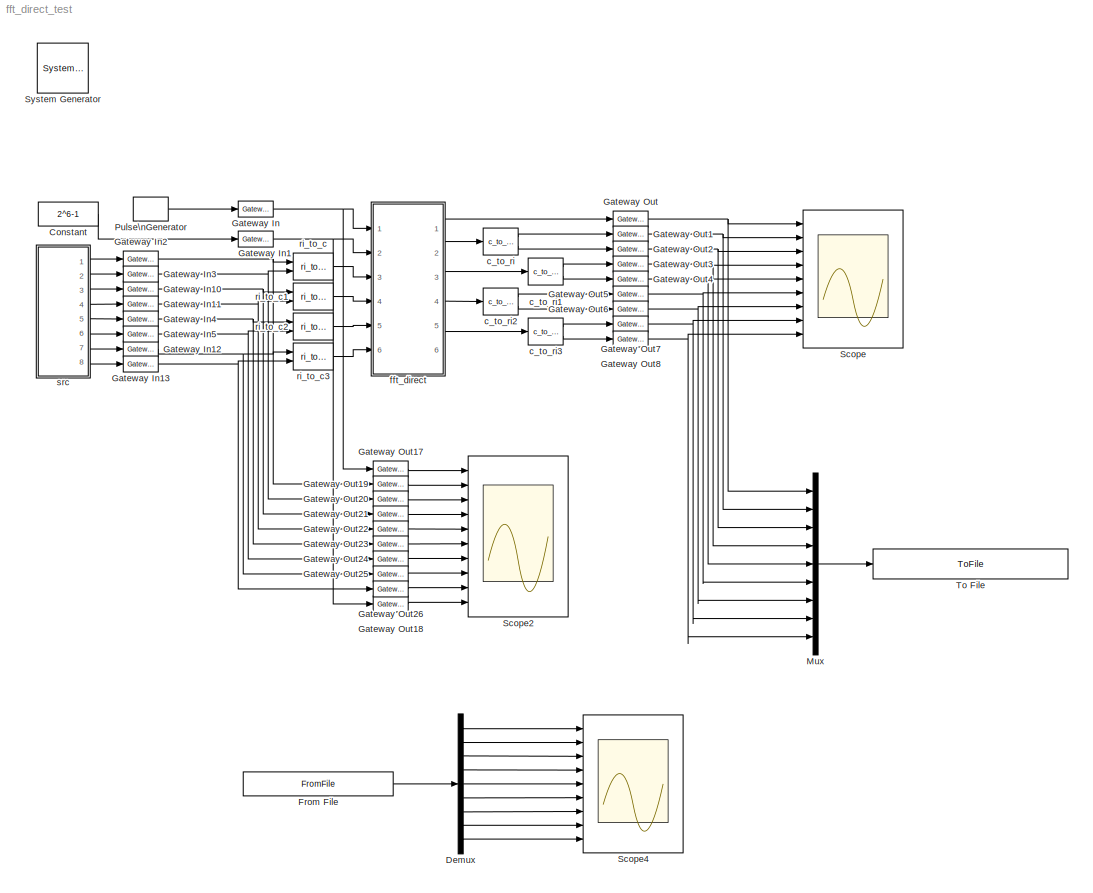
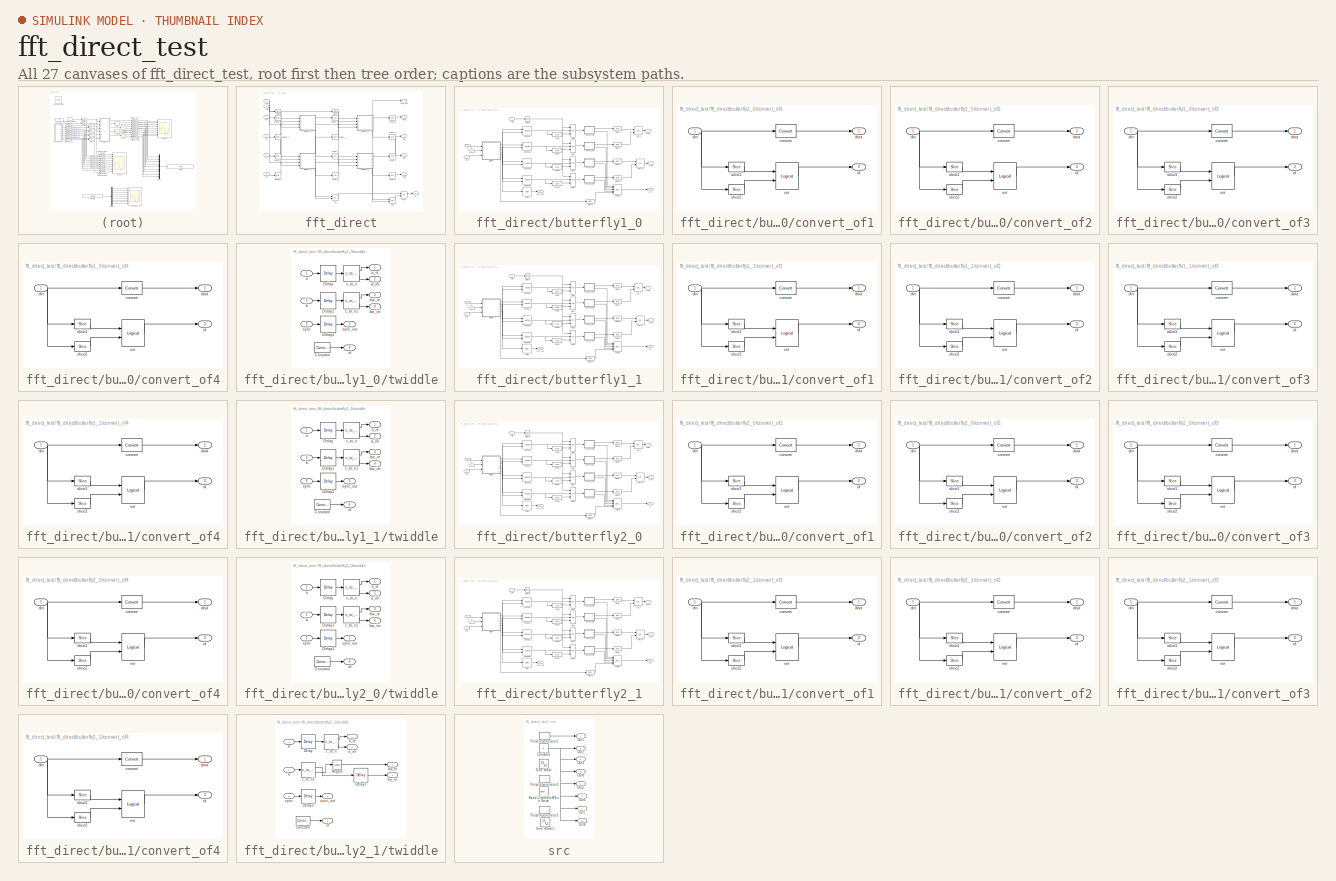
[diagram: thumbnail index - all 27 canvases of the model, root first then tree order]
MODEL fft_direct_test
KIND model
BLOCK [Reference]  System Generator  REF=xbsIndex_r4/ System Generator
  AttributesFormatString = System\\nGenerator
  FunctionWithSeparateData = off
  Ports = []
  RTWMemSecDataConstants = Inherit from model
  RTWMemSecDataInternal = Inherit from model
  RTWMemSecDataParameters = Inherit from model
  RTWMemSecFuncExecute = Inherit from model
  RTWMemSecFuncInitTerm = Inherit from model
  ShowPortLabels = FromPortIcon
  SourceBlock = xbsIndex_r4/ System Generator
  SourceType = Xilinx System Generator Block
  SystemSampleTime = -1
  Tag = genX
  UserData = DataTag0
  UserDataPersistent = on
  block_type = sysgen
  block_version = 10.1.1
  clock_wrapper = Clock Enables
  core_generation = According to Block Masks
  dbl_ovrd = According to Block Masks
  dcm_input_clock_period = 100
  deprecated_control = off
  directory = ./netlist
  eval_field = 0
  has_advanced_control = 0
  incr_netlist = off
  infoedit = System Generator
  package = ff668
  part = xc4vsx35
  run_coregen = off
  sg_icon_stat = 51,50,-1,-1,red,beige,0,07734,right
  sg_mask_display = fprintf('','COMMENT: begin icon graphics');\npatch([0 51 51 0 ],[0 0 50 50 ],[0.93 0.92 0.86]);\npatch([12 4 16 4 12 25 29 33 47 36 25 17 29 17 25 36 47 33 29 25 12 ],[5 13 25 37 45 45 41 45 45 34 45 37 25 13 5 16 5 5 9 5 5 ],[0.6 0.2 0.25]);\nplot([0 51 51 0 0 ],[0 0 50 50 0 ]);\nfprintf('','COMMENT: end icon graphics');\nfprintf('','COMMENT: begin icon text');\nfprintf('','COMMENT: end icon text...<+5ch>
  sggui_pos = -1,-1,-1,-1
  simulink_period = 1
  speed = -10
  synthesis_tool = XST
  sysclk_period = 100
  testbench = off
  trim_vbits = Everywhere in SubSystem
  xilinxfamily = Virtex4
BLOCK [Constant] Constant
  OutDataType = sfix(16)
  OutScaling = 2^0
  Value = 2^6-1
BLOCK [Demux] Demux
  DisplayOption = bar
  Outputs = 9
  Ports = [1, 9]
BLOCK [FromFile] From File
  FileName = fft_direct_test_reference.mat
  SampleTime = 1
BLOCK [Reference] Gateway In  REF=xbsIndex_r4/Gateway In
  LOCs = {}
  Ports = [1, 1]
  SourceBlock = xbsIndex_r4/Gateway In
  SourceType = Xilinx Gateway In Block
  arith_type = Boolean
  bin_pt = 14
  block_type = gatewayin
  block_version = 10.1.1
  dbl_ovrd = off
  has_advanced_control = 0
  infoedit = Gateway in block.  Converts inputs of type Simulink integer, double and fixed point to  Xilinx fixed point type.<P><P>Hardware notes:  In hardware these blocks become top level input ports.  <repeated x10 — deduplicated; at blocks: Gateway In, Gateway In1, Gateway In10, Gateway In11, Gateway In12, Gateway In13, Gateway In2, Gateway In3, Gateway In4, Gateway In5>
  locs_specified = off
  n_bits = 16
  overflow = Saturate
  period = 1
  quantization = Round  (unbiased: +/- Inf)
  sg_icon_stat = 35,16,1,1,white,yellow,0,bc55d28f,right
  sg_mask_display = fprintf('','COMMENT: begin icon graphics');\npatch([0 65 65 0 ],[0 0 20 20 ],[0.95 0.93 0.65]);\npatch([27 24 29 24 27 32 33 34 40 36 32 29 34 29 32 36 40 34 33 32 27 ],[2 5 10 15 18 18 17 18 18 14 18 15 10 5 2 6 2 2 3 2 2 ],[0.98 0.96 0.92]);\nplot([0 65 65 0 0 ],[0 0 20 20 0 ]);\nfprintf('','COMMENT: end icon graphics');\nfprintf('','COMMENT: begin icon text');\ncolor('black');port_label('input'...<+131ch>  <repeated x10 — deduplicated; at blocks: Gateway In, Gateway In1, Gateway In10, Gateway In11, Gateway In12, Gateway In13, Gateway In2, Gateway In3, Gateway In4, Gateway In5>
  sggui_pos = 2285,38,407,458
  timing_constraint = None
  xl_area = [0,0,0,0,0,0,0]
  xl_use_area = off
BLOCK [Reference] Gateway In1  REF=xbsIndex_r4/Gateway In
  LOCs = {}
  Ports = [1, 1]
  SourceBlock = xbsIndex_r4/Gateway In
  SourceType = Xilinx Gateway In Block
  arith_type = Unsigned
  bin_pt = 0
  block_type = gatewayin
  block_version = 10.1.1
  dbl_ovrd = off
  has_advanced_control = 0
  locs_specified = off
  n_bits = 6
  overflow = Wrap
  period = 1
  quantization = Truncate
  sg_icon_stat = 35,16,1,1,white,yellow,0,bc55d28f,right
  sggui_pos = 2042,71,407,458
  timing_constraint = None
  xl_area = [0,0,0,0,0,0,0]
  xl_use_area = off
BLOCK [Reference] Gateway In10  REF=xbsIndex_r4/Gateway In
  LOCs = {}
  Ports = [1, 1]
  SourceBlock = xbsIndex_r4/Gateway In
  SourceType = Xilinx Gateway In Block
  arith_type = Signed  (2's comp)
  bin_pt = 7
  block_type = gatewayin
  block_version = 10.1.1
  dbl_ovrd = off
  has_advanced_control = 0
  locs_specified = off
  n_bits = 8
  overflow = Wrap
  period = 1
  quantization = Truncate
  sg_icon_stat = 35,16,1,1,white,yellow,0,bc55d28f,right
  sggui_pos = 1335,122,407,458
  timing_constraint = None
  xl_area = [0,0,0,0,0,0,0]
  xl_use_area = off
BLOCK [Reference] Gateway In11  REF=xbsIndex_r4/Gateway In
  LOCs = {}
  Ports = [1, 1]
  SourceBlock = xbsIndex_r4/Gateway In
  SourceType = Xilinx Gateway In Block
  arith_type = Signed  (2's comp)
  bin_pt = 7
  block_type = gatewayin
  block_version = 10.1.1
  dbl_ovrd = off
  has_advanced_control = 0
  locs_specified = off
  n_bits = 8
  overflow = Wrap
  period = 1
  quantization = Truncate
  sg_icon_stat = 35,16,1,1,white,yellow,0,bc55d28f,right
  sggui_pos = 1335,122,407,458
  timing_constraint = None
  xl_area = [0,0,0,0,0,0,0]
  xl_use_area = off
BLOCK [Reference] Gateway In12  REF=xbsIndex_r4/Gateway In
  LOCs = {}
  Ports = [1, 1]
  SourceBlock = xbsIndex_r4/Gateway In
  SourceType = Xilinx Gateway In Block
  arith_type = Signed  (2's comp)
  bin_pt = 7
  block_type = gatewayin
  block_version = 10.1.1
  dbl_ovrd = off
  has_advanced_control = 0
  locs_specified = off
  n_bits = 8
  overflow = Wrap
  period = 1
  quantization = Truncate
  sg_icon_stat = 35,16,1,1,white,yellow,0,bc55d28f,right
  sggui_pos = 1335,122,407,458
  timing_constraint = None
  xl_area = [0,0,0,0,0,0,0]
  xl_use_area = off
BLOCK [Reference] Gateway In13  REF=xbsIndex_r4/Gateway In
  LOCs = {}
  Ports = [1, 1]
  SourceBlock = xbsIndex_r4/Gateway In
  SourceType = Xilinx Gateway In Block
  arith_type = Signed  (2's comp)
  bin_pt = 7
  block_type = gatewayin
  block_version = 10.1.1
  dbl_ovrd = off
  has_advanced_control = 0
  locs_specified = off
  n_bits = 8
  overflow = Wrap
  period = 1
  quantization = Truncate
  sg_icon_stat = 35,16,1,1,white,yellow,0,bc55d28f,right
  sggui_pos = 1335,122,407,458
  timing_constraint = None
  xl_area = [0,0,0,0,0,0,0]
  xl_use_area = off
BLOCK [Reference] Gateway In2  REF=xbsIndex_r4/Gateway In
  LOCs = {}
  Ports = [1, 1]
  SourceBlock = xbsIndex_r4/Gateway In
  SourceType = Xilinx Gateway In Block
  arith_type = Signed  (2's comp)
  bin_pt = 7
  block_type = gatewayin
  block_version = 10.1.1
  dbl_ovrd = off
  has_advanced_control = 0
  locs_specified = off
  n_bits = 8
  overflow = Wrap
  period = 1
  quantization = Truncate
  sg_icon_stat = 35,16,1,1,white,yellow,0,bc55d28f,right
  sggui_pos = 1335,122,407,458
  timing_constraint = None
  xl_area = [0,0,0,0,0,0,0]
  xl_use_area = off
BLOCK [Reference] Gateway In3  REF=xbsIndex_r4/Gateway In
  LOCs = {}
  Ports = [1, 1]
  SourceBlock = xbsIndex_r4/Gateway In
  SourceType = Xilinx Gateway In Block
  arith_type = Signed  (2's comp)
  bin_pt = 7
  block_type = gatewayin
  block_version = 10.1.1
  dbl_ovrd = off
  has_advanced_control = 0
  locs_specified = off
  n_bits = 8
  overflow = Wrap
  period = 1
  quantization = Truncate
  sg_icon_stat = 35,16,1,1,white,yellow,0,bc55d28f,right
  sggui_pos = 1335,122,407,458
  timing_constraint = None
  xl_area = [0,0,0,0,0,0,0]
  xl_use_area = off
BLOCK [Reference] Gateway In4  REF=xbsIndex_r4/Gateway In
  LOCs = {}
  Ports = [1, 1]
  SourceBlock = xbsIndex_r4/Gateway In
  SourceType = Xilinx Gateway In Block
  arith_type = Signed  (2's comp)
  bin_pt = 7
  block_type = gatewayin
  block_version = 10.1.1
  dbl_ovrd = off
  has_advanced_control = 0
  locs_specified = off
  n_bits = 8
  overflow = Wrap
  period = 1
  quantization = Truncate
  sg_icon_stat = 35,16,1,1,white,yellow,0,bc55d28f,right
  sggui_pos = 1335,122,407,458
  timing_constraint = None
  xl_area = [0,0,0,0,0,0,0]
  xl_use_area = off
BLOCK [Reference] Gateway In5  REF=xbsIndex_r4/Gateway In
  LOCs = {}
  Ports = [1, 1]
  SourceBlock = xbsIndex_r4/Gateway In
  SourceType = Xilinx Gateway In Block
  arith_type = Signed  (2's comp)
  bin_pt = 7
  block_type = gatewayin
  block_version = 10.1.1
  dbl_ovrd = off
  has_advanced_control = 0
  locs_specified = off
  n_bits = 8
  overflow = Wrap
  period = 1
  quantization = Truncate
  sg_icon_stat = 35,16,1,1,white,yellow,0,bc55d28f,right
  sggui_pos = 1335,122,407,458
  timing_constraint = None
  xl_area = [0,0,0,0,0,0,0]
  xl_use_area = off
BLOCK [Reference] Gateway Out  REF=xbsIndex_r4/Gateway Out
  LOCs = {}
  Ports = [1, 1]
  SourceBlock = xbsIndex_r4/Gateway Out
  SourceType = Xilinx Gateway Out Block
  block_type = gatewayout
  block_version = 10.1.1
  has_advanced_control = 0
  hdl_port = on
  infoedit = Gateway out block.  Converts Xilinx fixed point inputs into ouputs of type Simulink integer, double, or fixed point.<P><P>Hardware notes:  In hardware these blocks become top level output ports or are discarded, depending on how they are configured.  <repeated x19 — deduplicated; at blocks: Gateway Out, Gateway Out1, Gateway Out17, Gateway Out18, Gateway Out19, Gateway Out2, Gateway Out20, Gateway Out21, Gateway Out22, Gateway Out23, Gateway Out24, Gateway Out25, Gateway Out26, Gateway Out3, Gateway Out4, Gateway Out5, +3 more>
  locs_specified = off
  sg_icon_stat = 35,16,1,1,white,yellow,0,38220381,right
  sg_mask_display = fprintf('','COMMENT: begin icon graphics');\npatch([0 35 35 0 ],[0 0 16 16 ],[0.95 0.93 0.65]);\npatch([14 11 15 11 14 18 19 20 25 21 18 16 20 16 18 21 25 20 19 18 14 ],[2 5 9 13 16 16 15 16 16 12 15 13 9 5 3 6 2 2 3 2 2 ],[0.98 0.96 0.92]);\nplot([0 35 35 0 0 ],[0 0 16 16 0 ]);\nfprintf('','COMMENT: end icon graphics');\nfprintf('','COMMENT: begin icon text');\ncolor('black');port_label('input',1...<+130ch>  <repeated x19 — deduplicated; at blocks: Gateway Out, Gateway Out1, Gateway Out17, Gateway Out18, Gateway Out19, Gateway Out2, Gateway Out20, Gateway Out21, Gateway Out22, Gateway Out23, Gateway Out24, Gateway Out25, Gateway Out26, Gateway Out3, Gateway Out4, Gateway Out5, +3 more>
  sggui_pos = -1,-1,-1,-1
  timing_constraint = None
  xl_area = [0,0,0,0,0,0,0]
  xl_use_area = off
BLOCK [Reference] Gateway Out1  REF=xbsIndex_r4/Gateway Out
  LOCs = {}
  Ports = [1, 1]
  SourceBlock = xbsIndex_r4/Gateway Out
  SourceType = Xilinx Gateway Out Block
  block_type = gatewayout
  block_version = 10.1.1
  has_advanced_control = 0
  hdl_port = on
  locs_specified = off
  sg_icon_stat = 35,16,1,1,white,yellow,0,38220381,right
  sggui_pos = -1,-1,-1,-1
  timing_constraint = None
  xl_area = [0,0,0,0,0,0,0]
  xl_use_area = off
BLOCK [Reference] Gateway Out17  REF=xbsIndex_r4/Gateway Out
  LOCs = {}
  Ports = [1, 1]
  SourceBlock = xbsIndex_r4/Gateway Out
  SourceType = Xilinx Gateway Out Block
  block_type = gatewayout
  block_version = 10.1.1
  has_advanced_control = 0
  hdl_port = on
  locs_specified = off
  sg_icon_stat = 35,16,1,1,white,yellow,0,38220381,right
  sggui_pos = -1,-1,-1,-1
  timing_constraint = None
  xl_area = [0,0,0,0,0,0,0]
  xl_use_area = off
BLOCK [Reference] Gateway Out18  REF=xbsIndex_r4/Gateway Out
  LOCs = {}
  Ports = [1, 1]
  SourceBlock = xbsIndex_r4/Gateway Out
  SourceType = Xilinx Gateway Out Block
  block_type = gatewayout
  block_version = 10.1.1
  has_advanced_control = 0
  hdl_port = on
  locs_specified = off
  sg_icon_stat = 35,16,1,1,white,yellow,0,38220381,right
  sggui_pos = -1,-1,-1,-1
  timing_constraint = None
  xl_area = [0,0,0,0,0,0,0]
  xl_use_area = off
BLOCK [Reference] Gateway Out19  REF=xbsIndex_r4/Gateway Out
  LOCs = {}
  Ports = [1, 1]
  SourceBlock = xbsIndex_r4/Gateway Out
  SourceType = Xilinx Gateway Out Block
  block_type = gatewayout
  block_version = 10.1.1
  has_advanced_control = 0
  hdl_port = on
  locs_specified = off
  sg_icon_stat = 35,16,1,1,white,yellow,0,38220381,right
  sggui_pos = -1,-1,-1,-1
  timing_constraint = None
  xl_area = [0,0,0,0,0,0,0]
  xl_use_area = off
BLOCK [Reference] Gateway Out2  REF=xbsIndex_r4/Gateway Out
  LOCs = {}
  Ports = [1, 1]
  SourceBlock = xbsIndex_r4/Gateway Out
  SourceType = Xilinx Gateway Out Block
  block_type = gatewayout
  block_version = 10.1.1
  has_advanced_control = 0
  hdl_port = on
  locs_specified = off
  sg_icon_stat = 35,16,1,1,white,yellow,0,38220381,right
  sggui_pos = -1,-1,-1,-1
  timing_constraint = None
  xl_area = [0,0,0,0,0,0,0]
  xl_use_area = off
BLOCK [Reference] Gateway Out20  REF=xbsIndex_r4/Gateway Out
  LOCs = {}
  Ports = [1, 1]
  SourceBlock = xbsIndex_r4/Gateway Out
  SourceType = Xilinx Gateway Out Block
  block_type = gatewayout
  block_version = 10.1.1
  has_advanced_control = 0
  hdl_port = on
  locs_specified = off
  sg_icon_stat = 35,16,1,1,white,yellow,0,38220381,right
  sggui_pos = -1,-1,-1,-1
  timing_constraint = None
  xl_area = [0,0,0,0,0,0,0]
  xl_use_area = off
BLOCK [Reference] Gateway Out21  REF=xbsIndex_r4/Gateway Out
  LOCs = {}
  Ports = [1, 1]
  SourceBlock = xbsIndex_r4/Gateway Out
  SourceType = Xilinx Gateway Out Block
  block_type = gatewayout
  block_version = 10.1.1
  has_advanced_control = 0
  hdl_port = on
  locs_specified = off
  sg_icon_stat = 35,16,1,1,white,yellow,0,38220381,right
  sggui_pos = -1,-1,-1,-1
  timing_constraint = None
  xl_area = [0,0,0,0,0,0,0]
  xl_use_area = off
BLOCK [Reference] Gateway Out22  REF=xbsIndex_r4/Gateway Out
  LOCs = {}
  Ports = [1, 1]
  SourceBlock = xbsIndex_r4/Gateway Out
  SourceType = Xilinx Gateway Out Block
  block_type = gatewayout
  block_version = 10.1.1
  has_advanced_control = 0
  hdl_port = on
  locs_specified = off
  sg_icon_stat = 35,16,1,1,white,yellow,0,38220381,right
  sggui_pos = -1,-1,-1,-1
  timing_constraint = None
  xl_area = [0,0,0,0,0,0,0]
  xl_use_area = off
BLOCK [Reference] Gateway Out23  REF=xbsIndex_r4/Gateway Out
  LOCs = {}
  Ports = [1, 1]
  SourceBlock = xbsIndex_r4/Gateway Out
  SourceType = Xilinx Gateway Out Block
  block_type = gatewayout
  block_version = 10.1.1
  has_advanced_control = 0
  hdl_port = on
  locs_specified = off
  sg_icon_stat = 35,16,1,1,white,yellow,0,38220381,right
  sggui_pos = -1,-1,-1,-1
  timing_constraint = None
  xl_area = [0,0,0,0,0,0,0]
  xl_use_area = off
BLOCK [Reference] Gateway Out24  REF=xbsIndex_r4/Gateway Out
  LOCs = {}
  Ports = [1, 1]
  SourceBlock = xbsIndex_r4/Gateway Out
  SourceType = Xilinx Gateway Out Block
  block_type = gatewayout
  block_version = 10.1.1
  has_advanced_control = 0
  hdl_port = on
  locs_specified = off
  sg_icon_stat = 35,16,1,1,white,yellow,0,38220381,right
  sggui_pos = -1,-1,-1,-1
  timing_constraint = None
  xl_area = [0,0,0,0,0,0,0]
  xl_use_area = off
BLOCK [Reference] Gateway Out25  REF=xbsIndex_r4/Gateway Out
  LOCs = {}
  Ports = [1, 1]
  SourceBlock = xbsIndex_r4/Gateway Out
  SourceType = Xilinx Gateway Out Block
  block_type = gatewayout
  block_version = 10.1.1
  has_advanced_control = 0
  hdl_port = on
  locs_specified = off
  sg_icon_stat = 35,16,1,1,white,yellow,0,38220381,right
  sggui_pos = -1,-1,-1,-1
  timing_constraint = None
  xl_area = [0,0,0,0,0,0,0]
  xl_use_area = off
BLOCK [Reference] Gateway Out26  REF=xbsIndex_r4/Gateway Out
  LOCs = {}
  Ports = [1, 1]
  SourceBlock = xbsIndex_r4/Gateway Out
  SourceType = Xilinx Gateway Out Block
  block_type = gatewayout
  block_version = 10.1.1
  has_advanced_control = 0
  hdl_port = on
  locs_specified = off
  sg_icon_stat = 35,16,1,1,white,yellow,0,38220381,right
  sggui_pos = -1,-1,-1,-1
  timing_constraint = None
  xl_area = [0,0,0,0,0,0,0]
  xl_use_area = off
BLOCK [Reference] Gateway Out3  REF=xbsIndex_r4/Gateway Out
  LOCs = {}
  Ports = [1, 1]
  SourceBlock = xbsIndex_r4/Gateway Out
  SourceType = Xilinx Gateway Out Block
  block_type = gatewayout
  block_version = 10.1.1
  has_advanced_control = 0
  hdl_port = on
  locs_specified = off
  sg_icon_stat = 35,16,1,1,white,yellow,0,38220381,right
  sggui_pos = -1,-1,-1,-1
  timing_constraint = None
  xl_area = [0,0,0,0,0,0,0]
  xl_use_area = off
BLOCK [Reference] Gateway Out4  REF=xbsIndex_r4/Gateway Out
  LOCs = {}
  Ports = [1, 1]
  SourceBlock = xbsIndex_r4/Gateway Out
  SourceType = Xilinx Gateway Out Block
  block_type = gatewayout
  block_version = 10.1.1
  has_advanced_control = 0
  hdl_port = on
  locs_specified = off
  sg_icon_stat = 35,16,1,1,white,yellow,0,38220381,right
  sggui_pos = -1,-1,-1,-1
  timing_constraint = None
  xl_area = [0,0,0,0,0,0,0]
  xl_use_area = off
BLOCK [Reference] Gateway Out5  REF=xbsIndex_r4/Gateway Out
  LOCs = {}
  Ports = [1, 1]
  SourceBlock = xbsIndex_r4/Gateway Out
  SourceType = Xilinx Gateway Out Block
  block_type = gatewayout
  block_version = 10.1.1
  has_advanced_control = 0
  hdl_port = on
  locs_specified = off
  sg_icon_stat = 35,16,1,1,white,yellow,0,38220381,right
  sggui_pos = -1,-1,-1,-1
  timing_constraint = None
  xl_area = [0,0,0,0,0,0,0]
  xl_use_area = off
BLOCK [Reference] Gateway Out6  REF=xbsIndex_r4/Gateway Out
  LOCs = {}
  Ports = [1, 1]
  SourceBlock = xbsIndex_r4/Gateway Out
  SourceType = Xilinx Gateway Out Block
  block_type = gatewayout
  block_version = 10.1.1
  has_advanced_control = 0
  hdl_port = on
  locs_specified = off
  sg_icon_stat = 35,16,1,1,white,yellow,0,38220381,right
  sggui_pos = -1,-1,-1,-1
  timing_constraint = None
  xl_area = [0,0,0,0,0,0,0]
  xl_use_area = off
BLOCK [Reference] Gateway Out7  REF=xbsIndex_r4/Gateway Out
  LOCs = {}
  Ports = [1, 1]
  SourceBlock = xbsIndex_r4/Gateway Out
  SourceType = Xilinx Gateway Out Block
  block_type = gatewayout
  block_version = 10.1.1
  has_advanced_control = 0
  hdl_port = on
  locs_specified = off
  sg_icon_stat = 35,16,1,1,white,yellow,0,38220381,right
  sggui_pos = -1,-1,-1,-1
  timing_constraint = None
  xl_area = [0,0,0,0,0,0,0]
  xl_use_area = off
BLOCK [Reference] Gateway Out8  REF=xbsIndex_r4/Gateway Out
  LOCs = {}
  Ports = [1, 1]
  SourceBlock = xbsIndex_r4/Gateway Out
  SourceType = Xilinx Gateway Out Block
  block_type = gatewayout
  block_version = 10.1.1
  has_advanced_control = 0
  hdl_port = on
  locs_specified = off
  sg_icon_stat = 35,16,1,1,white,yellow,0,38220381,right
  sggui_pos = -1,-1,-1,-1
  timing_constraint = None
  xl_area = [0,0,0,0,0,0,0]
  xl_use_area = off
BLOCK [Mux] Mux
  DisplayOption = bar
  Inputs = 9
  Ports = [9, 1]
BLOCK [DiscretePulseGenerator] Pulse\nGenerator
  Period = 2^5
  PhaseDelay = 13
  Ports = [0, 1]
BLOCK [Scope] Scope
  DataFormat = StructureWithTime
  Floating = off
  NumInputPorts = 9
  Ports = [9]
  SampleTime = 0
  YMax = 5~5~5~5~5~5~5~5~5
  YMin = -5~-5~-5~-5~-5~-5~-5~-5~-5
BLOCK [Scope] Scope2
  DataFormat = StructureWithTime
  Floating = off
  NumInputPorts = 10
  Ports = [10]
  SampleTime = 0
  SaveName = ScopeData2
  YMax = 2~1~1~1~1~1~1~1~1~5
  YMin = -1~-1~-1~-1~-1~-1~-1~-1~-1~-5
BLOCK [Scope] Scope4
  DataFormat = StructureWithTime
  Floating = off
  NumInputPorts = 9
  Ports = [9]
  SampleTime = 0
  SaveName = ScopeData4
  YMax = 5~5~5~5~5~5~5~5~5
  YMin = -5~-5~-5~-5~-5~-5~-5~-5~-5
BLOCK [ToFile] To File
  Filename = fft_direct_test_output.mat
  MatrixName = output
BLOCK [Reference] c_to_ri  REF=casper_library/Misc/c_to_ri  (lib defined in mdl_138b2fc3435f, mdl_4ed325b712b3, +2 more)
  AttributesFormatString = 16_15 r/i
  FunctionWithSeparateData = off
  Ports = [1, 2]
  RTWMemSecDataConstants = Inherit from model
  RTWMemSecDataInternal = Inherit from model
  RTWMemSecDataParameters = Inherit from model
  RTWMemSecFuncExecute = Inherit from model
  RTWMemSecFuncInitTerm = Inherit from model
  ShowPortLabels = FromPortIcon
  SourceBlock = casper_library/Misc/c_to_ri
  SourceType = c_to_ri
  SystemSampleTime = -1
  UserData = DataTag1
  UserDataPersistent = on
  bin_pt = 15
  n_bits = 16
BLOCK [Reference] c_to_ri1  REF=casper_library/Misc/c_to_ri  (lib defined in mdl_138b2fc3435f, mdl_4ed325b712b3, +2 more)
  AttributesFormatString = 16_15 r/i
  FunctionWithSeparateData = off
  Ports = [1, 2]
  RTWMemSecDataConstants = Inherit from model
  RTWMemSecDataInternal = Inherit from model
  RTWMemSecDataParameters = Inherit from model
  RTWMemSecFuncExecute = Inherit from model
  RTWMemSecFuncInitTerm = Inherit from model
  ShowPortLabels = FromPortIcon
  SourceBlock = casper_library/Misc/c_to_ri
  SourceType = c_to_ri
  SystemSampleTime = -1
  UserData = DataTag2
  UserDataPersistent = on
  bin_pt = 15
  n_bits = 16
BLOCK [Reference] c_to_ri2  REF=casper_library/Misc/c_to_ri  (lib defined in mdl_138b2fc3435f, mdl_4ed325b712b3, +2 more)
  AttributesFormatString = 16_15 r/i
  FunctionWithSeparateData = off
  Ports = [1, 2]
  RTWMemSecDataConstants = Inherit from model
  RTWMemSecDataInternal = Inherit from model
  RTWMemSecDataParameters = Inherit from model
  RTWMemSecFuncExecute = Inherit from model
  RTWMemSecFuncInitTerm = Inherit from model
  ShowPortLabels = FromPortIcon
  SourceBlock = casper_library/Misc/c_to_ri
  SourceType = c_to_ri
  SystemSampleTime = -1
  UserData = DataTag3
  UserDataPersistent = on
  bin_pt = 15
  n_bits = 16
BLOCK [Reference] c_to_ri3  REF=casper_library/Misc/c_to_ri  (lib defined in mdl_138b2fc3435f, mdl_4ed325b712b3, +2 more)
  AttributesFormatString = 16_15 r/i
  FunctionWithSeparateData = off
  Ports = [1, 2]
  RTWMemSecDataConstants = Inherit from model
  RTWMemSecDataInternal = Inherit from model
  RTWMemSecDataParameters = Inherit from model
  RTWMemSecFuncExecute = Inherit from model
  RTWMemSecFuncInitTerm = Inherit from model
  ShowPortLabels = FromPortIcon
  SourceBlock = casper_library/Misc/c_to_ri
  SourceType = c_to_ri
  SystemSampleTime = -1
  UserData = DataTag4
  UserDataPersistent = on
  bin_pt = 15
  n_bits = 16
BLOCK [SubSystem] fft_direct
  AncestorBlock = casper_library/FFTs/fft_direct
  AttributesFormatString = FFTSize=2
  FunctionWithSeparateData = off
  MaskCallbackString = fft_size = eval(get_param(gcb, 'FFTSize'));\nold_vec = eval(get_param(gcb, 'mult_spec'));\n\nvec = 2.*ones(1,fft_size);\nold_size = length(old_vec);\n\nif(old_size <= fft_size), \n    size = old_size;\nelse, \n    size = fft_size;\nend\n\nfor n = 1:size, vec(n) = old_vec(n); end\nset_param(gcb, 'mult_spec', mat2str(vec));||||||||map_tail = get_param(gcb,'map_tail');\nvisibs = get_param(gcb, 'MaskV...<+751ch>
  MaskDescription = Implements an N-point FFT with the classic \nbutterfly structure with N inputs and N outputs
  MaskEnableString = on,on,on,on,on,on,on,on,on,on,on,on,on,on,on,on
  MaskIconFrame = on
  MaskIconOpaque = on
  MaskIconRotate = none
  MaskIconUnits = autoscale
  MaskInitialization = fft_direct_init(gcb,...\n    'FFTSize', FFTSize, ...\n    'input_bit_width', input_bit_width, ...\n    'coeff_bit_width', coeff_bit_width, ...\n    'add_latency', add_latency, ...\n    'mult_latency', mult_latency, ...\n    'bram_latency', bram_latency, ...\n    'quantization', quantization, ...\n    'overflow', overflow, ...\n    'map_tail', map_tail, ...\n    'LargerFFTSize', LargerFFTSize, ...\...<+208ch>
  MaskPromptString = Size of FFT: (2^?)|Input/Output Bit Width|Coefficient Bit Width|Add Latency|Mult Latency|BRAM Latency|Quantization Behavior|Overflow Behavior|Map Tail of Larger FFT|Size of Larger FFT (2^?):|Start Stage of Map Tail:|Architecture|Optimisation Target|Number bits above which to store stage's coefficients in BRAM (2^? bits)|Specify multiplier use (behavioural HDL if not specified)|Multiplier specifica...<+61ch>
  MaskSelfModifiable = on
  MaskStyleString = edit,edit,edit,edit,edit,edit,popup(Truncate|Round  (unbiased: +/- Inf)|Round  (unbiased: Even Values)),popup(Wrap|Saturate|Error),checkbox,edit,edit,popup(Virtex2Pro|Virtex5),popup(Logic|Multipliers),edit,checkbox,edit
  MaskTabNameString = ,,,,,,,,,,,,,,,
  MaskToolTipString = on,on,on,on,on,on,on,on,on,on,on,on,on,on,on,on
  MaskTunableValueString = on,on,on,on,on,on,on,on,on,on,on,on,on,on,on,on
  MaskType = fft_direct
  MaskValueString = 2|12|12|1|2|1|Truncate|Saturate|off|5|3|Virtex2Pro|Multipliers|8|off|[2 2]
  MaskVarAliasString = ,,,,,,,,,,,,,,,
  MaskVariables = FFTSize=@1;input_bit_width=@2;coeff_bit_width=@3;add_latency=@4;mult_latency=@5;bram_latency=@6;quantization=&7;overflow=&8;map_tail=&9;LargerFFTSize=@10;StartStage=@11;arch=&12;opt_target=&13;coeffs_bit_limit=@14;specify_mult=&15;mult_spec=@16;
  MaskVisibilityString = on,on,on,on,on,on,on,on,on,off,off,on,on,on,on,off
  MinAlgLoopOccurrences = off
  Ports = [6, 6]
  RTWSystemCode = Auto
  UserData = DataTag5
  UserDataPersistent = on
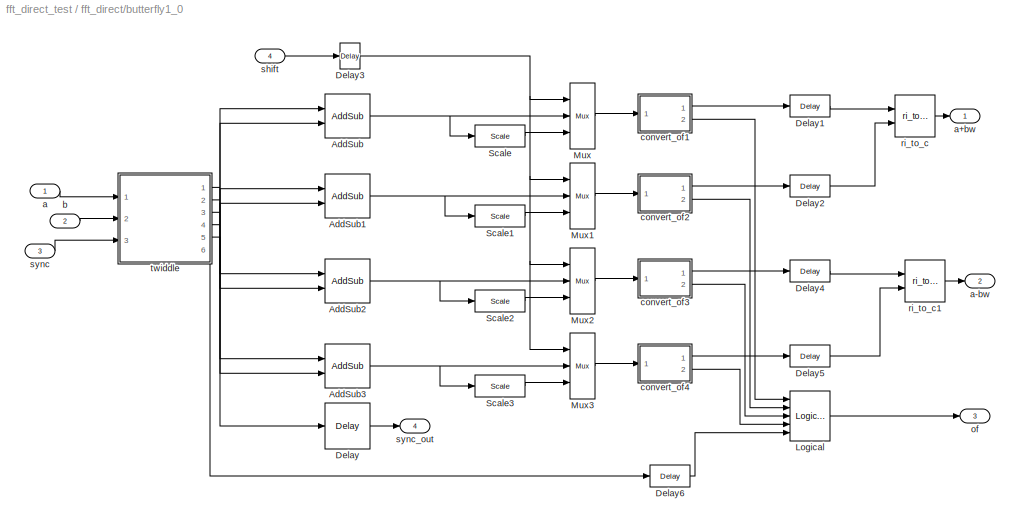
BLOCK [SubSystem] fft_direct/butterfly1_0
  AncestorBlock = casper_library/FFTs/butterfly_direct
  AttributesFormatString = FFTSize=2, Coeffs=[0],\n coeff_bit_width=12
  FunctionWithSeparateData = off
  MaskCallbackString = ||coeffs = eval(get_param(gcb,'Coeffs'));\nvisibs = get_param(gcb,'MaskVisibilities');\nif length(coeffs) == 1,\n    visibs{5} = 'off'; visibs{6} = 'off';\n    visibs{7} = 'off'; visibs{8} = 'off';\nelse\n    visibs{8} = 'on'; visibs{5} = 'on';\n    visibs{6} = 'on'; visibs{7} = 'on';\nend    \nset_param(gcb, 'MaskVisibilities', visibs);||||||||||||use_hdl = get_param(gcb,'use_hdl');\nvisibs = get...<+213ch>  <repeated x4 — deduplicated; at blocks: butterfly1_0, butterfly1_1, butterfly2_0, butterfly2_1>
  MaskEnableString = on,on,on,on,on,on,on,on,on,on,on,on,on,on,on,on
  MaskIconFrame = on
  MaskIconOpaque = on
  MaskIconRotate = none
  MaskIconUnits = autoscale
  MaskInitialization = butterfly_direct_init(gcb,...\n              'biplex', biplex,...\n              'FFTSize', FFTSize,...\n              'Coeffs', Coeffs,...\n              'coeff_bit_width', coeff_bit_width,...\n              'StepPeriod', StepPeriod,...\n              'bram_latency', bram_latency,...\n              'coeffs_bram', coeffs_bram,...\n              'input_bit_width', input_bit_width,...\n             ...<+327ch>  <repeated x4 — deduplicated; at blocks: butterfly1_0, butterfly1_1, butterfly2_0, butterfly2_1>
  MaskPromptString = Used in biplex FFT|Size of FFT: (2^?)|Coefficients: (0 to 2^(FFTSize-1)-1)|Coefficient Bit Width|Coefficient Step Period: (2^?)|BRAM Latency|Implement coefficients in BRAM|Input/Output Bit Width:|Add Latency|Mult Latency|Quantization Behavior|Overflow Behavior|Architecture|Optimisation target|Use behavioural HDL for multipliers|Use embedded multipliers  <repeated x4 — deduplicated; at blocks: butterfly1_0, butterfly1_1, butterfly2_0, butterfly2_1>
  MaskSelfModifiable = on
  MaskStyleString = checkbox,edit,edit,edit,edit,edit,checkbox,edit,edit,edit,popup(Truncate|Round  (unbiased: +/- Inf)|Round  (unbiased: Even Values)),popup(Wrap|Saturate|Error),popup(Virtex2Pro|Virtex5),popup(Logic|Multipliers),checkbox,checkbox  <repeated x4 — deduplicated; at blocks: butterfly1_0, butterfly1_1, butterfly2_0, butterfly2_1>
  MaskTabNameString = ,,,,,,,,,,,,,,,
  MaskToolTipString = on,on,on,on,on,on,on,on,on,on,on,on,on,on,on,on
  MaskTunableValueString = on,on,on,on,on,on,on,on,on,on,on,on,on,on,on,on
  MaskType = butterfly_direct
  MaskValueString = off|2|0|12|0|1|off|12|1|2|Truncate|Saturate|Virtex2Pro|Multipliers|on|off
  MaskVarAliasString = ,,,,,,,,,,,,,,,
  MaskVariables = biplex=&1;FFTSize=@2;Coeffs=@3;coeff_bit_width=@4;StepPeriod=@5;bram_latency=@6;coeffs_bram=&7;input_bit_width=@8;add_latency=@9;mult_latency=@10;quantization=&11;overflow=&12;arch=&13;opt_target=&14;use_hdl=&15;use_embedded=&16;  <repeated x4 — deduplicated; at blocks: butterfly1_0, butterfly1_1, butterfly2_0, butterfly2_1>
  MaskVisibilityString = off,on,on,on,on,on,on,on,on,on,on,on,on,on,on,off
  MinAlgLoopOccurrences = off
  Ports = [4, 4]
  RTWSystemCode = Auto
  UserData = DataTag6
  UserDataPersistent = on
BLOCK [Reference] fft_direct/butterfly1_0/AddSub  REF=xbsIndex_r4/AddSub
  Ports = [2, 1]
  SourceBlock = xbsIndex_r4/AddSub
  SourceType = Xilinx Adder/Subtractor Block
  arith_type = Unsigned
  bin_pt = 2
  block_type = addsub
  block_version = 9.1.01
  dbl_ovrd = off
  en = off
  has_advanced_control = 0
  hw_selection = Fabric
  latency = add_latency
  mode = Addition
  n_bits = 8
  overflow = Wrap
  pipelined = on
  precision = Full
  quantization = Truncate
  sg_icon_stat = 45,44,2,1,white,blue,0,d7118884,right
  sg_mask_display = fprintf('','COMMENT: begin icon graphics');\npatch([0 60 60 0 ],[0 0 58 58 ],[0.77 0.82 0.91]);\npatch([15 5 19 5 15 30 34 38 54 41 29 20 34 20 29 41 54 38 34 30 15 ],[6 16 30 44 54 54 50 54 54 41 53 44 30 16 7 19 6 6 10 6 6 ],[0.98 0.96 0.92]);\nplot([0 60 60 0 0 ],[0 0 58 58 0 ]);\nfprintf('','COMMENT: end icon graphics');\nfprintf('','COMMENT: begin icon text');\ncolor('black');port_label('inpu...<+234ch>  <repeated x16 — deduplicated; at blocks: AddSub, AddSub1, AddSub2, AddSub3>
  sggui_pos = 20,20,348,342
  use_behavioral_HDL = on
  use_carryin = off
  use_carryout = off
  use_rpm = on
  xl_area = [0, 0, 0, 0, 0, 0, 0]
  xl_use_area = off
BLOCK [Reference] fft_direct/butterfly1_0/AddSub1  REF=xbsIndex_r4/AddSub
  Ports = [2, 1]
  SourceBlock = xbsIndex_r4/AddSub
  SourceType = Xilinx Adder/Subtractor Block
  arith_type = Unsigned
  bin_pt = 2
  block_type = addsub
  block_version = 9.1.01
  dbl_ovrd = off
  en = off
  has_advanced_control = 0
  hw_selection = Fabric
  latency = add_latency
  mode = Addition
  n_bits = 8
  overflow = Wrap
  pipelined = on
  precision = Full
  quantization = Truncate
  sg_icon_stat = 45,44,2,1,white,blue,0,d7118884,right
  sggui_pos = 20,20,348,342
  use_behavioral_HDL = on
  use_carryin = off
  use_carryout = off
  use_rpm = on
  xl_area = [0, 0, 0, 0, 0, 0, 0]
  xl_use_area = off
BLOCK [Reference] fft_direct/butterfly1_0/AddSub2  REF=xbsIndex_r4/AddSub
  Ports = [2, 1]
  SourceBlock = xbsIndex_r4/AddSub
  SourceType = Xilinx Adder/Subtractor Block
  arith_type = Unsigned
  bin_pt = 2
  block_type = addsub
  block_version = 9.1.01
  dbl_ovrd = off
  en = off
  has_advanced_control = 0
  hw_selection = Fabric
  latency = add_latency
  mode = Subtraction
  n_bits = 8
  overflow = Wrap
  pipelined = on
  precision = Full
  quantization = Truncate
  sg_icon_stat = 45,44,2,1,white,blue,0,f900bd06,right
  sggui_pos = 20,20,348,342
  use_behavioral_HDL = on
  use_carryin = off
  use_carryout = off
  use_rpm = on
  xl_area = [0, 0, 0, 0, 0, 0, 0]
  xl_use_area = off
BLOCK [Reference] fft_direct/butterfly1_0/AddSub3  REF=xbsIndex_r4/AddSub
  Ports = [2, 1]
  SourceBlock = xbsIndex_r4/AddSub
  SourceType = Xilinx Adder/Subtractor Block
  arith_type = Unsigned
  bin_pt = 2
  block_type = addsub
  block_version = 9.1.01
  dbl_ovrd = off
  en = off
  has_advanced_control = 0
  hw_selection = Fabric
  latency = add_latency
  mode = Subtraction
  n_bits = 8
  overflow = Wrap
  pipelined = on
  precision = Full
  quantization = Truncate
  sg_icon_stat = 45,44,2,1,white,blue,0,f900bd06,right
  sggui_pos = -1,-1,-1,-1
  use_behavioral_HDL = on
  use_carryin = off
  use_carryout = off
  use_rpm = on
  xl_area = [0, 0, 0, 0, 0, 0, 0]
  xl_use_area = off
BLOCK [Reference] fft_direct/butterfly1_0/Delay  REF=xbsIndex_r4/Delay
  Ports = [1, 1]
  SourceBlock = xbsIndex_r4/Delay
  SourceType = Xilinx Delay Block
  block_type = delay
  block_version = 9.1.01
  dbl_ovrd = off
  en = off
  has_advanced_control = 0
  infoedit = Hardware notes: A delay line is a chain, each link of which is an SRL16 followed by a flip-flop.
  latency = add_latency + 3
  reg_retiming = off
  sg_icon_stat = 45,46,1,1,white,blue,0,c2217bc4,right
  sg_mask_display = fprintf('','COMMENT: begin icon graphics');\npatch([0 60 60 0 ],[0 0 56 56 ],[0.77 0.82 0.91]);\npatch([15 6 19 6 15 30 34 38 54 41 29 20 32 20 29 41 54 38 34 30 15 ],[6 15 28 41 50 50 46 50 50 37 49 40 28 16 7 19 6 6 10 6 6 ],[0.98 0.96 0.92]);\nplot([0 60 60 0 0 ],[0 0 56 56 0 ]);\nfprintf('','COMMENT: end icon graphics');\nfprintf('','COMMENT: begin icon text');\ncolor('black');disp('z^{-4}','t...<+55ch>  <repeated x4 — deduplicated; at blocks: Delay>
  sggui_pos = 20,20,407,280
  xl_area = [0, 0, 0, 0, 0, 0, 0]
  xl_use_area = off
BLOCK [Reference] fft_direct/butterfly1_0/Delay1  REF=xbsIndex_r4/Delay
  Ports = [1, 1]
  SourceBlock = xbsIndex_r4/Delay
  SourceType = Xilinx Delay Block
  block_type = delay
  block_version = 10.1.1
  dbl_ovrd = off
  en = off
  has_advanced_control = 0
  infoedit = Hardware notes: A delay line is a chain, each link of which is an SRL16 followed by a flip-flop.
  latency = 1
  reg_retiming = off
  sg_icon_stat = 40,22,1,1,white,blue,0,fc531c0e,right
  sg_mask_display = fprintf('','COMMENT: begin icon graphics');\npatch([0 60 60 0 ],[0 0 56 56 ],[0.77 0.82 0.91]);\npatch([15 6 19 6 15 30 34 38 54 41 29 20 32 20 29 41 54 38 34 30 15 ],[6 15 28 41 50 50 46 50 50 37 49 40 28 16 7 19 6 6 10 6 6 ],[0.98 0.96 0.92]);\nplot([0 60 60 0 0 ],[0 0 56 56 0 ]);\nfprintf('','COMMENT: end icon graphics');\nfprintf('','COMMENT: begin icon text');\ncolor('black');disp('z^{-1}','t...<+55ch>  <repeated x20 — deduplicated; at blocks: Delay1, Delay2, Delay3, Delay4, Delay5>
  sggui_pos = -1,-1,-1,-1
  xl_area = [0,0,0,0,0,0,0]
  xl_use_area = off
BLOCK [Reference] fft_direct/butterfly1_0/Delay2  REF=xbsIndex_r4/Delay
  Ports = [1, 1]
  SourceBlock = xbsIndex_r4/Delay
  SourceType = Xilinx Delay Block
  block_type = delay
  block_version = 10.1.1
  dbl_ovrd = off
  en = off
  has_advanced_control = 0
  infoedit = Hardware notes: A delay line is a chain, each link of which is an SRL16 followed by a flip-flop.
  latency = 1
  reg_retiming = off
  sg_icon_stat = 40,22,1,1,white,blue,0,fc531c0e,right
  sggui_pos = -1,-1,-1,-1
  xl_area = [0,0,0,0,0,0,0]
  xl_use_area = off
BLOCK [Reference] fft_direct/butterfly1_0/Delay3  REF=xbsIndex_r4/Delay
  Ports = [1, 1]
  SourceBlock = xbsIndex_r4/Delay
  SourceType = Xilinx Delay Block
  block_type = delay
  block_version = 9.1.01
  dbl_ovrd = off
  en = off
  has_advanced_control = 0
  infoedit = Hardware notes: A delay line is a chain, each link of which is an SRL16 followed by a flip-flop.
  latency = add_latency
  reg_retiming = off
  sg_icon_stat = 20,26,1,1,white,blue,0,fc531c0e,right
  sggui_pos = 20,20,407,280
  xl_area = [0, 0, 0, 0, 0, 0, 0]
  xl_use_area = off
BLOCK [Reference] fft_direct/butterfly1_0/Delay4  REF=xbsIndex_r4/Delay
  Ports = [1, 1]
  SourceBlock = xbsIndex_r4/Delay
  SourceType = Xilinx Delay Block
  block_type = delay
  block_version = 10.1.1
  dbl_ovrd = off
  en = off
  has_advanced_control = 0
  infoedit = Hardware notes: A delay line is a chain, each link of which is an SRL16 followed by a flip-flop.
  latency = 1
  reg_retiming = off
  sg_icon_stat = 40,22,1,1,white,blue,0,fc531c0e,right
  sggui_pos = -1,-1,-1,-1
  xl_area = [0,0,0,0,0,0,0]
  xl_use_area = off
BLOCK [Reference] fft_direct/butterfly1_0/Delay5  REF=xbsIndex_r4/Delay
  Ports = [1, 1]
  SourceBlock = xbsIndex_r4/Delay
  SourceType = Xilinx Delay Block
  block_type = delay
  block_version = 10.1.1
  dbl_ovrd = off
  en = off
  has_advanced_control = 0
  infoedit = Hardware notes: A delay line is a chain, each link of which is an SRL16 followed by a flip-flop.
  latency = 1
  reg_retiming = off
  sg_icon_stat = 40,22,1,1,white,blue,0,fc531c0e,right
  sggui_pos = -1,-1,-1,-1
  xl_area = [0,0,0,0,0,0,0]
  xl_use_area = off
BLOCK [Reference] fft_direct/butterfly1_0/Delay6  REF=xbsIndex_r4/Delay
  Ports = [1, 1]
  SourceBlock = xbsIndex_r4/Delay
  SourceType = Xilinx Delay Block
  block_type = delay
  block_version = 10.1.1
  dbl_ovrd = off
  en = off
  has_advanced_control = 0
  infoedit = Hardware notes: A delay line is a chain, each link of which is an SRL16 followed by a flip-flop.
  latency = add_latency+2
  reg_retiming = off
  sg_icon_stat = 40,22,1,1,white,blue,0,eabd56db,right
  sg_mask_display = fprintf('','COMMENT: begin icon graphics');\npatch([0 60 60 0 ],[0 0 56 56 ],[0.77 0.82 0.91]);\npatch([15 6 19 6 15 30 34 38 54 41 29 20 32 20 29 41 54 38 34 30 15 ],[6 15 28 41 50 50 46 50 50 37 49 40 28 16 7 19 6 6 10 6 6 ],[0.98 0.96 0.92]);\nplot([0 60 60 0 0 ],[0 0 56 56 0 ]);\nfprintf('','COMMENT: end icon graphics');\nfprintf('','COMMENT: begin icon text');\ncolor('black');disp('z^{-3}','t...<+55ch>  <repeated x4 — deduplicated; at blocks: Delay6>
  sggui_pos = 20,20,348,254
  xl_area = [0,0,0,0,0,0,0]
  xl_use_area = off
BLOCK [Reference] fft_direct/butterfly1_0/Logical  REF=xbsIndex_r4/Logical
  Ports = [5, 1]
  SourceBlock = xbsIndex_r4/Logical
  SourceType = Xilinx Logical Block Block
  align_bp = on
  arith_type = Unsigned
  bin_pt = 0
  block_type = logical
  block_version = 10.1.1
  dbl_ovrd = off
  en = off
  has_advanced_control = 0
  inputs = 5
  latency = 1
  logical_function = OR
  n_bits = 16
  precision = Full
  sg_icon_stat = 40,50,5,1,white,blue,0,5d6b706e,right
  sg_mask_display = fprintf('','COMMENT: begin icon graphics');\npatch([0 40 40 0 ],[0 0 50 50 ],[0.77 0.82 0.91]);\npatch([10 3 12 3 10 21 24 27 38 29 20 14 24 14 20 29 38 27 24 21 10 ],[9 16 25 34 41 41 38 41 41 32 41 35 25 15 9 18 9 9 12 9 9 ],[0.98 0.96 0.92]);\nplot([0 40 40 0 0 ],[0 0 50 50 0 ]);\nfprintf('','COMMENT: end icon graphics');\nfprintf('','COMMENT: begin icon text');\ncolor('black');disp('\\newlineo...<+75ch>  <repeated x4 — deduplicated; at blocks: Logical>
  sggui_pos = 20,20,407,291
  xl_area = [0,0,0,0,0,0,0]
  xl_use_area = off
BLOCK [Reference] fft_direct/butterfly1_0/Mux  REF=xbsIndex_r4/Mux
  Ports = [3, 1]
  SourceBlock = xbsIndex_r4/Mux
  SourceType = Xilinx Bus Multiplexer Block
  arith_type = Signed  (2's comp)
  bin_pt = 2
  block_type = mux
  block_version = 9.1.01
  dbl_ovrd = off
  en = off
  has_advanced_control = 0
  inputs = 2
  latency = 1
  n_bits = 8
  overflow = Wrap
  precision = Full
  quantization = Truncate
  sg_icon_stat = 25,66,3,1,white,blue,3,03f9c9b9,right
  sg_mask_display = fprintf('','COMMENT: begin icon graphics');\npatch([0 45 45 0 ],[0 14.8571 89.1429 104 ],[0.77 0.82 0.91]);\npatch([10 3 14 3 10 22 25 28 41 31 21 14 25 14 21 31 41 28 25 22 10 ],[34 41 52 63 70 70 67 70 70 60 70 63 52 41 34 44 34 34 37 34 34 ],[0.98 0.96 0.92]);\nplot([0 45 45 0 0 ],[0 14.8571 89.1429 104 0 ]);\nfprintf('','COMMENT: end icon graphics');\nfprintf('','COMMENT: begin icon text');\nc...<+226ch>  <repeated x16 — deduplicated; at blocks: Mux, Mux1, Mux2, Mux3>
  sggui_pos = 20,20,348,306
  xl_area = [0, 0, 0, 0, 0, 0, 0]
  xl_use_area = off
BLOCK [Reference] fft_direct/butterfly1_0/Mux1  REF=xbsIndex_r4/Mux
  Ports = [3, 1]
  SourceBlock = xbsIndex_r4/Mux
  SourceType = Xilinx Bus Multiplexer Block
  arith_type = Signed  (2's comp)
  bin_pt = 2
  block_type = mux
  block_version = 9.1.01
  dbl_ovrd = off
  en = off
  has_advanced_control = 0
  inputs = 2
  latency = 1
  n_bits = 8
  overflow = Wrap
  precision = Full
  quantization = Truncate
  sg_icon_stat = 25,66,3,1,white,blue,3,03f9c9b9,right
  sggui_pos = 20,20,407,344
  xl_area = [0, 0, 0, 0, 0, 0, 0]
  xl_use_area = off
BLOCK [Reference] fft_direct/butterfly1_0/Mux2  REF=xbsIndex_r4/Mux
  Ports = [3, 1]
  SourceBlock = xbsIndex_r4/Mux
  SourceType = Xilinx Bus Multiplexer Block
  arith_type = Signed  (2's comp)
  bin_pt = 2
  block_type = mux
  block_version = 9.1.01
  dbl_ovrd = off
  en = off
  has_advanced_control = 0
  inputs = 2
  latency = 1
  n_bits = 8
  overflow = Wrap
  precision = Full
  quantization = Truncate
  sg_icon_stat = 25,66,3,1,white,blue,3,03f9c9b9,right
  sggui_pos = 20,20,407,344
  xl_area = [0, 0, 0, 0, 0, 0, 0]
  xl_use_area = off
BLOCK [Reference] fft_direct/butterfly1_0/Mux3  REF=xbsIndex_r4/Mux
  Ports = [3, 1]
  SourceBlock = xbsIndex_r4/Mux
  SourceType = Xilinx Bus Multiplexer Block
  arith_type = Signed  (2's comp)
  bin_pt = 2
  block_type = mux
  block_version = 9.1.01
  dbl_ovrd = off
  en = off
  has_advanced_control = 0
  inputs = 2
  latency = 1
  n_bits = 8
  overflow = Wrap
  precision = Full
  quantization = Truncate
  sg_icon_stat = 25,66,3,1,white,blue,3,03f9c9b9,right
  sggui_pos = 20,20,407,344
  xl_area = [0, 0, 0, 0, 0, 0, 0]
  xl_use_area = off
BLOCK [Reference] fft_direct/butterfly1_0/Scale  REF=xbsIndex_r4/Scale
  Ports = [1, 1]
  SourceBlock = xbsIndex_r4/Scale
  SourceType = Xilinx Input Scaler Block
  block_type = scale
  block_version = 9.1.01
  dbl_ovrd = off
  has_advanced_control = 0
  infoedit = Scales input by a power of two by adjusting the binary point position.<P><P>Hardware notes: In hardware this block costs nothing.
  scale_factor = -1
  sg_icon_stat = 50,22,1,1,white,blue,0,4d520166,right
  sg_mask_display = fprintf('','COMMENT: begin icon graphics');\npatch([0 55 55 0 ],[0 0 56 56 ],[0.77 0.82 0.91]);\npatch([13 4 17 4 13 28 32 36 52 40 28 19 32 19 28 40 52 36 32 28 13 ],[6 15 28 41 50 50 46 50 50 38 50 41 28 15 6 18 6 6 10 6 6 ],[0.98 0.96 0.92]);\nplot([0 55 55 0 0 ],[0 0 56 56 0 ]);\nfprintf('','COMMENT: end icon graphics');\nfprintf('','COMMENT: begin icon text');\ncolor('black');disp('\\bf{2^{-1...<+61ch>  <repeated x16 — deduplicated; at blocks: Scale, Scale1, Scale2, Scale3>
  sggui_pos = -1,-1,-1,-1
BLOCK [Reference] fft_direct/butterfly1_0/Scale1  REF=xbsIndex_r4/Scale
  Ports = [1, 1]
  SourceBlock = xbsIndex_r4/Scale
  SourceType = Xilinx Input Scaler Block
  block_type = scale
  block_version = 9.1.01
  dbl_ovrd = off
  has_advanced_control = 0
  infoedit = Scales input by a power of two by adjusting the binary point position.<P><P>Hardware notes: In hardware this block costs nothing.
  scale_factor = -1
  sg_icon_stat = 50,22,1,1,white,blue,0,4d520166,right
  sggui_pos = -1,-1,-1,-1
BLOCK [Reference] fft_direct/butterfly1_0/Scale2  REF=xbsIndex_r4/Scale
  Ports = [1, 1]
  SourceBlock = xbsIndex_r4/Scale
  SourceType = Xilinx Input Scaler Block
  block_type = scale
  block_version = 9.1.01
  dbl_ovrd = off
  has_advanced_control = 0
  infoedit = Scales input by a power of two by adjusting the binary point position.<P><P>Hardware notes: In hardware this block costs nothing.
  scale_factor = -1
  sg_icon_stat = 50,22,1,1,white,blue,0,4d520166,right
  sggui_pos = -1,-1,-1,-1
BLOCK [Reference] fft_direct/butterfly1_0/Scale3  REF=xbsIndex_r4/Scale
  Ports = [1, 1]
  SourceBlock = xbsIndex_r4/Scale
  SourceType = Xilinx Input Scaler Block
  block_type = scale
  block_version = 9.1.01
  dbl_ovrd = off
  has_advanced_control = 0
  infoedit = Scales input by a power of two by adjusting the binary point position.<P><P>Hardware notes: In hardware this block costs nothing.
  scale_factor = -1
  sg_icon_stat = 50,22,1,1,white,blue,0,4d520166,right
  sggui_pos = -1,-1,-1,-1
BLOCK [Inport] fft_direct/butterfly1_0/a
  IconDisplay = Port number
  OutDataType = sfix(16)
  OutScaling = 2^0
BLOCK [Outport] fft_direct/butterfly1_0/a+bw
  IconDisplay = Port number
  OutDataType = sfix(16)
  OutScaling = 2^0
BLOCK [Outport] fft_direct/butterfly1_0/a-bw
  IconDisplay = Port number
  OutDataType = sfix(16)
  OutScaling = 2^0
  Port = 2
BLOCK [Inport] fft_direct/butterfly1_0/b
  IconDisplay = Port number
  OutDataType = sfix(16)
  OutScaling = 2^0
  Port = 2
BLOCK [SubSystem] fft_direct/butterfly1_0/convert_of1
  AncestorBlock = casper_library/Misc/convert_of
  AttributesFormatString = [14,12]->[12,11]
  FunctionWithSeparateData = off
  MaskCallbackString = ||||||
  MaskDescription = Converts from one 2's complement bit-width \nand/or binary point position to another. \nIncludes underflow/overflow indicator.
  MaskEnableString = on,on,on,on,on,on,on
  MaskIconFrame = on
  MaskIconOpaque = on
  MaskIconRotate = none
  MaskIconUnits = autoscale
  MaskInitialization = convert_of_init(gcb, ...\n    'bit_width_i', bit_width_i, ...\n    'binary_point_i', binary_point_i, ...\n    'bit_width_o', bit_width_o, ...\n    'binary_point_o', binary_point_o, ...\n    'latency', latency, ...\n    'overflow', overflow, ...\n    'quantization', quantization);\n  <repeated x16 — deduplicated; at blocks: convert_of1, convert_of2, convert_of3, convert_of4>
  MaskPromptString = Bit Width In|Binary Point In|Bit Width Out|Binary Point Out|Latency|Overflow Behaviour|Quantization Behaviour
  MaskStyleString = edit,edit,edit,edit,edit,popup(Wrap|Saturate|Error),popup(Truncate|Round  (unbiased: +/- Inf)|Round  (unbiased: even values))
  MaskTabNameString = ,,,,,,
  MaskToolTipString = on,on,on,on,on,on,on
  MaskTunableValueString = on,on,on,on,on,on,on
  MaskType = convert_of
  MaskValueString = 14|12|12|11|1|Saturate|Truncate
  MaskVarAliasString = ,,,,,,
  MaskVariables = bit_width_i=@1;binary_point_i=@2;bit_width_o=@3;binary_point_o=@4;latency=@5;overflow=&6;quantization=&7;
  MaskVisibilityString = on,on,on,on,on,on,on
  MinAlgLoopOccurrences = off
  Ports = [1, 2]
  RTWSystemCode = Auto
  UserData = DataTag7
  UserDataPersistent = on
BLOCK [Reference] fft_direct/butterfly1_0/convert_of1/convert  REF=xbsIndex_r4/Convert
  Ports = [1, 1]
  SourceBlock = xbsIndex_r4/Convert
  SourceType = Xilinx Type Converter Block
  arith_type = Signed  (2's comp)
  bin_pt = binary_point_o
  block_type = convert
  block_version = 10.1.1
  dbl_ovrd = off
  has_advanced_control = 0
  infoedit = Hardware notes: rounding and saturating require hardware resources; truncating and wrapping do not.
  latency = latency
  n_bits = bit_width_o
  overflow = Saturate
  pipeline = off
  quantization = Truncate
  sg_icon_stat = 45,30,1,1,white,blue,0,ba4d1298,right
  sg_mask_display = fprintf('','COMMENT: begin icon graphics');\npatch([0 45 45 0 ],[0 0 30 30 ],[0.77 0.82 0.91]);\npatch([15 10 17 10 15 23 25 27 35 28 22 17 23 17 22 28 35 27 25 23 15 ],[3 8 15 22 27 27 25 27 27 20 26 21 15 9 4 10 3 3 5 3 3 ],[0.98 0.96 0.92]);\nplot([0 45 45 0 0 ],[0 0 30 30 0 ]);\nfprintf('','COMMENT: end icon graphics');\nfprintf('','COMMENT: begin icon text');\ncolor('black');port_label('outpu...<+110ch>  <repeated x16 — deduplicated; at blocks: convert>
  sggui_pos = 20,20,538,377
  xl_area = [0,0,0,0,0,0,0]
  xl_use_area = off
BLOCK [Inport] fft_direct/butterfly1_0/convert_of1/din
  IconDisplay = Port number
  OutDataType = sfix(16)
  OutScaling = 2^0
BLOCK [Outport] fft_direct/butterfly1_0/convert_of1/dout
  IconDisplay = Port number
BLOCK [Outport] fft_direct/butterfly1_0/convert_of1/of
  IconDisplay = Port number
  Port = 2
BLOCK [Reference] fft_direct/butterfly1_0/convert_of1/slice1  REF=xbsIndex_r4/Slice
  Ports = [1, 1]
  SourceBlock = xbsIndex_r4/Slice
  SourceType = Xilinx Bit Slice Extractor Block
  base0 = LSB of Input
  base1 = MSB of Input
  bit0 = 0
  bit1 = 0
  block_type = slice
  block_version = 10.1.3
  boolean_output = on
  dbl_ovrd = off
  has_advanced_control = 0
  infoedit = Extracts a given range of bits from each input sample and presents it at the output.  The output type is ordinarily unsigned with binary point at zero, but can be Boolean when the slice is one bit wide.<P><P>Hardware notes: In hardware this block costs nothing.  <repeated x34 — deduplicated; at blocks: slice1, slice2, slice0>
  mode = Upper Bit Location + Width
  nbits = 1
  sg_icon_stat = 35,22,1,1,white,blue,0,b1026674,right
  sg_mask_display = fprintf('','COMMENT: begin icon graphics');\npatch([0 60 60 0 ],[0 0 30 30 ],[0.77 0.82 0.91]);\npatch([22 17 24 17 22 30 32 34 42 35 29 24 30 24 29 35 42 34 32 30 22 ],[3 8 15 22 27 27 25 27 27 20 26 21 15 9 4 10 3 3 5 3 3 ],[0.98 0.96 0.92]);\nplot([0 60 60 0 0 ],[0 0 30 30 0 ]);\nfprintf('','COMMENT: end icon graphics');\nfprintf('','COMMENT: begin icon text');\ncolor('black');port_label('outpu...<+55ch>  <repeated x34 — deduplicated; at blocks: slice1, slice2, slice0>
  sggui_pos = -1,-1,-1,-1
BLOCK [Reference] fft_direct/butterfly1_0/convert_of1/slice2  REF=xbsIndex_r4/Slice
  Ports = [1, 1]
  SourceBlock = xbsIndex_r4/Slice
  SourceType = Xilinx Bit Slice Extractor Block
  base0 = LSB of Input
  base1 = MSB of Input
  bit0 = 0
  bit1 = -1
  block_type = slice
  block_version = 10.1.3
  boolean_output = on
  dbl_ovrd = off
  has_advanced_control = 0
  mode = Upper Bit Location + Width
  nbits = 1
  sg_icon_stat = 35,22,1,1,white,blue,0,b1026674,right
  sggui_pos = -1,-1,-1,-1
BLOCK [Reference] fft_direct/butterfly1_0/convert_of1/xor  REF=xbsIndex_r4/Logical
  Ports = [2, 1]
  SourceBlock = xbsIndex_r4/Logical
  SourceType = Xilinx Logical Block Block
  align_bp = on
  arith_type = Unsigned
  bin_pt = 0
  block_type = logical
  block_version = 10.1.3
  dbl_ovrd = off
  en = off
  has_advanced_control = 0
  inputs = 2
  latency = latency
  logical_function = XOR
  n_bits = 16
  precision = Full
  sg_icon_stat = 50,60,2,1,white,blue,0,52e2cb93,right
  sg_mask_display = fprintf('','COMMENT: begin icon graphics');\npatch([0 50 50 0 ],[0 0 60 60 ],[0.77 0.82 0.91]);\npatch([11 3 15 3 11 24 28 32 46 35 24 16 28 16 24 35 46 32 28 24 11 ],[10 18 30 42 50 50 46 50 50 39 50 42 30 18 10 21 10 10 14 10 10 ],[0.98 0.96 0.92]);\nplot([0 50 50 0 0 ],[0 0 60 60 0 ]);\nfprintf('','COMMENT: end icon graphics');\nfprintf('','COMMENT: begin icon text');\ncolor('black');disp('\\ne...<+82ch>  <repeated x16 — deduplicated; at blocks: xor>
  sggui_pos = -1,-1,-1,-1
  xl_area = [0,0,0,0,0,0,0]
  xl_use_area = off
BLOCK [SubSystem] fft_direct/butterfly1_0/convert_of2
  AncestorBlock = casper_library/FFTs/butterfly_direct/convert_of1
  AttributesFormatString = [14,12]->[12,11]
  FunctionWithSeparateData = off
  MaskCallbackString = ||||||
  MaskDescription = Converts from one 2's complement bit-width \nand/or binary point position to another. \nIncludes underflow/overflow indicator.
  MaskEnableString = on,on,on,on,on,on,on
  MaskIconFrame = on
  MaskIconOpaque = on
  MaskIconRotate = none
  MaskIconUnits = autoscale
  MaskPromptString = Bit Width In|Binary Point In|Bit Width Out|Binary Point Out|Latency|Overflow Behaviour|Quantization Behaviour
  MaskStyleString = edit,edit,edit,edit,edit,popup(Wrap|Saturate|Error),popup(Truncate|Round  (unbiased: +/- Inf)|Round  (unbiased: even values))
  MaskTabNameString = ,,,,,,
  MaskToolTipString = on,on,on,on,on,on,on
  MaskTunableValueString = on,on,on,on,on,on,on
  MaskType = convert_of
  MaskValueString = 14|12|12|11|1|Saturate|Truncate
  MaskVarAliasString = ,,,,,,
  MaskVariables = bit_width_i=@1;binary_point_i=@2;bit_width_o=@3;binary_point_o=@4;latency=@5;overflow=&6;quantization=&7;
  MaskVisibilityString = on,on,on,on,on,on,on
  MinAlgLoopOccurrences = off
  Ports = [1, 2]
  RTWSystemCode = Auto
  UserData = DataTag8
  UserDataPersistent = on
BLOCK [Reference] fft_direct/butterfly1_0/convert_of2/convert  REF=xbsIndex_r4/Convert
  Ports = [1, 1]
  SourceBlock = xbsIndex_r4/Convert
  SourceType = Xilinx Type Converter Block
  arith_type = Signed  (2's comp)
  bin_pt = binary_point_o
  block_type = convert
  block_version = 10.1.1
  dbl_ovrd = off
  has_advanced_control = 0
  infoedit = Hardware notes: rounding and saturating require hardware resources; truncating and wrapping do not.
  latency = latency
  n_bits = bit_width_o
  overflow = Saturate
  pipeline = off
  quantization = Truncate
  sg_icon_stat = 45,30,1,1,white,blue,0,ba4d1298,right
  sggui_pos = 20,20,538,377
  xl_area = [0,0,0,0,0,0,0]
  xl_use_area = off
BLOCK [Inport] fft_direct/butterfly1_0/convert_of2/din
  IconDisplay = Port number
  OutDataType = sfix(16)
  OutScaling = 2^0
BLOCK [Outport] fft_direct/butterfly1_0/convert_of2/dout
  IconDisplay = Port number
BLOCK [Outport] fft_direct/butterfly1_0/convert_of2/of
  IconDisplay = Port number
  Port = 2
BLOCK [Reference] fft_direct/butterfly1_0/convert_of2/slice1  REF=xbsIndex_r4/Slice
  Ports = [1, 1]
  SourceBlock = xbsIndex_r4/Slice
  SourceType = Xilinx Bit Slice Extractor Block
  base0 = LSB of Input
  base1 = MSB of Input
  bit0 = 0
  bit1 = 0
  block_type = slice
  block_version = 10.1.3
  boolean_output = on
  dbl_ovrd = off
  has_advanced_control = 0
  mode = Upper Bit Location + Width
  nbits = 1
  sg_icon_stat = 35,22,1,1,white,blue,0,b1026674,right
  sggui_pos = -1,-1,-1,-1
BLOCK [Reference] fft_direct/butterfly1_0/convert_of2/slice2  REF=xbsIndex_r4/Slice
  Ports = [1, 1]
  SourceBlock = xbsIndex_r4/Slice
  SourceType = Xilinx Bit Slice Extractor Block
  base0 = LSB of Input
  base1 = MSB of Input
  bit0 = 0
  bit1 = -1
  block_type = slice
  block_version = 10.1.3
  boolean_output = on
  dbl_ovrd = off
  has_advanced_control = 0
  mode = Upper Bit Location + Width
  nbits = 1
  sg_icon_stat = 35,22,1,1,white,blue,0,b1026674,right
  sggui_pos = -1,-1,-1,-1
BLOCK [Reference] fft_direct/butterfly1_0/convert_of2/xor  REF=xbsIndex_r4/Logical
  Ports = [2, 1]
  SourceBlock = xbsIndex_r4/Logical
  SourceType = Xilinx Logical Block Block
  align_bp = on
  arith_type = Unsigned
  bin_pt = 0
  block_type = logical
  block_version = 10.1.3
  dbl_ovrd = off
  en = off
  has_advanced_control = 0
  inputs = 2
  latency = latency
  logical_function = XOR
  n_bits = 16
  precision = Full
  sg_icon_stat = 50,60,2,1,white,blue,0,52e2cb93,right
  sggui_pos = -1,-1,-1,-1
  xl_area = [0,0,0,0,0,0,0]
  xl_use_area = off
BLOCK [SubSystem] fft_direct/butterfly1_0/convert_of3
  AncestorBlock = casper_library/FFTs/butterfly_direct/convert_of1
  AttributesFormatString = [14,12]->[12,11]
  FunctionWithSeparateData = off
  MaskCallbackString = ||||||
  MaskDescription = Converts from one 2's complement bit-width \nand/or binary point position to another. \nIncludes underflow/overflow indicator.
  MaskEnableString = on,on,on,on,on,on,on
  MaskIconFrame = on
  MaskIconOpaque = on
  MaskIconRotate = none
  MaskIconUnits = autoscale
  MaskPromptString = Bit Width In|Binary Point In|Bit Width Out|Binary Point Out|Latency|Overflow Behaviour|Quantization Behaviour
  MaskStyleString = edit,edit,edit,edit,edit,popup(Wrap|Saturate|Error),popup(Truncate|Round  (unbiased: +/- Inf)|Round  (unbiased: even values))
  MaskTabNameString = ,,,,,,
  MaskToolTipString = on,on,on,on,on,on,on
  MaskTunableValueString = on,on,on,on,on,on,on
  MaskType = convert_of
  MaskValueString = 14|12|12|11|1|Saturate|Truncate
  MaskVarAliasString = ,,,,,,
  MaskVariables = bit_width_i=@1;binary_point_i=@2;bit_width_o=@3;binary_point_o=@4;latency=@5;overflow=&6;quantization=&7;
  MaskVisibilityString = on,on,on,on,on,on,on
  MinAlgLoopOccurrences = off
  Ports = [1, 2]
  RTWSystemCode = Auto
  UserData = DataTag9
  UserDataPersistent = on
BLOCK [Reference] fft_direct/butterfly1_0/convert_of3/convert  REF=xbsIndex_r4/Convert
  Ports = [1, 1]
  SourceBlock = xbsIndex_r4/Convert
  SourceType = Xilinx Type Converter Block
  arith_type = Signed  (2's comp)
  bin_pt = binary_point_o
  block_type = convert
  block_version = 10.1.1
  dbl_ovrd = off
  has_advanced_control = 0
  infoedit = Hardware notes: rounding and saturating require hardware resources; truncating and wrapping do not.
  latency = latency
  n_bits = bit_width_o
  overflow = Saturate
  pipeline = off
  quantization = Truncate
  sg_icon_stat = 45,30,1,1,white,blue,0,ba4d1298,right
  sggui_pos = 20,20,538,377
  xl_area = [0,0,0,0,0,0,0]
  xl_use_area = off
BLOCK [Inport] fft_direct/butterfly1_0/convert_of3/din
  IconDisplay = Port number
  OutDataType = sfix(16)
  OutScaling = 2^0
BLOCK [Outport] fft_direct/butterfly1_0/convert_of3/dout
  IconDisplay = Port number
BLOCK [Outport] fft_direct/butterfly1_0/convert_of3/of
  IconDisplay = Port number
  Port = 2
BLOCK [Reference] fft_direct/butterfly1_0/convert_of3/slice1  REF=xbsIndex_r4/Slice
  Ports = [1, 1]
  SourceBlock = xbsIndex_r4/Slice
  SourceType = Xilinx Bit Slice Extractor Block
  base0 = LSB of Input
  base1 = MSB of Input
  bit0 = 0
  bit1 = 0
  block_type = slice
  block_version = 10.1.3
  boolean_output = on
  dbl_ovrd = off
  has_advanced_control = 0
  mode = Upper Bit Location + Width
  nbits = 1
  sg_icon_stat = 35,22,1,1,white,blue,0,b1026674,right
  sggui_pos = -1,-1,-1,-1
BLOCK [Reference] fft_direct/butterfly1_0/convert_of3/slice2  REF=xbsIndex_r4/Slice
  Ports = [1, 1]
  SourceBlock = xbsIndex_r4/Slice
  SourceType = Xilinx Bit Slice Extractor Block
  base0 = LSB of Input
  base1 = MSB of Input
  bit0 = 0
  bit1 = -1
  block_type = slice
  block_version = 10.1.3
  boolean_output = on
  dbl_ovrd = off
  has_advanced_control = 0
  mode = Upper Bit Location + Width
  nbits = 1
  sg_icon_stat = 35,22,1,1,white,blue,0,b1026674,right
  sggui_pos = -1,-1,-1,-1
BLOCK [Reference] fft_direct/butterfly1_0/convert_of3/xor  REF=xbsIndex_r4/Logical
  Ports = [2, 1]
  SourceBlock = xbsIndex_r4/Logical
  SourceType = Xilinx Logical Block Block
  align_bp = on
  arith_type = Unsigned
  bin_pt = 0
  block_type = logical
  block_version = 10.1.3
  dbl_ovrd = off
  en = off
  has_advanced_control = 0
  inputs = 2
  latency = latency
  logical_function = XOR
  n_bits = 16
  precision = Full
  sg_icon_stat = 50,60,2,1,white,blue,0,52e2cb93,right
  sggui_pos = -1,-1,-1,-1
  xl_area = [0,0,0,0,0,0,0]
  xl_use_area = off
BLOCK [SubSystem] fft_direct/butterfly1_0/convert_of4
  AncestorBlock = casper_library/FFTs/butterfly_direct/convert_of1
  AttributesFormatString = [14,12]->[12,11]
  FunctionWithSeparateData = off
  MaskCallbackString = ||||||
  MaskDescription = Converts from one 2's complement bit-width \nand/or binary point position to another. \nIncludes underflow/overflow indicator.
  MaskEnableString = on,on,on,on,on,on,on
  MaskIconFrame = on
  MaskIconOpaque = on
  MaskIconRotate = none
  MaskIconUnits = autoscale
  MaskPromptString = Bit Width In|Binary Point In|Bit Width Out|Binary Point Out|Latency|Overflow Behaviour|Quantization Behaviour
  MaskStyleString = edit,edit,edit,edit,edit,popup(Wrap|Saturate|Error),popup(Truncate|Round  (unbiased: +/- Inf)|Round  (unbiased: even values))
  MaskTabNameString = ,,,,,,
  MaskToolTipString = on,on,on,on,on,on,on
  MaskTunableValueString = on,on,on,on,on,on,on
  MaskType = convert_of
  MaskValueString = 14|12|12|11|1|Saturate|Truncate
  MaskVarAliasString = ,,,,,,
  MaskVariables = bit_width_i=@1;binary_point_i=@2;bit_width_o=@3;binary_point_o=@4;latency=@5;overflow=&6;quantization=&7;
  MaskVisibilityString = on,on,on,on,on,on,on
  MinAlgLoopOccurrences = off
  Ports = [1, 2]
  RTWSystemCode = Auto
  UserData = DataTag10
  UserDataPersistent = on
BLOCK [Reference] fft_direct/butterfly1_0/convert_of4/convert  REF=xbsIndex_r4/Convert
  Ports = [1, 1]
  SourceBlock = xbsIndex_r4/Convert
  SourceType = Xilinx Type Converter Block
  arith_type = Signed  (2's comp)
  bin_pt = binary_point_o
  block_type = convert
  block_version = 10.1.1
  dbl_ovrd = off
  has_advanced_control = 0
  infoedit = Hardware notes: rounding and saturating require hardware resources; truncating and wrapping do not.
  latency = latency
  n_bits = bit_width_o
  overflow = Saturate
  pipeline = off
  quantization = Truncate
  sg_icon_stat = 45,30,1,1,white,blue,0,ba4d1298,right
  sggui_pos = 20,20,538,377
  xl_area = [0,0,0,0,0,0,0]
  xl_use_area = off
BLOCK [Inport] fft_direct/butterfly1_0/convert_of4/din
  IconDisplay = Port number
  OutDataType = sfix(16)
  OutScaling = 2^0
BLOCK [Outport] fft_direct/butterfly1_0/convert_of4/dout
  IconDisplay = Port number
BLOCK [Outport] fft_direct/butterfly1_0/convert_of4/of
  IconDisplay = Port number
  Port = 2
BLOCK [Reference] fft_direct/butterfly1_0/convert_of4/slice1  REF=xbsIndex_r4/Slice
  Ports = [1, 1]
  SourceBlock = xbsIndex_r4/Slice
  SourceType = Xilinx Bit Slice Extractor Block
  base0 = LSB of Input
  base1 = MSB of Input
  bit0 = 0
  bit1 = 0
  block_type = slice
  block_version = 10.1.3
  boolean_output = on
  dbl_ovrd = off
  has_advanced_control = 0
  mode = Upper Bit Location + Width
  nbits = 1
  sg_icon_stat = 35,22,1,1,white,blue,0,b1026674,right
  sggui_pos = -1,-1,-1,-1
BLOCK [Reference] fft_direct/butterfly1_0/convert_of4/slice2  REF=xbsIndex_r4/Slice
  Ports = [1, 1]
  SourceBlock = xbsIndex_r4/Slice
  SourceType = Xilinx Bit Slice Extractor Block
  base0 = LSB of Input
  base1 = MSB of Input
  bit0 = 0
  bit1 = -1
  block_type = slice
  block_version = 10.1.3
  boolean_output = on
  dbl_ovrd = off
  has_advanced_control = 0
  mode = Upper Bit Location + Width
  nbits = 1
  sg_icon_stat = 35,22,1,1,white,blue,0,b1026674,right
  sggui_pos = -1,-1,-1,-1
BLOCK [Reference] fft_direct/butterfly1_0/convert_of4/xor  REF=xbsIndex_r4/Logical
  Ports = [2, 1]
  SourceBlock = xbsIndex_r4/Logical
  SourceType = Xilinx Logical Block Block
  align_bp = on
  arith_type = Unsigned
  bin_pt = 0
  block_type = logical
  block_version = 10.1.3
  dbl_ovrd = off
  en = off
  has_advanced_control = 0
  inputs = 2
  latency = latency
  logical_function = XOR
  n_bits = 16
  precision = Full
  sg_icon_stat = 50,60,2,1,white,blue,0,52e2cb93,right
  sggui_pos = -1,-1,-1,-1
  xl_area = [0,0,0,0,0,0,0]
  xl_use_area = off
BLOCK [Outport] fft_direct/butterfly1_0/of
  IconDisplay = Port number
  OutDataType = sfix(16)
  OutScaling = 2^0
  Port = 3
BLOCK [Reference] fft_direct/butterfly1_0/ri_to_c  REF=casper_library/Misc/ri_to_c  (lib defined in mdl_138b2fc3435f, mdl_4ed325b712b3, +2 more)
  FunctionWithSeparateData = off
  Ports = [2, 1]
  RTWMemSecDataConstants = Inherit from model
  RTWMemSecDataInternal = Inherit from model
  RTWMemSecDataParameters = Inherit from model
  RTWMemSecFuncExecute = Inherit from model
  RTWMemSecFuncInitTerm = Inherit from model
  ShowPortLabels = FromPortIcon
  SourceBlock = casper_library/Misc/ri_to_c
  SourceType = ri_to_c
  SystemSampleTime = -1
  UserData = DataTag11
  UserDataPersistent = on
BLOCK [Reference] fft_direct/butterfly1_0/ri_to_c1  REF=casper_library/Misc/ri_to_c  (lib defined in mdl_138b2fc3435f, mdl_4ed325b712b3, +2 more)
  FunctionWithSeparateData = off
  Ports = [2, 1]
  RTWMemSecDataConstants = Inherit from model
  RTWMemSecDataInternal = Inherit from model
  RTWMemSecDataParameters = Inherit from model
  RTWMemSecFuncExecute = Inherit from model
  RTWMemSecFuncInitTerm = Inherit from model
  ShowPortLabels = FromPortIcon
  SourceBlock = casper_library/Misc/ri_to_c
  SourceType = ri_to_c
  SystemSampleTime = -1
  UserData = DataTag12
  UserDataPersistent = on
BLOCK [Inport] fft_direct/butterfly1_0/shift
  IconDisplay = Port number
  OutDataType = sfix(16)
  OutScaling = 2^0
  Port = 4
BLOCK [Inport] fft_direct/butterfly1_0/sync
  IconDisplay = Port number
  OutDataType = sfix(16)
  OutScaling = 2^0
  Port = 3
BLOCK [Outport] fft_direct/butterfly1_0/sync_out
  IconDisplay = Port number
  OutDataType = sfix(16)
  OutScaling = 2^0
  Port = 4
BLOCK [SubSystem] fft_direct/butterfly1_0/twiddle
  AncestorBlock = casper_library/FFTs/Twiddle/twiddle_coeff_0
  FunctionWithSeparateData = off
  MaskCallbackString = ||||||
  MaskDescription = Used in FFT library. Used when coefficients \nare 2^0 i.e just pass data through
  MaskEnableString = on,on,on,on,off,on,on
  MaskIconFrame = on
  MaskIconOpaque = on
  MaskIconRotate = none
  MaskIconUnits = autoscale
  MaskPromptString = Input Bit Width|Coefficient Bit Width|Add Latency|Mult Latency|BRAM Latency|Use behavioural HDL for multipliers|Use embedded multipliers
  MaskSelfModifiable = on
  MaskStyleString = edit,edit,edit,edit,edit,checkbox,checkbox
  MaskTabNameString = ,,,,,,
  MaskToolTipString = on,on,on,on,on,on,on
  MaskTunableValueString = on,on,on,on,on,on,on
  MaskType = twiddle_coeff_0
  MaskValueString = 12|12|1|2|1|on|off
  MaskVarAliasString = ,,,,,,
  MaskVariables = input_bit_width=@1;coeff_bit_width=@2;add_latency=@3;mult_latency=@4;bram_latency=@5;use_hdl=&6;use_embedded=&7;
  MaskVisibilityString = on,off,on,on,on,off,off
  MinAlgLoopOccurrences = off
  Ports = [3, 6]
  RTWSystemCode = Auto
BLOCK [Reference] fft_direct/butterfly1_0/twiddle/Constant  REF=xbsIndex_r4/Constant
  Ports = [0, 1]
  SourceBlock = xbsIndex_r4/Constant
  SourceType = Xilinx Constant Block Block
  arith_type = Boolean
  bin_pt = 14
  block_type = constant
  block_version = 10.1.3
  carry = CIN
  const = 0
  dbl_ovrd = off
  dsp48_infoedit = The use of this block for DSP48 instructions is deprecated.  Please use the Opmode block.
  equ = P=C
  explicit_period = on
  has_advanced_control = 0
  inp1 = P
  inp2 = PCIN>>17
  n_bits = 16
  opr = +
  opselect = C
  period = 1
  sg_icon_stat = 40,26,1,1,white,blue,0,72d575a1,right
  sg_mask_display = fprintf('','COMMENT: begin icon graphics');\npatch([0 40 40 0 ],[0 0 26 26 ],[0.77 0.82 0.91]);\npatch([13 9 15 9 13 20 22 24 31 25 19 15 21 15 19 25 31 24 22 20 13 ],[3 7 13 19 23 23 21 23 23 17 23 19 13 7 3 9 3 3 5 3 3 ],[0.98 0.96 0.92]);\nplot([0 40 40 0 0 ],[0 0 26 26 0 ]);\nfprintf('','COMMENT: end icon graphics');\nfprintf('','COMMENT: begin icon text');\ncolor('black');port_label('output',...<+48ch>  <repeated x4 — deduplicated; at blocks: Constant>
  sggui_pos = 20,20,414,344
BLOCK [Reference] fft_direct/butterfly1_0/twiddle/Delay  REF=xbsIndex_r4/Delay
  Ports = [1, 1]
  SourceBlock = xbsIndex_r4/Delay
  SourceType = Xilinx Delay Block
  block_type = delay
  block_version = 10.1.3
  dbl_ovrd = off
  en = off
  has_advanced_control = 0
  infoedit = Hardware notes: A delay line is a chain, each link of which is an SRL16 followed by a flip-flop.
  latency = mult_latency+add_latency+bram_latency
  reg_retiming = off
  sg_icon_stat = 40,42,1,1,white,blue,0,36c42516,right
  sg_mask_display = fprintf('','COMMENT: begin icon graphics');\npatch([0 60 60 0 ],[0 0 56 56 ],[0.77 0.82 0.91]);\npatch([15 6 19 6 15 30 34 38 54 41 29 20 32 20 29 41 54 38 34 30 15 ],[6 15 28 41 50 50 46 50 50 37 49 40 28 16 7 19 6 6 10 6 6 ],[0.98 0.96 0.92]);\nplot([0 60 60 0 0 ],[0 0 56 56 0 ]);\nfprintf('','COMMENT: end icon graphics');\nfprintf('','COMMENT: begin icon text');\ncolor('black');disp('z^{-11}','...<+56ch>  <repeated x12 — deduplicated; at blocks: Delay, Delay1, Delay2, Delay3>
  sggui_pos = 20,20,348,254
  xl_area = [0,0,0,0,0,0,0]
  xl_use_area = off
BLOCK [Reference] fft_direct/butterfly1_0/twiddle/Delay1  REF=xbsIndex_r4/Delay
  Ports = [1, 1]
  SourceBlock = xbsIndex_r4/Delay
  SourceType = Xilinx Delay Block
  block_type = delay
  block_version = 10.1.3
  dbl_ovrd = off
  en = off
  has_advanced_control = 0
  infoedit = Hardware notes: A delay line is a chain, each link of which is an SRL16 followed by a flip-flop.
  latency = mult_latency+add_latency+bram_latency
  reg_retiming = off
  sg_icon_stat = 40,42,1,1,white,blue,0,36c42516,right
  sggui_pos = 20,20,348,254
  xl_area = [0,0,0,0,0,0,0]
  xl_use_area = off
BLOCK [Reference] fft_direct/butterfly1_0/twiddle/Delay2  REF=xbsIndex_r4/Delay
  Ports = [1, 1]
  SourceBlock = xbsIndex_r4/Delay
  SourceType = Xilinx Delay Block
  block_type = delay
  block_version = 10.1.3
  dbl_ovrd = off
  en = off
  has_advanced_control = 0
  infoedit = Hardware notes: A delay line is a chain, each link of which is an SRL16 followed by a flip-flop.
  latency = mult_latency+add_latency+bram_latency
  reg_retiming = off
  sg_icon_stat = 40,42,1,1,white,blue,0,36c42516,right
  sggui_pos = 20,20,348,254
  xl_area = [0,0,0,0,0,0,0]
  xl_use_area = off
BLOCK [Inport] fft_direct/butterfly1_0/twiddle/a
  IconDisplay = Port number
  OutDataType = sfix(16)
  OutScaling = 2^0
BLOCK [Outport] fft_direct/butterfly1_0/twiddle/a_im
  IconDisplay = Port number
  OutDataType = sfix(16)
  OutScaling = 2^0
  Port = 2
BLOCK [Outport] fft_direct/butterfly1_0/twiddle/a_re
  IconDisplay = Port number
  OutDataType = sfix(16)
  OutScaling = 2^0
BLOCK [Inport] fft_direct/butterfly1_0/twiddle/b
  IconDisplay = Port number
  OutDataType = sfix(16)
  OutScaling = 2^0
  Port = 2
BLOCK [Outport] fft_direct/butterfly1_0/twiddle/bw_im
  IconDisplay = Port number
  OutDataType = sfix(16)
  OutScaling = 2^0
  Port = 4
BLOCK [Outport] fft_direct/butterfly1_0/twiddle/bw_re
  IconDisplay = Port number
  OutDataType = sfix(16)
  OutScaling = 2^0
  Port = 3
BLOCK [Reference] fft_direct/butterfly1_0/twiddle/c_to_ri  REF=casper_library/Misc/c_to_ri  (lib defined in mdl_138b2fc3435f, mdl_4ed325b712b3, +2 more)
  AttributesFormatString = 18_17 r/i
  FunctionWithSeparateData = off
  Ports = [1, 2]
  RTWMemSecDataConstants = Inherit from model
  RTWMemSecDataInternal = Inherit from model
  RTWMemSecDataParameters = Inherit from model
  RTWMemSecFuncExecute = Inherit from model
  RTWMemSecFuncInitTerm = Inherit from model
  ShowPortLabels = FromPortIcon
  SourceBlock = casper_library/Misc/c_to_ri
  SourceType = c_to_ri
  SystemSampleTime = -1
  UserData = DataTag13
  UserDataPersistent = on
  bin_pt = input_bit_width-1
  n_bits = input_bit_width
BLOCK [Reference] fft_direct/butterfly1_0/twiddle/c_to_ri1  REF=casper_library/Misc/c_to_ri  (lib defined in mdl_138b2fc3435f, mdl_4ed325b712b3, +2 more)
  AttributesFormatString = 18_17 r/i
  FunctionWithSeparateData = off
  Ports = [1, 2]
  RTWMemSecDataConstants = Inherit from model
  RTWMemSecDataInternal = Inherit from model
  RTWMemSecDataParameters = Inherit from model
  RTWMemSecFuncExecute = Inherit from model
  RTWMemSecFuncInitTerm = Inherit from model
  ShowPortLabels = FromPortIcon
  SourceBlock = casper_library/Misc/c_to_ri
  SourceType = c_to_ri
  SystemSampleTime = -1
  UserData = DataTag14
  UserDataPersistent = on
  bin_pt = input_bit_width-1
  n_bits = input_bit_width
BLOCK [Outport] fft_direct/butterfly1_0/twiddle/of
  IconDisplay = Port number
  OutDataType = sfix(16)
  OutScaling = 2^0
  Port = 6
BLOCK [Inport] fft_direct/butterfly1_0/twiddle/sync
  IconDisplay = Port number
  OutDataType = sfix(16)
  OutScaling = 2^0
  Port = 3
BLOCK [Outport] fft_direct/butterfly1_0/twiddle/sync_out
  IconDisplay = Port number
  OutDataType = sfix(16)
  OutScaling = 2^0
  Port = 5
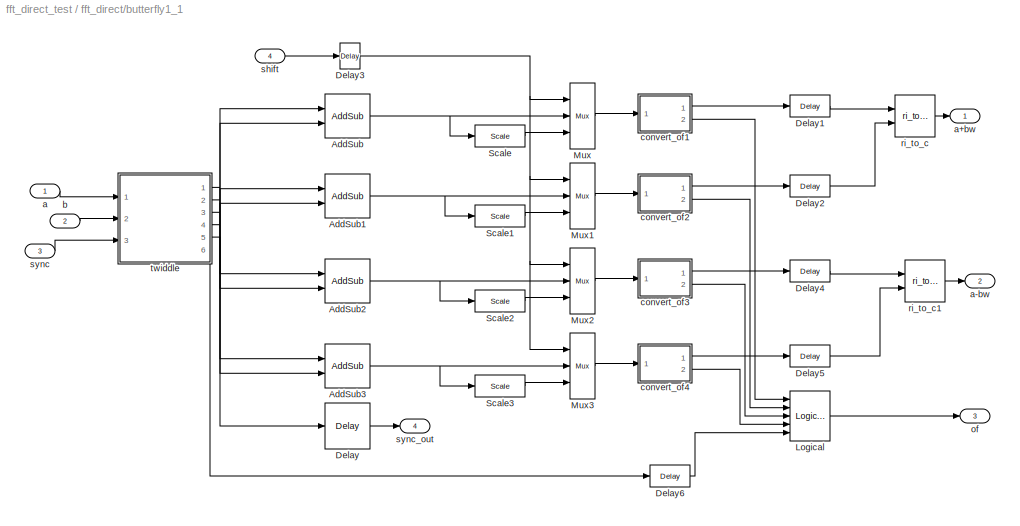
BLOCK [SubSystem] fft_direct/butterfly1_1
  AncestorBlock = casper_library/FFTs/butterfly_direct
  AttributesFormatString = FFTSize=2, Coeffs=[0],\n coeff_bit_width=12
  FunctionWithSeparateData = off
  MaskEnableString = on,on,on,on,on,on,on,on,on,on,on,on,on,on,on,on
  MaskIconFrame = on
  MaskIconOpaque = on
  MaskIconRotate = none
  MaskIconUnits = autoscale
  MaskSelfModifiable = on
  MaskTabNameString = ,,,,,,,,,,,,,,,
  MaskToolTipString = on,on,on,on,on,on,on,on,on,on,on,on,on,on,on,on
  MaskTunableValueString = on,on,on,on,on,on,on,on,on,on,on,on,on,on,on,on
  MaskType = butterfly_direct
  MaskValueString = off|2|0|12|0|1|off|12|1|2|Truncate|Saturate|Virtex2Pro|Multipliers|on|off
  MaskVarAliasString = ,,,,,,,,,,,,,,,
  MaskVisibilityString = off,on,on,on,on,on,on,on,on,on,on,on,on,on,on,off
  MinAlgLoopOccurrences = off
  Ports = [4, 4]
  RTWSystemCode = Auto
  UserData = DataTag15
  UserDataPersistent = on
BLOCK [Reference] fft_direct/butterfly1_1/AddSub  REF=xbsIndex_r4/AddSub
  Ports = [2, 1]
  SourceBlock = xbsIndex_r4/AddSub
  SourceType = Xilinx Adder/Subtractor Block
  arith_type = Unsigned
  bin_pt = 2
  block_type = addsub
  block_version = 9.1.01
  dbl_ovrd = off
  en = off
  has_advanced_control = 0
  hw_selection = Fabric
  latency = add_latency
  mode = Addition
  n_bits = 8
  overflow = Wrap
  pipelined = on
  precision = Full
  quantization = Truncate
  sg_icon_stat = 45,44,2,1,white,blue,0,d7118884,right
  sggui_pos = 20,20,348,342
  use_behavioral_HDL = on
  use_carryin = off
  use_carryout = off
  use_rpm = on
  xl_area = [0, 0, 0, 0, 0, 0, 0]
  xl_use_area = off
BLOCK [Reference] fft_direct/butterfly1_1/AddSub1  REF=xbsIndex_r4/AddSub
  Ports = [2, 1]
  SourceBlock = xbsIndex_r4/AddSub
  SourceType = Xilinx Adder/Subtractor Block
  arith_type = Unsigned
  bin_pt = 2
  block_type = addsub
  block_version = 9.1.01
  dbl_ovrd = off
  en = off
  has_advanced_control = 0
  hw_selection = Fabric
  latency = add_latency
  mode = Addition
  n_bits = 8
  overflow = Wrap
  pipelined = on
  precision = Full
  quantization = Truncate
  sg_icon_stat = 45,44,2,1,white,blue,0,d7118884,right
  sggui_pos = 20,20,348,342
  use_behavioral_HDL = on
  use_carryin = off
  use_carryout = off
  use_rpm = on
  xl_area = [0, 0, 0, 0, 0, 0, 0]
  xl_use_area = off
BLOCK [Reference] fft_direct/butterfly1_1/AddSub2  REF=xbsIndex_r4/AddSub
  Ports = [2, 1]
  SourceBlock = xbsIndex_r4/AddSub
  SourceType = Xilinx Adder/Subtractor Block
  arith_type = Unsigned
  bin_pt = 2
  block_type = addsub
  block_version = 9.1.01
  dbl_ovrd = off
  en = off
  has_advanced_control = 0
  hw_selection = Fabric
  latency = add_latency
  mode = Subtraction
  n_bits = 8
  overflow = Wrap
  pipelined = on
  precision = Full
  quantization = Truncate
  sg_icon_stat = 45,44,2,1,white,blue,0,f900bd06,right
  sggui_pos = 20,20,348,342
  use_behavioral_HDL = on
  use_carryin = off
  use_carryout = off
  use_rpm = on
  xl_area = [0, 0, 0, 0, 0, 0, 0]
  xl_use_area = off
BLOCK [Reference] fft_direct/butterfly1_1/AddSub3  REF=xbsIndex_r4/AddSub
  Ports = [2, 1]
  SourceBlock = xbsIndex_r4/AddSub
  SourceType = Xilinx Adder/Subtractor Block
  arith_type = Unsigned
  bin_pt = 2
  block_type = addsub
  block_version = 9.1.01
  dbl_ovrd = off
  en = off
  has_advanced_control = 0
  hw_selection = Fabric
  latency = add_latency
  mode = Subtraction
  n_bits = 8
  overflow = Wrap
  pipelined = on
  precision = Full
  quantization = Truncate
  sg_icon_stat = 45,44,2,1,white,blue,0,f900bd06,right
  sggui_pos = -1,-1,-1,-1
  use_behavioral_HDL = on
  use_carryin = off
  use_carryout = off
  use_rpm = on
  xl_area = [0, 0, 0, 0, 0, 0, 0]
  xl_use_area = off
BLOCK [Reference] fft_direct/butterfly1_1/Delay  REF=xbsIndex_r4/Delay
  Ports = [1, 1]
  SourceBlock = xbsIndex_r4/Delay
  SourceType = Xilinx Delay Block
  block_type = delay
  block_version = 9.1.01
  dbl_ovrd = off
  en = off
  has_advanced_control = 0
  infoedit = Hardware notes: A delay line is a chain, each link of which is an SRL16 followed by a flip-flop.
  latency = add_latency + 3
  reg_retiming = off
  sg_icon_stat = 45,46,1,1,white,blue,0,c2217bc4,right
  sggui_pos = 20,20,407,280
  xl_area = [0, 0, 0, 0, 0, 0, 0]
  xl_use_area = off
BLOCK [Reference] fft_direct/butterfly1_1/Delay1  REF=xbsIndex_r4/Delay
  Ports = [1, 1]
  SourceBlock = xbsIndex_r4/Delay
  SourceType = Xilinx Delay Block
  block_type = delay
  block_version = 10.1.1
  dbl_ovrd = off
  en = off
  has_advanced_control = 0
  infoedit = Hardware notes: A delay line is a chain, each link of which is an SRL16 followed by a flip-flop.
  latency = 1
  reg_retiming = off
  sg_icon_stat = 40,22,1,1,white,blue,0,fc531c0e,right
  sggui_pos = -1,-1,-1,-1
  xl_area = [0,0,0,0,0,0,0]
  xl_use_area = off
BLOCK [Reference] fft_direct/butterfly1_1/Delay2  REF=xbsIndex_r4/Delay
  Ports = [1, 1]
  SourceBlock = xbsIndex_r4/Delay
  SourceType = Xilinx Delay Block
  block_type = delay
  block_version = 10.1.1
  dbl_ovrd = off
  en = off
  has_advanced_control = 0
  infoedit = Hardware notes: A delay line is a chain, each link of which is an SRL16 followed by a flip-flop.
  latency = 1
  reg_retiming = off
  sg_icon_stat = 40,22,1,1,white,blue,0,fc531c0e,right
  sggui_pos = -1,-1,-1,-1
  xl_area = [0,0,0,0,0,0,0]
  xl_use_area = off
BLOCK [Reference] fft_direct/butterfly1_1/Delay3  REF=xbsIndex_r4/Delay
  Ports = [1, 1]
  SourceBlock = xbsIndex_r4/Delay
  SourceType = Xilinx Delay Block
  block_type = delay
  block_version = 9.1.01
  dbl_ovrd = off
  en = off
  has_advanced_control = 0
  infoedit = Hardware notes: A delay line is a chain, each link of which is an SRL16 followed by a flip-flop.
  latency = add_latency
  reg_retiming = off
  sg_icon_stat = 20,26,1,1,white,blue,0,fc531c0e,right
  sggui_pos = 20,20,407,280
  xl_area = [0, 0, 0, 0, 0, 0, 0]
  xl_use_area = off
BLOCK [Reference] fft_direct/butterfly1_1/Delay4  REF=xbsIndex_r4/Delay
  Ports = [1, 1]
  SourceBlock = xbsIndex_r4/Delay
  SourceType = Xilinx Delay Block
  block_type = delay
  block_version = 10.1.1
  dbl_ovrd = off
  en = off
  has_advanced_control = 0
  infoedit = Hardware notes: A delay line is a chain, each link of which is an SRL16 followed by a flip-flop.
  latency = 1
  reg_retiming = off
  sg_icon_stat = 40,22,1,1,white,blue,0,fc531c0e,right
  sggui_pos = -1,-1,-1,-1
  xl_area = [0,0,0,0,0,0,0]
  xl_use_area = off
BLOCK [Reference] fft_direct/butterfly1_1/Delay5  REF=xbsIndex_r4/Delay
  Ports = [1, 1]
  SourceBlock = xbsIndex_r4/Delay
  SourceType = Xilinx Delay Block
  block_type = delay
  block_version = 10.1.1
  dbl_ovrd = off
  en = off
  has_advanced_control = 0
  infoedit = Hardware notes: A delay line is a chain, each link of which is an SRL16 followed by a flip-flop.
  latency = 1
  reg_retiming = off
  sg_icon_stat = 40,22,1,1,white,blue,0,fc531c0e,right
  sggui_pos = -1,-1,-1,-1
  xl_area = [0,0,0,0,0,0,0]
  xl_use_area = off
BLOCK [Reference] fft_direct/butterfly1_1/Delay6  REF=xbsIndex_r4/Delay
  Ports = [1, 1]
  SourceBlock = xbsIndex_r4/Delay
  SourceType = Xilinx Delay Block
  block_type = delay
  block_version = 10.1.1
  dbl_ovrd = off
  en = off
  has_advanced_control = 0
  infoedit = Hardware notes: A delay line is a chain, each link of which is an SRL16 followed by a flip-flop.
  latency = add_latency+2
  reg_retiming = off
  sg_icon_stat = 40,22,1,1,white,blue,0,eabd56db,right
  sggui_pos = 20,20,348,254
  xl_area = [0,0,0,0,0,0,0]
  xl_use_area = off
BLOCK [Reference] fft_direct/butterfly1_1/Logical  REF=xbsIndex_r4/Logical
  Ports = [5, 1]
  SourceBlock = xbsIndex_r4/Logical
  SourceType = Xilinx Logical Block Block
  align_bp = on
  arith_type = Unsigned
  bin_pt = 0
  block_type = logical
  block_version = 10.1.1
  dbl_ovrd = off
  en = off
  has_advanced_control = 0
  inputs = 5
  latency = 1
  logical_function = OR
  n_bits = 16
  precision = Full
  sg_icon_stat = 40,50,5,1,white,blue,0,5d6b706e,right
  sggui_pos = 20,20,407,291
  xl_area = [0,0,0,0,0,0,0]
  xl_use_area = off
BLOCK [Reference] fft_direct/butterfly1_1/Mux  REF=xbsIndex_r4/Mux
  Ports = [3, 1]
  SourceBlock = xbsIndex_r4/Mux
  SourceType = Xilinx Bus Multiplexer Block
  arith_type = Signed  (2's comp)
  bin_pt = 2
  block_type = mux
  block_version = 9.1.01
  dbl_ovrd = off
  en = off
  has_advanced_control = 0
  inputs = 2
  latency = 1
  n_bits = 8
  overflow = Wrap
  precision = Full
  quantization = Truncate
  sg_icon_stat = 25,66,3,1,white,blue,3,03f9c9b9,right
  sggui_pos = 20,20,348,306
  xl_area = [0, 0, 0, 0, 0, 0, 0]
  xl_use_area = off
BLOCK [Reference] fft_direct/butterfly1_1/Mux1  REF=xbsIndex_r4/Mux
  Ports = [3, 1]
  SourceBlock = xbsIndex_r4/Mux
  SourceType = Xilinx Bus Multiplexer Block
  arith_type = Signed  (2's comp)
  bin_pt = 2
  block_type = mux
  block_version = 9.1.01
  dbl_ovrd = off
  en = off
  has_advanced_control = 0
  inputs = 2
  latency = 1
  n_bits = 8
  overflow = Wrap
  precision = Full
  quantization = Truncate
  sg_icon_stat = 25,66,3,1,white,blue,3,03f9c9b9,right
  sggui_pos = 20,20,407,344
  xl_area = [0, 0, 0, 0, 0, 0, 0]
  xl_use_area = off
BLOCK [Reference] fft_direct/butterfly1_1/Mux2  REF=xbsIndex_r4/Mux
  Ports = [3, 1]
  SourceBlock = xbsIndex_r4/Mux
  SourceType = Xilinx Bus Multiplexer Block
  arith_type = Signed  (2's comp)
  bin_pt = 2
  block_type = mux
  block_version = 9.1.01
  dbl_ovrd = off
  en = off
  has_advanced_control = 0
  inputs = 2
  latency = 1
  n_bits = 8
  overflow = Wrap
  precision = Full
  quantization = Truncate
  sg_icon_stat = 25,66,3,1,white,blue,3,03f9c9b9,right
  sggui_pos = 20,20,407,344
  xl_area = [0, 0, 0, 0, 0, 0, 0]
  xl_use_area = off
BLOCK [Reference] fft_direct/butterfly1_1/Mux3  REF=xbsIndex_r4/Mux
  Ports = [3, 1]
  SourceBlock = xbsIndex_r4/Mux
  SourceType = Xilinx Bus Multiplexer Block
  arith_type = Signed  (2's comp)
  bin_pt = 2
  block_type = mux
  block_version = 9.1.01
  dbl_ovrd = off
  en = off
  has_advanced_control = 0
  inputs = 2
  latency = 1
  n_bits = 8
  overflow = Wrap
  precision = Full
  quantization = Truncate
  sg_icon_stat = 25,66,3,1,white,blue,3,03f9c9b9,right
  sggui_pos = 20,20,407,344
  xl_area = [0, 0, 0, 0, 0, 0, 0]
  xl_use_area = off
BLOCK [Reference] fft_direct/butterfly1_1/Scale  REF=xbsIndex_r4/Scale
  Ports = [1, 1]
  SourceBlock = xbsIndex_r4/Scale
  SourceType = Xilinx Input Scaler Block
  block_type = scale
  block_version = 9.1.01
  dbl_ovrd = off
  has_advanced_control = 0
  infoedit = Scales input by a power of two by adjusting the binary point position.<P><P>Hardware notes: In hardware this block costs nothing.
  scale_factor = -1
  sg_icon_stat = 50,22,1,1,white,blue,0,4d520166,right
  sggui_pos = -1,-1,-1,-1
BLOCK [Reference] fft_direct/butterfly1_1/Scale1  REF=xbsIndex_r4/Scale
  Ports = [1, 1]
  SourceBlock = xbsIndex_r4/Scale
  SourceType = Xilinx Input Scaler Block
  block_type = scale
  block_version = 9.1.01
  dbl_ovrd = off
  has_advanced_control = 0
  infoedit = Scales input by a power of two by adjusting the binary point position.<P><P>Hardware notes: In hardware this block costs nothing.
  scale_factor = -1
  sg_icon_stat = 50,22,1,1,white,blue,0,4d520166,right
  sggui_pos = -1,-1,-1,-1
BLOCK [Reference] fft_direct/butterfly1_1/Scale2  REF=xbsIndex_r4/Scale
  Ports = [1, 1]
  SourceBlock = xbsIndex_r4/Scale
  SourceType = Xilinx Input Scaler Block
  block_type = scale
  block_version = 9.1.01
  dbl_ovrd = off
  has_advanced_control = 0
  infoedit = Scales input by a power of two by adjusting the binary point position.<P><P>Hardware notes: In hardware this block costs nothing.
  scale_factor = -1
  sg_icon_stat = 50,22,1,1,white,blue,0,4d520166,right
  sggui_pos = -1,-1,-1,-1
BLOCK [Reference] fft_direct/butterfly1_1/Scale3  REF=xbsIndex_r4/Scale
  Ports = [1, 1]
  SourceBlock = xbsIndex_r4/Scale
  SourceType = Xilinx Input Scaler Block
  block_type = scale
  block_version = 9.1.01
  dbl_ovrd = off
  has_advanced_control = 0
  infoedit = Scales input by a power of two by adjusting the binary point position.<P><P>Hardware notes: In hardware this block costs nothing.
  scale_factor = -1
  sg_icon_stat = 50,22,1,1,white,blue,0,4d520166,right
  sggui_pos = -1,-1,-1,-1
BLOCK [Inport] fft_direct/butterfly1_1/a
  IconDisplay = Port number
  OutDataType = sfix(16)
  OutScaling = 2^0
BLOCK [Outport] fft_direct/butterfly1_1/a+bw
  IconDisplay = Port number
  OutDataType = sfix(16)
  OutScaling = 2^0
BLOCK [Outport] fft_direct/butterfly1_1/a-bw
  IconDisplay = Port number
  OutDataType = sfix(16)
  OutScaling = 2^0
  Port = 2
BLOCK [Inport] fft_direct/butterfly1_1/b
  IconDisplay = Port number
  OutDataType = sfix(16)
  OutScaling = 2^0
  Port = 2
BLOCK [SubSystem] fft_direct/butterfly1_1/convert_of1
  AncestorBlock = casper_library/Misc/convert_of
  AttributesFormatString = [14,12]->[12,11]
  FunctionWithSeparateData = off
  MaskCallbackString = ||||||
  MaskDescription = Converts from one 2's complement bit-width \nand/or binary point position to another. \nIncludes underflow/overflow indicator.
  MaskEnableString = on,on,on,on,on,on,on
  MaskIconFrame = on
  MaskIconOpaque = on
  MaskIconRotate = none
  MaskIconUnits = autoscale
  MaskPromptString = Bit Width In|Binary Point In|Bit Width Out|Binary Point Out|Latency|Overflow Behaviour|Quantization Behaviour
  MaskStyleString = edit,edit,edit,edit,edit,popup(Wrap|Saturate|Error),popup(Truncate|Round  (unbiased: +/- Inf)|Round  (unbiased: even values))
  MaskTabNameString = ,,,,,,
  MaskToolTipString = on,on,on,on,on,on,on
  MaskTunableValueString = on,on,on,on,on,on,on
  MaskType = convert_of
  MaskValueString = 14|12|12|11|1|Saturate|Truncate
  MaskVarAliasString = ,,,,,,
  MaskVariables = bit_width_i=@1;binary_point_i=@2;bit_width_o=@3;binary_point_o=@4;latency=@5;overflow=&6;quantization=&7;
  MaskVisibilityString = on,on,on,on,on,on,on
  MinAlgLoopOccurrences = off
  Ports = [1, 2]
  RTWSystemCode = Auto
  UserData = DataTag16
  UserDataPersistent = on
BLOCK [Reference] fft_direct/butterfly1_1/convert_of1/convert  REF=xbsIndex_r4/Convert
  Ports = [1, 1]
  SourceBlock = xbsIndex_r4/Convert
  SourceType = Xilinx Type Converter Block
  arith_type = Signed  (2's comp)
  bin_pt = binary_point_o
  block_type = convert
  block_version = 10.1.1
  dbl_ovrd = off
  has_advanced_control = 0
  infoedit = Hardware notes: rounding and saturating require hardware resources; truncating and wrapping do not.
  latency = latency
  n_bits = bit_width_o
  overflow = Saturate
  pipeline = off
  quantization = Truncate
  sg_icon_stat = 45,30,1,1,white,blue,0,ba4d1298,right
  sggui_pos = 20,20,538,377
  xl_area = [0,0,0,0,0,0,0]
  xl_use_area = off
BLOCK [Inport] fft_direct/butterfly1_1/convert_of1/din
  IconDisplay = Port number
  OutDataType = sfix(16)
  OutScaling = 2^0
BLOCK [Outport] fft_direct/butterfly1_1/convert_of1/dout
  IconDisplay = Port number
BLOCK [Outport] fft_direct/butterfly1_1/convert_of1/of
  IconDisplay = Port number
  Port = 2
BLOCK [Reference] fft_direct/butterfly1_1/convert_of1/slice1  REF=xbsIndex_r4/Slice
  Ports = [1, 1]
  SourceBlock = xbsIndex_r4/Slice
  SourceType = Xilinx Bit Slice Extractor Block
  base0 = LSB of Input
  base1 = MSB of Input
  bit0 = 0
  bit1 = 0
  block_type = slice
  block_version = 10.1.3
  boolean_output = on
  dbl_ovrd = off
  has_advanced_control = 0
  mode = Upper Bit Location + Width
  nbits = 1
  sg_icon_stat = 35,22,1,1,white,blue,0,b1026674,right
  sggui_pos = -1,-1,-1,-1
BLOCK [Reference] fft_direct/butterfly1_1/convert_of1/slice2  REF=xbsIndex_r4/Slice
  Ports = [1, 1]
  SourceBlock = xbsIndex_r4/Slice
  SourceType = Xilinx Bit Slice Extractor Block
  base0 = LSB of Input
  base1 = MSB of Input
  bit0 = 0
  bit1 = -1
  block_type = slice
  block_version = 10.1.3
  boolean_output = on
  dbl_ovrd = off
  has_advanced_control = 0
  mode = Upper Bit Location + Width
  nbits = 1
  sg_icon_stat = 35,22,1,1,white,blue,0,b1026674,right
  sggui_pos = -1,-1,-1,-1
BLOCK [Reference] fft_direct/butterfly1_1/convert_of1/xor  REF=xbsIndex_r4/Logical
  Ports = [2, 1]
  SourceBlock = xbsIndex_r4/Logical
  SourceType = Xilinx Logical Block Block
  align_bp = on
  arith_type = Unsigned
  bin_pt = 0
  block_type = logical
  block_version = 10.1.3
  dbl_ovrd = off
  en = off
  has_advanced_control = 0
  inputs = 2
  latency = latency
  logical_function = XOR
  n_bits = 16
  precision = Full
  sg_icon_stat = 50,60,2,1,white,blue,0,52e2cb93,right
  sggui_pos = -1,-1,-1,-1
  xl_area = [0,0,0,0,0,0,0]
  xl_use_area = off
BLOCK [SubSystem] fft_direct/butterfly1_1/convert_of2
  AncestorBlock = casper_library/FFTs/butterfly_direct/convert_of1
  AttributesFormatString = [14,12]->[12,11]
  FunctionWithSeparateData = off
  MaskCallbackString = ||||||
  MaskDescription = Converts from one 2's complement bit-width \nand/or binary point position to another. \nIncludes underflow/overflow indicator.
  MaskEnableString = on,on,on,on,on,on,on
  MaskIconFrame = on
  MaskIconOpaque = on
  MaskIconRotate = none
  MaskIconUnits = autoscale
  MaskPromptString = Bit Width In|Binary Point In|Bit Width Out|Binary Point Out|Latency|Overflow Behaviour|Quantization Behaviour
  MaskStyleString = edit,edit,edit,edit,edit,popup(Wrap|Saturate|Error),popup(Truncate|Round  (unbiased: +/- Inf)|Round  (unbiased: even values))
  MaskTabNameString = ,,,,,,
  MaskToolTipString = on,on,on,on,on,on,on
  MaskTunableValueString = on,on,on,on,on,on,on
  MaskType = convert_of
  MaskValueString = 14|12|12|11|1|Saturate|Truncate
  MaskVarAliasString = ,,,,,,
  MaskVariables = bit_width_i=@1;binary_point_i=@2;bit_width_o=@3;binary_point_o=@4;latency=@5;overflow=&6;quantization=&7;
  MaskVisibilityString = on,on,on,on,on,on,on
  MinAlgLoopOccurrences = off
  Ports = [1, 2]
  RTWSystemCode = Auto
  UserData = DataTag17
  UserDataPersistent = on
BLOCK [Reference] fft_direct/butterfly1_1/convert_of2/convert  REF=xbsIndex_r4/Convert
  Ports = [1, 1]
  SourceBlock = xbsIndex_r4/Convert
  SourceType = Xilinx Type Converter Block
  arith_type = Signed  (2's comp)
  bin_pt = binary_point_o
  block_type = convert
  block_version = 10.1.1
  dbl_ovrd = off
  has_advanced_control = 0
  infoedit = Hardware notes: rounding and saturating require hardware resources; truncating and wrapping do not.
  latency = latency
  n_bits = bit_width_o
  overflow = Saturate
  pipeline = off
  quantization = Truncate
  sg_icon_stat = 45,30,1,1,white,blue,0,ba4d1298,right
  sggui_pos = 20,20,538,377
  xl_area = [0,0,0,0,0,0,0]
  xl_use_area = off
BLOCK [Inport] fft_direct/butterfly1_1/convert_of2/din
  IconDisplay = Port number
  OutDataType = sfix(16)
  OutScaling = 2^0
BLOCK [Outport] fft_direct/butterfly1_1/convert_of2/dout
  IconDisplay = Port number
BLOCK [Outport] fft_direct/butterfly1_1/convert_of2/of
  IconDisplay = Port number
  Port = 2
BLOCK [Reference] fft_direct/butterfly1_1/convert_of2/slice1  REF=xbsIndex_r4/Slice
  Ports = [1, 1]
  SourceBlock = xbsIndex_r4/Slice
  SourceType = Xilinx Bit Slice Extractor Block
  base0 = LSB of Input
  base1 = MSB of Input
  bit0 = 0
  bit1 = 0
  block_type = slice
  block_version = 10.1.3
  boolean_output = on
  dbl_ovrd = off
  has_advanced_control = 0
  mode = Upper Bit Location + Width
  nbits = 1
  sg_icon_stat = 35,22,1,1,white,blue,0,b1026674,right
  sggui_pos = -1,-1,-1,-1
BLOCK [Reference] fft_direct/butterfly1_1/convert_of2/slice2  REF=xbsIndex_r4/Slice
  Ports = [1, 1]
  SourceBlock = xbsIndex_r4/Slice
  SourceType = Xilinx Bit Slice Extractor Block
  base0 = LSB of Input
  base1 = MSB of Input
  bit0 = 0
  bit1 = -1
  block_type = slice
  block_version = 10.1.3
  boolean_output = on
  dbl_ovrd = off
  has_advanced_control = 0
  mode = Upper Bit Location + Width
  nbits = 1
  sg_icon_stat = 35,22,1,1,white,blue,0,b1026674,right
  sggui_pos = -1,-1,-1,-1
BLOCK [Reference] fft_direct/butterfly1_1/convert_of2/xor  REF=xbsIndex_r4/Logical
  Ports = [2, 1]
  SourceBlock = xbsIndex_r4/Logical
  SourceType = Xilinx Logical Block Block
  align_bp = on
  arith_type = Unsigned
  bin_pt = 0
  block_type = logical
  block_version = 10.1.3
  dbl_ovrd = off
  en = off
  has_advanced_control = 0
  inputs = 2
  latency = latency
  logical_function = XOR
  n_bits = 16
  precision = Full
  sg_icon_stat = 50,60,2,1,white,blue,0,52e2cb93,right
  sggui_pos = -1,-1,-1,-1
  xl_area = [0,0,0,0,0,0,0]
  xl_use_area = off
BLOCK [SubSystem] fft_direct/butterfly1_1/convert_of3
  AncestorBlock = casper_library/FFTs/butterfly_direct/convert_of1
  AttributesFormatString = [14,12]->[12,11]
  FunctionWithSeparateData = off
  MaskCallbackString = ||||||
  MaskDescription = Converts from one 2's complement bit-width \nand/or binary point position to another. \nIncludes underflow/overflow indicator.
  MaskEnableString = on,on,on,on,on,on,on
  MaskIconFrame = on
  MaskIconOpaque = on
  MaskIconRotate = none
  MaskIconUnits = autoscale
  MaskPromptString = Bit Width In|Binary Point In|Bit Width Out|Binary Point Out|Latency|Overflow Behaviour|Quantization Behaviour
  MaskStyleString = edit,edit,edit,edit,edit,popup(Wrap|Saturate|Error),popup(Truncate|Round  (unbiased: +/- Inf)|Round  (unbiased: even values))
  MaskTabNameString = ,,,,,,
  MaskToolTipString = on,on,on,on,on,on,on
  MaskTunableValueString = on,on,on,on,on,on,on
  MaskType = convert_of
  MaskValueString = 14|12|12|11|1|Saturate|Truncate
  MaskVarAliasString = ,,,,,,
  MaskVariables = bit_width_i=@1;binary_point_i=@2;bit_width_o=@3;binary_point_o=@4;latency=@5;overflow=&6;quantization=&7;
  MaskVisibilityString = on,on,on,on,on,on,on
  MinAlgLoopOccurrences = off
  Ports = [1, 2]
  RTWSystemCode = Auto
  UserData = DataTag18
  UserDataPersistent = on
BLOCK [Reference] fft_direct/butterfly1_1/convert_of3/convert  REF=xbsIndex_r4/Convert
  Ports = [1, 1]
  SourceBlock = xbsIndex_r4/Convert
  SourceType = Xilinx Type Converter Block
  arith_type = Signed  (2's comp)
  bin_pt = binary_point_o
  block_type = convert
  block_version = 10.1.1
  dbl_ovrd = off
  has_advanced_control = 0
  infoedit = Hardware notes: rounding and saturating require hardware resources; truncating and wrapping do not.
  latency = latency
  n_bits = bit_width_o
  overflow = Saturate
  pipeline = off
  quantization = Truncate
  sg_icon_stat = 45,30,1,1,white,blue,0,ba4d1298,right
  sggui_pos = 20,20,538,377
  xl_area = [0,0,0,0,0,0,0]
  xl_use_area = off
BLOCK [Inport] fft_direct/butterfly1_1/convert_of3/din
  IconDisplay = Port number
  OutDataType = sfix(16)
  OutScaling = 2^0
BLOCK [Outport] fft_direct/butterfly1_1/convert_of3/dout
  IconDisplay = Port number
BLOCK [Outport] fft_direct/butterfly1_1/convert_of3/of
  IconDisplay = Port number
  Port = 2
BLOCK [Reference] fft_direct/butterfly1_1/convert_of3/slice1  REF=xbsIndex_r4/Slice
  Ports = [1, 1]
  SourceBlock = xbsIndex_r4/Slice
  SourceType = Xilinx Bit Slice Extractor Block
  base0 = LSB of Input
  base1 = MSB of Input
  bit0 = 0
  bit1 = 0
  block_type = slice
  block_version = 10.1.3
  boolean_output = on
  dbl_ovrd = off
  has_advanced_control = 0
  mode = Upper Bit Location + Width
  nbits = 1
  sg_icon_stat = 35,22,1,1,white,blue,0,b1026674,right
  sggui_pos = -1,-1,-1,-1
BLOCK [Reference] fft_direct/butterfly1_1/convert_of3/slice2  REF=xbsIndex_r4/Slice
  Ports = [1, 1]
  SourceBlock = xbsIndex_r4/Slice
  SourceType = Xilinx Bit Slice Extractor Block
  base0 = LSB of Input
  base1 = MSB of Input
  bit0 = 0
  bit1 = -1
  block_type = slice
  block_version = 10.1.3
  boolean_output = on
  dbl_ovrd = off
  has_advanced_control = 0
  mode = Upper Bit Location + Width
  nbits = 1
  sg_icon_stat = 35,22,1,1,white,blue,0,b1026674,right
  sggui_pos = -1,-1,-1,-1
BLOCK [Reference] fft_direct/butterfly1_1/convert_of3/xor  REF=xbsIndex_r4/Logical
  Ports = [2, 1]
  SourceBlock = xbsIndex_r4/Logical
  SourceType = Xilinx Logical Block Block
  align_bp = on
  arith_type = Unsigned
  bin_pt = 0
  block_type = logical
  block_version = 10.1.3
  dbl_ovrd = off
  en = off
  has_advanced_control = 0
  inputs = 2
  latency = latency
  logical_function = XOR
  n_bits = 16
  precision = Full
  sg_icon_stat = 50,60,2,1,white,blue,0,52e2cb93,right
  sggui_pos = -1,-1,-1,-1
  xl_area = [0,0,0,0,0,0,0]
  xl_use_area = off
BLOCK [SubSystem] fft_direct/butterfly1_1/convert_of4
  AncestorBlock = casper_library/FFTs/butterfly_direct/convert_of1
  AttributesFormatString = [14,12]->[12,11]
  FunctionWithSeparateData = off
  MaskCallbackString = ||||||
  MaskDescription = Converts from one 2's complement bit-width \nand/or binary point position to another. \nIncludes underflow/overflow indicator.
  MaskEnableString = on,on,on,on,on,on,on
  MaskIconFrame = on
  MaskIconOpaque = on
  MaskIconRotate = none
  MaskIconUnits = autoscale
  MaskPromptString = Bit Width In|Binary Point In|Bit Width Out|Binary Point Out|Latency|Overflow Behaviour|Quantization Behaviour
  MaskStyleString = edit,edit,edit,edit,edit,popup(Wrap|Saturate|Error),popup(Truncate|Round  (unbiased: +/- Inf)|Round  (unbiased: even values))
  MaskTabNameString = ,,,,,,
  MaskToolTipString = on,on,on,on,on,on,on
  MaskTunableValueString = on,on,on,on,on,on,on
  MaskType = convert_of
  MaskValueString = 14|12|12|11|1|Saturate|Truncate
  MaskVarAliasString = ,,,,,,
  MaskVariables = bit_width_i=@1;binary_point_i=@2;bit_width_o=@3;binary_point_o=@4;latency=@5;overflow=&6;quantization=&7;
  MaskVisibilityString = on,on,on,on,on,on,on
  MinAlgLoopOccurrences = off
  Ports = [1, 2]
  RTWSystemCode = Auto
  UserData = DataTag19
  UserDataPersistent = on
BLOCK [Reference] fft_direct/butterfly1_1/convert_of4/convert  REF=xbsIndex_r4/Convert
  Ports = [1, 1]
  SourceBlock = xbsIndex_r4/Convert
  SourceType = Xilinx Type Converter Block
  arith_type = Signed  (2's comp)
  bin_pt = binary_point_o
  block_type = convert
  block_version = 10.1.1
  dbl_ovrd = off
  has_advanced_control = 0
  infoedit = Hardware notes: rounding and saturating require hardware resources; truncating and wrapping do not.
  latency = latency
  n_bits = bit_width_o
  overflow = Saturate
  pipeline = off
  quantization = Truncate
  sg_icon_stat = 45,30,1,1,white,blue,0,ba4d1298,right
  sggui_pos = 20,20,538,377
  xl_area = [0,0,0,0,0,0,0]
  xl_use_area = off
BLOCK [Inport] fft_direct/butterfly1_1/convert_of4/din
  IconDisplay = Port number
  OutDataType = sfix(16)
  OutScaling = 2^0
BLOCK [Outport] fft_direct/butterfly1_1/convert_of4/dout
  IconDisplay = Port number
BLOCK [Outport] fft_direct/butterfly1_1/convert_of4/of
  IconDisplay = Port number
  Port = 2
BLOCK [Reference] fft_direct/butterfly1_1/convert_of4/slice1  REF=xbsIndex_r4/Slice
  Ports = [1, 1]
  SourceBlock = xbsIndex_r4/Slice
  SourceType = Xilinx Bit Slice Extractor Block
  base0 = LSB of Input
  base1 = MSB of Input
  bit0 = 0
  bit1 = 0
  block_type = slice
  block_version = 10.1.3
  boolean_output = on
  dbl_ovrd = off
  has_advanced_control = 0
  mode = Upper Bit Location + Width
  nbits = 1
  sg_icon_stat = 35,22,1,1,white,blue,0,b1026674,right
  sggui_pos = -1,-1,-1,-1
BLOCK [Reference] fft_direct/butterfly1_1/convert_of4/slice2  REF=xbsIndex_r4/Slice
  Ports = [1, 1]
  SourceBlock = xbsIndex_r4/Slice
  SourceType = Xilinx Bit Slice Extractor Block
  base0 = LSB of Input
  base1 = MSB of Input
  bit0 = 0
  bit1 = -1
  block_type = slice
  block_version = 10.1.3
  boolean_output = on
  dbl_ovrd = off
  has_advanced_control = 0
  mode = Upper Bit Location + Width
  nbits = 1
  sg_icon_stat = 35,22,1,1,white,blue,0,b1026674,right
  sggui_pos = -1,-1,-1,-1
BLOCK [Reference] fft_direct/butterfly1_1/convert_of4/xor  REF=xbsIndex_r4/Logical
  Ports = [2, 1]
  SourceBlock = xbsIndex_r4/Logical
  SourceType = Xilinx Logical Block Block
  align_bp = on
  arith_type = Unsigned
  bin_pt = 0
  block_type = logical
  block_version = 10.1.3
  dbl_ovrd = off
  en = off
  has_advanced_control = 0
  inputs = 2
  latency = latency
  logical_function = XOR
  n_bits = 16
  precision = Full
  sg_icon_stat = 50,60,2,1,white,blue,0,52e2cb93,right
  sggui_pos = -1,-1,-1,-1
  xl_area = [0,0,0,0,0,0,0]
  xl_use_area = off
BLOCK [Outport] fft_direct/butterfly1_1/of
  IconDisplay = Port number
  OutDataType = sfix(16)
  OutScaling = 2^0
  Port = 3
BLOCK [Reference] fft_direct/butterfly1_1/ri_to_c  REF=casper_library/Misc/ri_to_c  (lib defined in mdl_138b2fc3435f, mdl_4ed325b712b3, +2 more)
  FunctionWithSeparateData = off
  Ports = [2, 1]
  RTWMemSecDataConstants = Inherit from model
  RTWMemSecDataInternal = Inherit from model
  RTWMemSecDataParameters = Inherit from model
  RTWMemSecFuncExecute = Inherit from model
  RTWMemSecFuncInitTerm = Inherit from model
  ShowPortLabels = FromPortIcon
  SourceBlock = casper_library/Misc/ri_to_c
  SourceType = ri_to_c
  SystemSampleTime = -1
  UserData = DataTag20
  UserDataPersistent = on
BLOCK [Reference] fft_direct/butterfly1_1/ri_to_c1  REF=casper_library/Misc/ri_to_c  (lib defined in mdl_138b2fc3435f, mdl_4ed325b712b3, +2 more)
  FunctionWithSeparateData = off
  Ports = [2, 1]
  RTWMemSecDataConstants = Inherit from model
  RTWMemSecDataInternal = Inherit from model
  RTWMemSecDataParameters = Inherit from model
  RTWMemSecFuncExecute = Inherit from model
  RTWMemSecFuncInitTerm = Inherit from model
  ShowPortLabels = FromPortIcon
  SourceBlock = casper_library/Misc/ri_to_c
  SourceType = ri_to_c
  SystemSampleTime = -1
  UserData = DataTag21
  UserDataPersistent = on
BLOCK [Inport] fft_direct/butterfly1_1/shift
  IconDisplay = Port number
  OutDataType = sfix(16)
  OutScaling = 2^0
  Port = 4
BLOCK [Inport] fft_direct/butterfly1_1/sync
  IconDisplay = Port number
  OutDataType = sfix(16)
  OutScaling = 2^0
  Port = 3
BLOCK [Outport] fft_direct/butterfly1_1/sync_out
  IconDisplay = Port number
  OutDataType = sfix(16)
  OutScaling = 2^0
  Port = 4
BLOCK [SubSystem] fft_direct/butterfly1_1/twiddle
  AncestorBlock = casper_library/FFTs/Twiddle/twiddle_coeff_0
  FunctionWithSeparateData = off
  MaskCallbackString = ||||||
  MaskDescription = Used in FFT library. Used when coefficients \nare 2^0 i.e just pass data through
  MaskEnableString = on,on,on,on,off,on,on
  MaskIconFrame = on
  MaskIconOpaque = on
  MaskIconRotate = none
  MaskIconUnits = autoscale
  MaskPromptString = Input Bit Width|Coefficient Bit Width|Add Latency|Mult Latency|BRAM Latency|Use behavioural HDL for multipliers|Use embedded multipliers
  MaskSelfModifiable = on
  MaskStyleString = edit,edit,edit,edit,edit,checkbox,checkbox
  MaskTabNameString = ,,,,,,
  MaskToolTipString = on,on,on,on,on,on,on
  MaskTunableValueString = on,on,on,on,on,on,on
  MaskType = twiddle_coeff_0
  MaskValueString = 12|12|1|2|1|on|off
  MaskVarAliasString = ,,,,,,
  MaskVariables = input_bit_width=@1;coeff_bit_width=@2;add_latency=@3;mult_latency=@4;bram_latency=@5;use_hdl=&6;use_embedded=&7;
  MaskVisibilityString = on,off,on,on,on,off,off
  MinAlgLoopOccurrences = off
  Ports = [3, 6]
  RTWSystemCode = Auto
BLOCK [Reference] fft_direct/butterfly1_1/twiddle/Constant  REF=xbsIndex_r4/Constant
  Ports = [0, 1]
  SourceBlock = xbsIndex_r4/Constant
  SourceType = Xilinx Constant Block Block
  arith_type = Boolean
  bin_pt = 14
  block_type = constant
  block_version = 10.1.3
  carry = CIN
  const = 0
  dbl_ovrd = off
  dsp48_infoedit = The use of this block for DSP48 instructions is deprecated.  Please use the Opmode block.
  equ = P=C
  explicit_period = on
  has_advanced_control = 0
  inp1 = P
  inp2 = PCIN>>17
  n_bits = 16
  opr = +
  opselect = C
  period = 1
  sg_icon_stat = 40,26,1,1,white,blue,0,72d575a1,right
  sggui_pos = 20,20,414,344
BLOCK [Reference] fft_direct/butterfly1_1/twiddle/Delay  REF=xbsIndex_r4/Delay
  Ports = [1, 1]
  SourceBlock = xbsIndex_r4/Delay
  SourceType = Xilinx Delay Block
  block_type = delay
  block_version = 10.1.3
  dbl_ovrd = off
  en = off
  has_advanced_control = 0
  infoedit = Hardware notes: A delay line is a chain, each link of which is an SRL16 followed by a flip-flop.
  latency = mult_latency+add_latency+bram_latency
  reg_retiming = off
  sg_icon_stat = 40,42,1,1,white,blue,0,36c42516,right
  sggui_pos = 20,20,348,254
  xl_area = [0,0,0,0,0,0,0]
  xl_use_area = off
BLOCK [Reference] fft_direct/butterfly1_1/twiddle/Delay1  REF=xbsIndex_r4/Delay
  Ports = [1, 1]
  SourceBlock = xbsIndex_r4/Delay
  SourceType = Xilinx Delay Block
  block_type = delay
  block_version = 10.1.3
  dbl_ovrd = off
  en = off
  has_advanced_control = 0
  infoedit = Hardware notes: A delay line is a chain, each link of which is an SRL16 followed by a flip-flop.
  latency = mult_latency+add_latency+bram_latency
  reg_retiming = off
  sg_icon_stat = 40,42,1,1,white,blue,0,36c42516,right
  sggui_pos = 20,20,348,254
  xl_area = [0,0,0,0,0,0,0]
  xl_use_area = off
BLOCK [Reference] fft_direct/butterfly1_1/twiddle/Delay2  REF=xbsIndex_r4/Delay
  Ports = [1, 1]
  SourceBlock = xbsIndex_r4/Delay
  SourceType = Xilinx Delay Block
  block_type = delay
  block_version = 10.1.3
  dbl_ovrd = off
  en = off
  has_advanced_control = 0
  infoedit = Hardware notes: A delay line is a chain, each link of which is an SRL16 followed by a flip-flop.
  latency = mult_latency+add_latency+bram_latency
  reg_retiming = off
  sg_icon_stat = 40,42,1,1,white,blue,0,36c42516,right
  sggui_pos = 20,20,348,254
  xl_area = [0,0,0,0,0,0,0]
  xl_use_area = off
BLOCK [Inport] fft_direct/butterfly1_1/twiddle/a
  IconDisplay = Port number
  OutDataType = sfix(16)
  OutScaling = 2^0
BLOCK [Outport] fft_direct/butterfly1_1/twiddle/a_im
  IconDisplay = Port number
  OutDataType = sfix(16)
  OutScaling = 2^0
  Port = 2
BLOCK [Outport] fft_direct/butterfly1_1/twiddle/a_re
  IconDisplay = Port number
  OutDataType = sfix(16)
  OutScaling = 2^0
BLOCK [Inport] fft_direct/butterfly1_1/twiddle/b
  IconDisplay = Port number
  OutDataType = sfix(16)
  OutScaling = 2^0
  Port = 2
BLOCK [Outport] fft_direct/butterfly1_1/twiddle/bw_im
  IconDisplay = Port number
  OutDataType = sfix(16)
  OutScaling = 2^0
  Port = 4
BLOCK [Outport] fft_direct/butterfly1_1/twiddle/bw_re
  IconDisplay = Port number
  OutDataType = sfix(16)
  OutScaling = 2^0
  Port = 3
BLOCK [Reference] fft_direct/butterfly1_1/twiddle/c_to_ri  REF=casper_library/Misc/c_to_ri  (lib defined in mdl_138b2fc3435f, mdl_4ed325b712b3, +2 more)
  AttributesFormatString = 18_17 r/i
  FunctionWithSeparateData = off
  Ports = [1, 2]
  RTWMemSecDataConstants = Inherit from model
  RTWMemSecDataInternal = Inherit from model
  RTWMemSecDataParameters = Inherit from model
  RTWMemSecFuncExecute = Inherit from model
  RTWMemSecFuncInitTerm = Inherit from model
  ShowPortLabels = FromPortIcon
  SourceBlock = casper_library/Misc/c_to_ri
  SourceType = c_to_ri
  SystemSampleTime = -1
  UserData = DataTag22
  UserDataPersistent = on
  bin_pt = input_bit_width-1
  n_bits = input_bit_width
BLOCK [Reference] fft_direct/butterfly1_1/twiddle/c_to_ri1  REF=casper_library/Misc/c_to_ri  (lib defined in mdl_138b2fc3435f, mdl_4ed325b712b3, +2 more)
  AttributesFormatString = 18_17 r/i
  FunctionWithSeparateData = off
  Ports = [1, 2]
  RTWMemSecDataConstants = Inherit from model
  RTWMemSecDataInternal = Inherit from model
  RTWMemSecDataParameters = Inherit from model
  RTWMemSecFuncExecute = Inherit from model
  RTWMemSecFuncInitTerm = Inherit from model
  ShowPortLabels = FromPortIcon
  SourceBlock = casper_library/Misc/c_to_ri
  SourceType = c_to_ri
  SystemSampleTime = -1
  UserData = DataTag23
  UserDataPersistent = on
  bin_pt = input_bit_width-1
  n_bits = input_bit_width
BLOCK [Outport] fft_direct/butterfly1_1/twiddle/of
  IconDisplay = Port number
  OutDataType = sfix(16)
  OutScaling = 2^0
  Port = 6
BLOCK [Inport] fft_direct/butterfly1_1/twiddle/sync
  IconDisplay = Port number
  OutDataType = sfix(16)
  OutScaling = 2^0
  Port = 3
BLOCK [Outport] fft_direct/butterfly1_1/twiddle/sync_out
  IconDisplay = Port number
  OutDataType = sfix(16)
  OutScaling = 2^0
  Port = 5
BLOCK [SubSystem] fft_direct/butterfly2_0
  AncestorBlock = casper_library/FFTs/butterfly_direct
  AttributesFormatString = FFTSize=2, Coeffs=[0],\n coeff_bit_width=12
  FunctionWithSeparateData = off
  MaskEnableString = on,on,on,on,on,on,on,on,on,on,on,on,on,on,on,on
  MaskIconFrame = on
  MaskIconOpaque = on
  MaskIconRotate = none
  MaskIconUnits = autoscale
  MaskSelfModifiable = on
  MaskTabNameString = ,,,,,,,,,,,,,,,
  MaskToolTipString = on,on,on,on,on,on,on,on,on,on,on,on,on,on,on,on
  MaskTunableValueString = on,on,on,on,on,on,on,on,on,on,on,on,on,on,on,on
  MaskType = butterfly_direct
  MaskValueString = off|2|0|12|0|1|off|12|1|2|Truncate|Saturate|Virtex2Pro|Multipliers|on|off
  MaskVarAliasString = ,,,,,,,,,,,,,,,
  MaskVisibilityString = off,on,on,on,on,on,on,on,on,on,on,on,on,on,on,off
  MinAlgLoopOccurrences = off
  Ports = [4, 4]
  RTWSystemCode = Auto
  UserData = DataTag24
  UserDataPersistent = on
BLOCK [Reference] fft_direct/butterfly2_0/AddSub  REF=xbsIndex_r4/AddSub
  Ports = [2, 1]
  SourceBlock = xbsIndex_r4/AddSub
  SourceType = Xilinx Adder/Subtractor Block
  arith_type = Unsigned
  bin_pt = 2
  block_type = addsub
  block_version = 9.1.01
  dbl_ovrd = off
  en = off
  has_advanced_control = 0
  hw_selection = Fabric
  latency = add_latency
  mode = Addition
  n_bits = 8
  overflow = Wrap
  pipelined = on
  precision = Full
  quantization = Truncate
  sg_icon_stat = 45,44,2,1,white,blue,0,d7118884,right
  sggui_pos = 20,20,348,342
  use_behavioral_HDL = on
  use_carryin = off
  use_carryout = off
  use_rpm = on
  xl_area = [0, 0, 0, 0, 0, 0, 0]
  xl_use_area = off
BLOCK [Reference] fft_direct/butterfly2_0/AddSub1  REF=xbsIndex_r4/AddSub
  Ports = [2, 1]
  SourceBlock = xbsIndex_r4/AddSub
  SourceType = Xilinx Adder/Subtractor Block
  arith_type = Unsigned
  bin_pt = 2
  block_type = addsub
  block_version = 9.1.01
  dbl_ovrd = off
  en = off
  has_advanced_control = 0
  hw_selection = Fabric
  latency = add_latency
  mode = Addition
  n_bits = 8
  overflow = Wrap
  pipelined = on
  precision = Full
  quantization = Truncate
  sg_icon_stat = 45,44,2,1,white,blue,0,d7118884,right
  sggui_pos = 20,20,348,342
  use_behavioral_HDL = on
  use_carryin = off
  use_carryout = off
  use_rpm = on
  xl_area = [0, 0, 0, 0, 0, 0, 0]
  xl_use_area = off
BLOCK [Reference] fft_direct/butterfly2_0/AddSub2  REF=xbsIndex_r4/AddSub
  Ports = [2, 1]
  SourceBlock = xbsIndex_r4/AddSub
  SourceType = Xilinx Adder/Subtractor Block
  arith_type = Unsigned
  bin_pt = 2
  block_type = addsub
  block_version = 9.1.01
  dbl_ovrd = off
  en = off
  has_advanced_control = 0
  hw_selection = Fabric
  latency = add_latency
  mode = Subtraction
  n_bits = 8
  overflow = Wrap
  pipelined = on
  precision = Full
  quantization = Truncate
  sg_icon_stat = 45,44,2,1,white,blue,0,f900bd06,right
  sggui_pos = 20,20,348,342
  use_behavioral_HDL = on
  use_carryin = off
  use_carryout = off
  use_rpm = on
  xl_area = [0, 0, 0, 0, 0, 0, 0]
  xl_use_area = off
BLOCK [Reference] fft_direct/butterfly2_0/AddSub3  REF=xbsIndex_r4/AddSub
  Ports = [2, 1]
  SourceBlock = xbsIndex_r4/AddSub
  SourceType = Xilinx Adder/Subtractor Block
  arith_type = Unsigned
  bin_pt = 2
  block_type = addsub
  block_version = 9.1.01
  dbl_ovrd = off
  en = off
  has_advanced_control = 0
  hw_selection = Fabric
  latency = add_latency
  mode = Subtraction
  n_bits = 8
  overflow = Wrap
  pipelined = on
  precision = Full
  quantization = Truncate
  sg_icon_stat = 45,44,2,1,white,blue,0,f900bd06,right
  sggui_pos = -1,-1,-1,-1
  use_behavioral_HDL = on
  use_carryin = off
  use_carryout = off
  use_rpm = on
  xl_area = [0, 0, 0, 0, 0, 0, 0]
  xl_use_area = off
BLOCK [Reference] fft_direct/butterfly2_0/Delay  REF=xbsIndex_r4/Delay
  Ports = [1, 1]
  SourceBlock = xbsIndex_r4/Delay
  SourceType = Xilinx Delay Block
  block_type = delay
  block_version = 9.1.01
  dbl_ovrd = off
  en = off
  has_advanced_control = 0
  infoedit = Hardware notes: A delay line is a chain, each link of which is an SRL16 followed by a flip-flop.
  latency = add_latency + 3
  reg_retiming = off
  sg_icon_stat = 45,46,1,1,white,blue,0,c2217bc4,right
  sggui_pos = 20,20,407,280
  xl_area = [0, 0, 0, 0, 0, 0, 0]
  xl_use_area = off
BLOCK [Reference] fft_direct/butterfly2_0/Delay1  REF=xbsIndex_r4/Delay
  Ports = [1, 1]
  SourceBlock = xbsIndex_r4/Delay
  SourceType = Xilinx Delay Block
  block_type = delay
  block_version = 10.1.1
  dbl_ovrd = off
  en = off
  has_advanced_control = 0
  infoedit = Hardware notes: A delay line is a chain, each link of which is an SRL16 followed by a flip-flop.
  latency = 1
  reg_retiming = off
  sg_icon_stat = 40,22,1,1,white,blue,0,fc531c0e,right
  sggui_pos = -1,-1,-1,-1
  xl_area = [0,0,0,0,0,0,0]
  xl_use_area = off
BLOCK [Reference] fft_direct/butterfly2_0/Delay2  REF=xbsIndex_r4/Delay
  Ports = [1, 1]
  SourceBlock = xbsIndex_r4/Delay
  SourceType = Xilinx Delay Block
  block_type = delay
  block_version = 10.1.1
  dbl_ovrd = off
  en = off
  has_advanced_control = 0
  infoedit = Hardware notes: A delay line is a chain, each link of which is an SRL16 followed by a flip-flop.
  latency = 1
  reg_retiming = off
  sg_icon_stat = 40,22,1,1,white,blue,0,fc531c0e,right
  sggui_pos = -1,-1,-1,-1
  xl_area = [0,0,0,0,0,0,0]
  xl_use_area = off
BLOCK [Reference] fft_direct/butterfly2_0/Delay3  REF=xbsIndex_r4/Delay
  Ports = [1, 1]
  SourceBlock = xbsIndex_r4/Delay
  SourceType = Xilinx Delay Block
  block_type = delay
  block_version = 9.1.01
  dbl_ovrd = off
  en = off
  has_advanced_control = 0
  infoedit = Hardware notes: A delay line is a chain, each link of which is an SRL16 followed by a flip-flop.
  latency = add_latency
  reg_retiming = off
  sg_icon_stat = 20,26,1,1,white,blue,0,fc531c0e,right
  sggui_pos = 20,20,407,280
  xl_area = [0, 0, 0, 0, 0, 0, 0]
  xl_use_area = off
BLOCK [Reference] fft_direct/butterfly2_0/Delay4  REF=xbsIndex_r4/Delay
  Ports = [1, 1]
  SourceBlock = xbsIndex_r4/Delay
  SourceType = Xilinx Delay Block
  block_type = delay
  block_version = 10.1.1
  dbl_ovrd = off
  en = off
  has_advanced_control = 0
  infoedit = Hardware notes: A delay line is a chain, each link of which is an SRL16 followed by a flip-flop.
  latency = 1
  reg_retiming = off
  sg_icon_stat = 40,22,1,1,white,blue,0,fc531c0e,right
  sggui_pos = -1,-1,-1,-1
  xl_area = [0,0,0,0,0,0,0]
  xl_use_area = off
BLOCK [Reference] fft_direct/butterfly2_0/Delay5  REF=xbsIndex_r4/Delay
  Ports = [1, 1]
  SourceBlock = xbsIndex_r4/Delay
  SourceType = Xilinx Delay Block
  block_type = delay
  block_version = 10.1.1
  dbl_ovrd = off
  en = off
  has_advanced_control = 0
  infoedit = Hardware notes: A delay line is a chain, each link of which is an SRL16 followed by a flip-flop.
  latency = 1
  reg_retiming = off
  sg_icon_stat = 40,22,1,1,white,blue,0,fc531c0e,right
  sggui_pos = -1,-1,-1,-1
  xl_area = [0,0,0,0,0,0,0]
  xl_use_area = off
BLOCK [Reference] fft_direct/butterfly2_0/Delay6  REF=xbsIndex_r4/Delay
  Ports = [1, 1]
  SourceBlock = xbsIndex_r4/Delay
  SourceType = Xilinx Delay Block
  block_type = delay
  block_version = 10.1.1
  dbl_ovrd = off
  en = off
  has_advanced_control = 0
  infoedit = Hardware notes: A delay line is a chain, each link of which is an SRL16 followed by a flip-flop.
  latency = add_latency+2
  reg_retiming = off
  sg_icon_stat = 40,22,1,1,white,blue,0,eabd56db,right
  sggui_pos = 20,20,348,254
  xl_area = [0,0,0,0,0,0,0]
  xl_use_area = off
BLOCK [Reference] fft_direct/butterfly2_0/Logical  REF=xbsIndex_r4/Logical
  Ports = [5, 1]
  SourceBlock = xbsIndex_r4/Logical
  SourceType = Xilinx Logical Block Block
  align_bp = on
  arith_type = Unsigned
  bin_pt = 0
  block_type = logical
  block_version = 10.1.1
  dbl_ovrd = off
  en = off
  has_advanced_control = 0
  inputs = 5
  latency = 1
  logical_function = OR
  n_bits = 16
  precision = Full
  sg_icon_stat = 40,50,5,1,white,blue,0,5d6b706e,right
  sggui_pos = 20,20,407,291
  xl_area = [0,0,0,0,0,0,0]
  xl_use_area = off
BLOCK [Reference] fft_direct/butterfly2_0/Mux  REF=xbsIndex_r4/Mux
  Ports = [3, 1]
  SourceBlock = xbsIndex_r4/Mux
  SourceType = Xilinx Bus Multiplexer Block
  arith_type = Signed  (2's comp)
  bin_pt = 2
  block_type = mux
  block_version = 9.1.01
  dbl_ovrd = off
  en = off
  has_advanced_control = 0
  inputs = 2
  latency = 1
  n_bits = 8
  overflow = Wrap
  precision = Full
  quantization = Truncate
  sg_icon_stat = 25,66,3,1,white,blue,3,03f9c9b9,right
  sggui_pos = 20,20,348,306
  xl_area = [0, 0, 0, 0, 0, 0, 0]
  xl_use_area = off
BLOCK [Reference] fft_direct/butterfly2_0/Mux1  REF=xbsIndex_r4/Mux
  Ports = [3, 1]
  SourceBlock = xbsIndex_r4/Mux
  SourceType = Xilinx Bus Multiplexer Block
  arith_type = Signed  (2's comp)
  bin_pt = 2
  block_type = mux
  block_version = 9.1.01
  dbl_ovrd = off
  en = off
  has_advanced_control = 0
  inputs = 2
  latency = 1
  n_bits = 8
  overflow = Wrap
  precision = Full
  quantization = Truncate
  sg_icon_stat = 25,66,3,1,white,blue,3,03f9c9b9,right
  sggui_pos = 20,20,407,344
  xl_area = [0, 0, 0, 0, 0, 0, 0]
  xl_use_area = off
BLOCK [Reference] fft_direct/butterfly2_0/Mux2  REF=xbsIndex_r4/Mux
  Ports = [3, 1]
  SourceBlock = xbsIndex_r4/Mux
  SourceType = Xilinx Bus Multiplexer Block
  arith_type = Signed  (2's comp)
  bin_pt = 2
  block_type = mux
  block_version = 9.1.01
  dbl_ovrd = off
  en = off
  has_advanced_control = 0
  inputs = 2
  latency = 1
  n_bits = 8
  overflow = Wrap
  precision = Full
  quantization = Truncate
  sg_icon_stat = 25,66,3,1,white,blue,3,03f9c9b9,right
  sggui_pos = 20,20,407,344
  xl_area = [0, 0, 0, 0, 0, 0, 0]
  xl_use_area = off
BLOCK [Reference] fft_direct/butterfly2_0/Mux3  REF=xbsIndex_r4/Mux
  Ports = [3, 1]
  SourceBlock = xbsIndex_r4/Mux
  SourceType = Xilinx Bus Multiplexer Block
  arith_type = Signed  (2's comp)
  bin_pt = 2
  block_type = mux
  block_version = 9.1.01
  dbl_ovrd = off
  en = off
  has_advanced_control = 0
  inputs = 2
  latency = 1
  n_bits = 8
  overflow = Wrap
  precision = Full
  quantization = Truncate
  sg_icon_stat = 25,66,3,1,white,blue,3,03f9c9b9,right
  sggui_pos = 20,20,407,344
  xl_area = [0, 0, 0, 0, 0, 0, 0]
  xl_use_area = off
BLOCK [Reference] fft_direct/butterfly2_0/Scale  REF=xbsIndex_r4/Scale
  Ports = [1, 1]
  SourceBlock = xbsIndex_r4/Scale
  SourceType = Xilinx Input Scaler Block
  block_type = scale
  block_version = 9.1.01
  dbl_ovrd = off
  has_advanced_control = 0
  infoedit = Scales input by a power of two by adjusting the binary point position.<P><P>Hardware notes: In hardware this block costs nothing.
  scale_factor = -1
  sg_icon_stat = 50,22,1,1,white,blue,0,4d520166,right
  sggui_pos = -1,-1,-1,-1
BLOCK [Reference] fft_direct/butterfly2_0/Scale1  REF=xbsIndex_r4/Scale
  Ports = [1, 1]
  SourceBlock = xbsIndex_r4/Scale
  SourceType = Xilinx Input Scaler Block
  block_type = scale
  block_version = 9.1.01
  dbl_ovrd = off
  has_advanced_control = 0
  infoedit = Scales input by a power of two by adjusting the binary point position.<P><P>Hardware notes: In hardware this block costs nothing.
  scale_factor = -1
  sg_icon_stat = 50,22,1,1,white,blue,0,4d520166,right
  sggui_pos = -1,-1,-1,-1
BLOCK [Reference] fft_direct/butterfly2_0/Scale2  REF=xbsIndex_r4/Scale
  Ports = [1, 1]
  SourceBlock = xbsIndex_r4/Scale
  SourceType = Xilinx Input Scaler Block
  block_type = scale
  block_version = 9.1.01
  dbl_ovrd = off
  has_advanced_control = 0
  infoedit = Scales input by a power of two by adjusting the binary point position.<P><P>Hardware notes: In hardware this block costs nothing.
  scale_factor = -1
  sg_icon_stat = 50,22,1,1,white,blue,0,4d520166,right
  sggui_pos = -1,-1,-1,-1
BLOCK [Reference] fft_direct/butterfly2_0/Scale3  REF=xbsIndex_r4/Scale
  Ports = [1, 1]
  SourceBlock = xbsIndex_r4/Scale
  SourceType = Xilinx Input Scaler Block
  block_type = scale
  block_version = 9.1.01
  dbl_ovrd = off
  has_advanced_control = 0
  infoedit = Scales input by a power of two by adjusting the binary point position.<P><P>Hardware notes: In hardware this block costs nothing.
  scale_factor = -1
  sg_icon_stat = 50,22,1,1,white,blue,0,4d520166,right
  sggui_pos = -1,-1,-1,-1
BLOCK [Inport] fft_direct/butterfly2_0/a
  IconDisplay = Port number
  OutDataType = sfix(16)
  OutScaling = 2^0
BLOCK [Outport] fft_direct/butterfly2_0/a+bw
  IconDisplay = Port number
  OutDataType = sfix(16)
  OutScaling = 2^0
BLOCK [Outport] fft_direct/butterfly2_0/a-bw
  IconDisplay = Port number
  OutDataType = sfix(16)
  OutScaling = 2^0
  Port = 2
BLOCK [Inport] fft_direct/butterfly2_0/b
  IconDisplay = Port number
  OutDataType = sfix(16)
  OutScaling = 2^0
  Port = 2
BLOCK [SubSystem] fft_direct/butterfly2_0/convert_of1
  AncestorBlock = casper_library/Misc/convert_of
  AttributesFormatString = [14,12]->[12,11]
  FunctionWithSeparateData = off
  MaskCallbackString = ||||||
  MaskDescription = Converts from one 2's complement bit-width \nand/or binary point position to another. \nIncludes underflow/overflow indicator.
  MaskEnableString = on,on,on,on,on,on,on
  MaskIconFrame = on
  MaskIconOpaque = on
  MaskIconRotate = none
  MaskIconUnits = autoscale
  MaskPromptString = Bit Width In|Binary Point In|Bit Width Out|Binary Point Out|Latency|Overflow Behaviour|Quantization Behaviour
  MaskStyleString = edit,edit,edit,edit,edit,popup(Wrap|Saturate|Error),popup(Truncate|Round  (unbiased: +/- Inf)|Round  (unbiased: even values))
  MaskTabNameString = ,,,,,,
  MaskToolTipString = on,on,on,on,on,on,on
  MaskTunableValueString = on,on,on,on,on,on,on
  MaskType = convert_of
  MaskValueString = 14|12|12|11|1|Saturate|Truncate
  MaskVarAliasString = ,,,,,,
  MaskVariables = bit_width_i=@1;binary_point_i=@2;bit_width_o=@3;binary_point_o=@4;latency=@5;overflow=&6;quantization=&7;
  MaskVisibilityString = on,on,on,on,on,on,on
  MinAlgLoopOccurrences = off
  Ports = [1, 2]
  RTWSystemCode = Auto
  UserData = DataTag25
  UserDataPersistent = on
BLOCK [Reference] fft_direct/butterfly2_0/convert_of1/convert  REF=xbsIndex_r4/Convert
  Ports = [1, 1]
  SourceBlock = xbsIndex_r4/Convert
  SourceType = Xilinx Type Converter Block
  arith_type = Signed  (2's comp)
  bin_pt = binary_point_o
  block_type = convert
  block_version = 10.1.1
  dbl_ovrd = off
  has_advanced_control = 0
  infoedit = Hardware notes: rounding and saturating require hardware resources; truncating and wrapping do not.
  latency = latency
  n_bits = bit_width_o
  overflow = Saturate
  pipeline = off
  quantization = Truncate
  sg_icon_stat = 45,30,1,1,white,blue,0,ba4d1298,right
  sggui_pos = 20,20,538,377
  xl_area = [0,0,0,0,0,0,0]
  xl_use_area = off
BLOCK [Inport] fft_direct/butterfly2_0/convert_of1/din
  IconDisplay = Port number
  OutDataType = sfix(16)
  OutScaling = 2^0
BLOCK [Outport] fft_direct/butterfly2_0/convert_of1/dout
  IconDisplay = Port number
BLOCK [Outport] fft_direct/butterfly2_0/convert_of1/of
  IconDisplay = Port number
  Port = 2
BLOCK [Reference] fft_direct/butterfly2_0/convert_of1/slice1  REF=xbsIndex_r4/Slice
  Ports = [1, 1]
  SourceBlock = xbsIndex_r4/Slice
  SourceType = Xilinx Bit Slice Extractor Block
  base0 = LSB of Input
  base1 = MSB of Input
  bit0 = 0
  bit1 = 0
  block_type = slice
  block_version = 10.1.3
  boolean_output = on
  dbl_ovrd = off
  has_advanced_control = 0
  mode = Upper Bit Location + Width
  nbits = 1
  sg_icon_stat = 35,22,1,1,white,blue,0,b1026674,right
  sggui_pos = -1,-1,-1,-1
BLOCK [Reference] fft_direct/butterfly2_0/convert_of1/slice2  REF=xbsIndex_r4/Slice
  Ports = [1, 1]
  SourceBlock = xbsIndex_r4/Slice
  SourceType = Xilinx Bit Slice Extractor Block
  base0 = LSB of Input
  base1 = MSB of Input
  bit0 = 0
  bit1 = -1
  block_type = slice
  block_version = 10.1.3
  boolean_output = on
  dbl_ovrd = off
  has_advanced_control = 0
  mode = Upper Bit Location + Width
  nbits = 1
  sg_icon_stat = 35,22,1,1,white,blue,0,b1026674,right
  sggui_pos = -1,-1,-1,-1
BLOCK [Reference] fft_direct/butterfly2_0/convert_of1/xor  REF=xbsIndex_r4/Logical
  Ports = [2, 1]
  SourceBlock = xbsIndex_r4/Logical
  SourceType = Xilinx Logical Block Block
  align_bp = on
  arith_type = Unsigned
  bin_pt = 0
  block_type = logical
  block_version = 10.1.3
  dbl_ovrd = off
  en = off
  has_advanced_control = 0
  inputs = 2
  latency = latency
  logical_function = XOR
  n_bits = 16
  precision = Full
  sg_icon_stat = 50,60,2,1,white,blue,0,52e2cb93,right
  sggui_pos = -1,-1,-1,-1
  xl_area = [0,0,0,0,0,0,0]
  xl_use_area = off
BLOCK [SubSystem] fft_direct/butterfly2_0/convert_of2
  AncestorBlock = casper_library/FFTs/butterfly_direct/convert_of1
  AttributesFormatString = [14,12]->[12,11]
  FunctionWithSeparateData = off
  MaskCallbackString = ||||||
  MaskDescription = Converts from one 2's complement bit-width \nand/or binary point position to another. \nIncludes underflow/overflow indicator.
  MaskEnableString = on,on,on,on,on,on,on
  MaskIconFrame = on
  MaskIconOpaque = on
  MaskIconRotate = none
  MaskIconUnits = autoscale
  MaskPromptString = Bit Width In|Binary Point In|Bit Width Out|Binary Point Out|Latency|Overflow Behaviour|Quantization Behaviour
  MaskStyleString = edit,edit,edit,edit,edit,popup(Wrap|Saturate|Error),popup(Truncate|Round  (unbiased: +/- Inf)|Round  (unbiased: even values))
  MaskTabNameString = ,,,,,,
  MaskToolTipString = on,on,on,on,on,on,on
  MaskTunableValueString = on,on,on,on,on,on,on
  MaskType = convert_of
  MaskValueString = 14|12|12|11|1|Saturate|Truncate
  MaskVarAliasString = ,,,,,,
  MaskVariables = bit_width_i=@1;binary_point_i=@2;bit_width_o=@3;binary_point_o=@4;latency=@5;overflow=&6;quantization=&7;
  MaskVisibilityString = on,on,on,on,on,on,on
  MinAlgLoopOccurrences = off
  Ports = [1, 2]
  RTWSystemCode = Auto
  UserData = DataTag26
  UserDataPersistent = on
BLOCK [Reference] fft_direct/butterfly2_0/convert_of2/convert  REF=xbsIndex_r4/Convert
  Ports = [1, 1]
  SourceBlock = xbsIndex_r4/Convert
  SourceType = Xilinx Type Converter Block
  arith_type = Signed  (2's comp)
  bin_pt = binary_point_o
  block_type = convert
  block_version = 10.1.1
  dbl_ovrd = off
  has_advanced_control = 0
  infoedit = Hardware notes: rounding and saturating require hardware resources; truncating and wrapping do not.
  latency = latency
  n_bits = bit_width_o
  overflow = Saturate
  pipeline = off
  quantization = Truncate
  sg_icon_stat = 45,30,1,1,white,blue,0,ba4d1298,right
  sggui_pos = 20,20,538,377
  xl_area = [0,0,0,0,0,0,0]
  xl_use_area = off
BLOCK [Inport] fft_direct/butterfly2_0/convert_of2/din
  IconDisplay = Port number
  OutDataType = sfix(16)
  OutScaling = 2^0
BLOCK [Outport] fft_direct/butterfly2_0/convert_of2/dout
  IconDisplay = Port number
BLOCK [Outport] fft_direct/butterfly2_0/convert_of2/of
  IconDisplay = Port number
  Port = 2
BLOCK [Reference] fft_direct/butterfly2_0/convert_of2/slice1  REF=xbsIndex_r4/Slice
  Ports = [1, 1]
  SourceBlock = xbsIndex_r4/Slice
  SourceType = Xilinx Bit Slice Extractor Block
  base0 = LSB of Input
  base1 = MSB of Input
  bit0 = 0
  bit1 = 0
  block_type = slice
  block_version = 10.1.3
  boolean_output = on
  dbl_ovrd = off
  has_advanced_control = 0
  mode = Upper Bit Location + Width
  nbits = 1
  sg_icon_stat = 35,22,1,1,white,blue,0,b1026674,right
  sggui_pos = -1,-1,-1,-1
BLOCK [Reference] fft_direct/butterfly2_0/convert_of2/slice2  REF=xbsIndex_r4/Slice
  Ports = [1, 1]
  SourceBlock = xbsIndex_r4/Slice
  SourceType = Xilinx Bit Slice Extractor Block
  base0 = LSB of Input
  base1 = MSB of Input
  bit0 = 0
  bit1 = -1
  block_type = slice
  block_version = 10.1.3
  boolean_output = on
  dbl_ovrd = off
  has_advanced_control = 0
  mode = Upper Bit Location + Width
  nbits = 1
  sg_icon_stat = 35,22,1,1,white,blue,0,b1026674,right
  sggui_pos = -1,-1,-1,-1
BLOCK [Reference] fft_direct/butterfly2_0/convert_of2/xor  REF=xbsIndex_r4/Logical
  Ports = [2, 1]
  SourceBlock = xbsIndex_r4/Logical
  SourceType = Xilinx Logical Block Block
  align_bp = on
  arith_type = Unsigned
  bin_pt = 0
  block_type = logical
  block_version = 10.1.3
  dbl_ovrd = off
  en = off
  has_advanced_control = 0
  inputs = 2
  latency = latency
  logical_function = XOR
  n_bits = 16
  precision = Full
  sg_icon_stat = 50,60,2,1,white,blue,0,52e2cb93,right
  sggui_pos = -1,-1,-1,-1
  xl_area = [0,0,0,0,0,0,0]
  xl_use_area = off
BLOCK [SubSystem] fft_direct/butterfly2_0/convert_of3
  AncestorBlock = casper_library/FFTs/butterfly_direct/convert_of1
  AttributesFormatString = [14,12]->[12,11]
  FunctionWithSeparateData = off
  MaskCallbackString = ||||||
  MaskDescription = Converts from one 2's complement bit-width \nand/or binary point position to another. \nIncludes underflow/overflow indicator.
  MaskEnableString = on,on,on,on,on,on,on
  MaskIconFrame = on
  MaskIconOpaque = on
  MaskIconRotate = none
  MaskIconUnits = autoscale
  MaskPromptString = Bit Width In|Binary Point In|Bit Width Out|Binary Point Out|Latency|Overflow Behaviour|Quantization Behaviour
  MaskStyleString = edit,edit,edit,edit,edit,popup(Wrap|Saturate|Error),popup(Truncate|Round  (unbiased: +/- Inf)|Round  (unbiased: even values))
  MaskTabNameString = ,,,,,,
  MaskToolTipString = on,on,on,on,on,on,on
  MaskTunableValueString = on,on,on,on,on,on,on
  MaskType = convert_of
  MaskValueString = 14|12|12|11|1|Saturate|Truncate
  MaskVarAliasString = ,,,,,,
  MaskVariables = bit_width_i=@1;binary_point_i=@2;bit_width_o=@3;binary_point_o=@4;latency=@5;overflow=&6;quantization=&7;
  MaskVisibilityString = on,on,on,on,on,on,on
  MinAlgLoopOccurrences = off
  Ports = [1, 2]
  RTWSystemCode = Auto
  UserData = DataTag27
  UserDataPersistent = on
BLOCK [Reference] fft_direct/butterfly2_0/convert_of3/convert  REF=xbsIndex_r4/Convert
  Ports = [1, 1]
  SourceBlock = xbsIndex_r4/Convert
  SourceType = Xilinx Type Converter Block
  arith_type = Signed  (2's comp)
  bin_pt = binary_point_o
  block_type = convert
  block_version = 10.1.1
  dbl_ovrd = off
  has_advanced_control = 0
  infoedit = Hardware notes: rounding and saturating require hardware resources; truncating and wrapping do not.
  latency = latency
  n_bits = bit_width_o
  overflow = Saturate
  pipeline = off
  quantization = Truncate
  sg_icon_stat = 45,30,1,1,white,blue,0,ba4d1298,right
  sggui_pos = 20,20,538,377
  xl_area = [0,0,0,0,0,0,0]
  xl_use_area = off
BLOCK [Inport] fft_direct/butterfly2_0/convert_of3/din
  IconDisplay = Port number
  OutDataType = sfix(16)
  OutScaling = 2^0
BLOCK [Outport] fft_direct/butterfly2_0/convert_of3/dout
  IconDisplay = Port number
BLOCK [Outport] fft_direct/butterfly2_0/convert_of3/of
  IconDisplay = Port number
  Port = 2
BLOCK [Reference] fft_direct/butterfly2_0/convert_of3/slice1  REF=xbsIndex_r4/Slice
  Ports = [1, 1]
  SourceBlock = xbsIndex_r4/Slice
  SourceType = Xilinx Bit Slice Extractor Block
  base0 = LSB of Input
  base1 = MSB of Input
  bit0 = 0
  bit1 = 0
  block_type = slice
  block_version = 10.1.3
  boolean_output = on
  dbl_ovrd = off
  has_advanced_control = 0
  mode = Upper Bit Location + Width
  nbits = 1
  sg_icon_stat = 35,22,1,1,white,blue,0,b1026674,right
  sggui_pos = -1,-1,-1,-1
BLOCK [Reference] fft_direct/butterfly2_0/convert_of3/slice2  REF=xbsIndex_r4/Slice
  Ports = [1, 1]
  SourceBlock = xbsIndex_r4/Slice
  SourceType = Xilinx Bit Slice Extractor Block
  base0 = LSB of Input
  base1 = MSB of Input
  bit0 = 0
  bit1 = -1
  block_type = slice
  block_version = 10.1.3
  boolean_output = on
  dbl_ovrd = off
  has_advanced_control = 0
  mode = Upper Bit Location + Width
  nbits = 1
  sg_icon_stat = 35,22,1,1,white,blue,0,b1026674,right
  sggui_pos = -1,-1,-1,-1
BLOCK [Reference] fft_direct/butterfly2_0/convert_of3/xor  REF=xbsIndex_r4/Logical
  Ports = [2, 1]
  SourceBlock = xbsIndex_r4/Logical
  SourceType = Xilinx Logical Block Block
  align_bp = on
  arith_type = Unsigned
  bin_pt = 0
  block_type = logical
  block_version = 10.1.3
  dbl_ovrd = off
  en = off
  has_advanced_control = 0
  inputs = 2
  latency = latency
  logical_function = XOR
  n_bits = 16
  precision = Full
  sg_icon_stat = 50,60,2,1,white,blue,0,52e2cb93,right
  sggui_pos = -1,-1,-1,-1
  xl_area = [0,0,0,0,0,0,0]
  xl_use_area = off
BLOCK [SubSystem] fft_direct/butterfly2_0/convert_of4
  AncestorBlock = casper_library/FFTs/butterfly_direct/convert_of1
  AttributesFormatString = [14,12]->[12,11]
  FunctionWithSeparateData = off
  MaskCallbackString = ||||||
  MaskDescription = Converts from one 2's complement bit-width \nand/or binary point position to another. \nIncludes underflow/overflow indicator.
  MaskEnableString = on,on,on,on,on,on,on
  MaskIconFrame = on
  MaskIconOpaque = on
  MaskIconRotate = none
  MaskIconUnits = autoscale
  MaskPromptString = Bit Width In|Binary Point In|Bit Width Out|Binary Point Out|Latency|Overflow Behaviour|Quantization Behaviour
  MaskStyleString = edit,edit,edit,edit,edit,popup(Wrap|Saturate|Error),popup(Truncate|Round  (unbiased: +/- Inf)|Round  (unbiased: even values))
  MaskTabNameString = ,,,,,,
  MaskToolTipString = on,on,on,on,on,on,on
  MaskTunableValueString = on,on,on,on,on,on,on
  MaskType = convert_of
  MaskValueString = 14|12|12|11|1|Saturate|Truncate
  MaskVarAliasString = ,,,,,,
  MaskVariables = bit_width_i=@1;binary_point_i=@2;bit_width_o=@3;binary_point_o=@4;latency=@5;overflow=&6;quantization=&7;
  MaskVisibilityString = on,on,on,on,on,on,on
  MinAlgLoopOccurrences = off
  Ports = [1, 2]
  RTWSystemCode = Auto
  UserData = DataTag28
  UserDataPersistent = on
BLOCK [Reference] fft_direct/butterfly2_0/convert_of4/convert  REF=xbsIndex_r4/Convert
  Ports = [1, 1]
  SourceBlock = xbsIndex_r4/Convert
  SourceType = Xilinx Type Converter Block
  arith_type = Signed  (2's comp)
  bin_pt = binary_point_o
  block_type = convert
  block_version = 10.1.1
  dbl_ovrd = off
  has_advanced_control = 0
  infoedit = Hardware notes: rounding and saturating require hardware resources; truncating and wrapping do not.
  latency = latency
  n_bits = bit_width_o
  overflow = Saturate
  pipeline = off
  quantization = Truncate
  sg_icon_stat = 45,30,1,1,white,blue,0,ba4d1298,right
  sggui_pos = 20,20,538,377
  xl_area = [0,0,0,0,0,0,0]
  xl_use_area = off
BLOCK [Inport] fft_direct/butterfly2_0/convert_of4/din
  IconDisplay = Port number
  OutDataType = sfix(16)
  OutScaling = 2^0
BLOCK [Outport] fft_direct/butterfly2_0/convert_of4/dout
  IconDisplay = Port number
BLOCK [Outport] fft_direct/butterfly2_0/convert_of4/of
  IconDisplay = Port number
  Port = 2
BLOCK [Reference] fft_direct/butterfly2_0/convert_of4/slice1  REF=xbsIndex_r4/Slice
  Ports = [1, 1]
  SourceBlock = xbsIndex_r4/Slice
  SourceType = Xilinx Bit Slice Extractor Block
  base0 = LSB of Input
  base1 = MSB of Input
  bit0 = 0
  bit1 = 0
  block_type = slice
  block_version = 10.1.3
  boolean_output = on
  dbl_ovrd = off
  has_advanced_control = 0
  mode = Upper Bit Location + Width
  nbits = 1
  sg_icon_stat = 35,22,1,1,white,blue,0,b1026674,right
  sggui_pos = -1,-1,-1,-1
BLOCK [Reference] fft_direct/butterfly2_0/convert_of4/slice2  REF=xbsIndex_r4/Slice
  Ports = [1, 1]
  SourceBlock = xbsIndex_r4/Slice
  SourceType = Xilinx Bit Slice Extractor Block
  base0 = LSB of Input
  base1 = MSB of Input
  bit0 = 0
  bit1 = -1
  block_type = slice
  block_version = 10.1.3
  boolean_output = on
  dbl_ovrd = off
  has_advanced_control = 0
  mode = Upper Bit Location + Width
  nbits = 1
  sg_icon_stat = 35,22,1,1,white,blue,0,b1026674,right
  sggui_pos = -1,-1,-1,-1
BLOCK [Reference] fft_direct/butterfly2_0/convert_of4/xor  REF=xbsIndex_r4/Logical
  Ports = [2, 1]
  SourceBlock = xbsIndex_r4/Logical
  SourceType = Xilinx Logical Block Block
  align_bp = on
  arith_type = Unsigned
  bin_pt = 0
  block_type = logical
  block_version = 10.1.3
  dbl_ovrd = off
  en = off
  has_advanced_control = 0
  inputs = 2
  latency = latency
  logical_function = XOR
  n_bits = 16
  precision = Full
  sg_icon_stat = 50,60,2,1,white,blue,0,52e2cb93,right
  sggui_pos = -1,-1,-1,-1
  xl_area = [0,0,0,0,0,0,0]
  xl_use_area = off
BLOCK [Outport] fft_direct/butterfly2_0/of
  IconDisplay = Port number
  OutDataType = sfix(16)
  OutScaling = 2^0
  Port = 3
BLOCK [Reference] fft_direct/butterfly2_0/ri_to_c  REF=casper_library/Misc/ri_to_c  (lib defined in mdl_138b2fc3435f, mdl_4ed325b712b3, +2 more)
  FunctionWithSeparateData = off
  Ports = [2, 1]
  RTWMemSecDataConstants = Inherit from model
  RTWMemSecDataInternal = Inherit from model
  RTWMemSecDataParameters = Inherit from model
  RTWMemSecFuncExecute = Inherit from model
  RTWMemSecFuncInitTerm = Inherit from model
  ShowPortLabels = FromPortIcon
  SourceBlock = casper_library/Misc/ri_to_c
  SourceType = ri_to_c
  SystemSampleTime = -1
  UserData = DataTag29
  UserDataPersistent = on
BLOCK [Reference] fft_direct/butterfly2_0/ri_to_c1  REF=casper_library/Misc/ri_to_c  (lib defined in mdl_138b2fc3435f, mdl_4ed325b712b3, +2 more)
  FunctionWithSeparateData = off
  Ports = [2, 1]
  RTWMemSecDataConstants = Inherit from model
  RTWMemSecDataInternal = Inherit from model
  RTWMemSecDataParameters = Inherit from model
  RTWMemSecFuncExecute = Inherit from model
  RTWMemSecFuncInitTerm = Inherit from model
  ShowPortLabels = FromPortIcon
  SourceBlock = casper_library/Misc/ri_to_c
  SourceType = ri_to_c
  SystemSampleTime = -1
  UserData = DataTag30
  UserDataPersistent = on
BLOCK [Inport] fft_direct/butterfly2_0/shift
  IconDisplay = Port number
  OutDataType = sfix(16)
  OutScaling = 2^0
  Port = 4
BLOCK [Inport] fft_direct/butterfly2_0/sync
  IconDisplay = Port number
  OutDataType = sfix(16)
  OutScaling = 2^0
  Port = 3
BLOCK [Outport] fft_direct/butterfly2_0/sync_out
  IconDisplay = Port number
  OutDataType = sfix(16)
  OutScaling = 2^0
  Port = 4
BLOCK [SubSystem] fft_direct/butterfly2_0/twiddle
  AncestorBlock = casper_library/FFTs/Twiddle/twiddle_coeff_0
  FunctionWithSeparateData = off
  MaskCallbackString = ||||||
  MaskDescription = Used in FFT library. Used when coefficients \nare 2^0 i.e just pass data through
  MaskEnableString = on,on,on,on,off,on,on
  MaskIconFrame = on
  MaskIconOpaque = on
  MaskIconRotate = none
  MaskIconUnits = autoscale
  MaskPromptString = Input Bit Width|Coefficient Bit Width|Add Latency|Mult Latency|BRAM Latency|Use behavioural HDL for multipliers|Use embedded multipliers
  MaskSelfModifiable = on
  MaskStyleString = edit,edit,edit,edit,edit,checkbox,checkbox
  MaskTabNameString = ,,,,,,
  MaskToolTipString = on,on,on,on,on,on,on
  MaskTunableValueString = on,on,on,on,on,on,on
  MaskType = twiddle_coeff_0
  MaskValueString = 12|12|1|2|1|on|off
  MaskVarAliasString = ,,,,,,
  MaskVariables = input_bit_width=@1;coeff_bit_width=@2;add_latency=@3;mult_latency=@4;bram_latency=@5;use_hdl=&6;use_embedded=&7;
  MaskVisibilityString = on,off,on,on,on,off,off
  MinAlgLoopOccurrences = off
  Ports = [3, 6]
  RTWSystemCode = Auto
BLOCK [Reference] fft_direct/butterfly2_0/twiddle/Constant  REF=xbsIndex_r4/Constant
  Ports = [0, 1]
  SourceBlock = xbsIndex_r4/Constant
  SourceType = Xilinx Constant Block Block
  arith_type = Boolean
  bin_pt = 14
  block_type = constant
  block_version = 10.1.3
  carry = CIN
  const = 0
  dbl_ovrd = off
  dsp48_infoedit = The use of this block for DSP48 instructions is deprecated.  Please use the Opmode block.
  equ = P=C
  explicit_period = on
  has_advanced_control = 0
  inp1 = P
  inp2 = PCIN>>17
  n_bits = 16
  opr = +
  opselect = C
  period = 1
  sg_icon_stat = 40,26,1,1,white,blue,0,72d575a1,right
  sggui_pos = 20,20,414,344
BLOCK [Reference] fft_direct/butterfly2_0/twiddle/Delay  REF=xbsIndex_r4/Delay
  Ports = [1, 1]
  SourceBlock = xbsIndex_r4/Delay
  SourceType = Xilinx Delay Block
  block_type = delay
  block_version = 10.1.3
  dbl_ovrd = off
  en = off
  has_advanced_control = 0
  infoedit = Hardware notes: A delay line is a chain, each link of which is an SRL16 followed by a flip-flop.
  latency = mult_latency+add_latency+bram_latency
  reg_retiming = off
  sg_icon_stat = 40,42,1,1,white,blue,0,36c42516,right
  sggui_pos = 20,20,348,254
  xl_area = [0,0,0,0,0,0,0]
  xl_use_area = off
BLOCK [Reference] fft_direct/butterfly2_0/twiddle/Delay1  REF=xbsIndex_r4/Delay
  Ports = [1, 1]
  SourceBlock = xbsIndex_r4/Delay
  SourceType = Xilinx Delay Block
  block_type = delay
  block_version = 10.1.3
  dbl_ovrd = off
  en = off
  has_advanced_control = 0
  infoedit = Hardware notes: A delay line is a chain, each link of which is an SRL16 followed by a flip-flop.
  latency = mult_latency+add_latency+bram_latency
  reg_retiming = off
  sg_icon_stat = 40,42,1,1,white,blue,0,36c42516,right
  sggui_pos = 20,20,348,254
  xl_area = [0,0,0,0,0,0,0]
  xl_use_area = off
BLOCK [Reference] fft_direct/butterfly2_0/twiddle/Delay2  REF=xbsIndex_r4/Delay
  Ports = [1, 1]
  SourceBlock = xbsIndex_r4/Delay
  SourceType = Xilinx Delay Block
  block_type = delay
  block_version = 10.1.3
  dbl_ovrd = off
  en = off
  has_advanced_control = 0
  infoedit = Hardware notes: A delay line is a chain, each link of which is an SRL16 followed by a flip-flop.
  latency = mult_latency+add_latency+bram_latency
  reg_retiming = off
  sg_icon_stat = 40,42,1,1,white,blue,0,36c42516,right
  sggui_pos = 20,20,348,254
  xl_area = [0,0,0,0,0,0,0]
  xl_use_area = off
BLOCK [Inport] fft_direct/butterfly2_0/twiddle/a
  IconDisplay = Port number
  OutDataType = sfix(16)
  OutScaling = 2^0
BLOCK [Outport] fft_direct/butterfly2_0/twiddle/a_im
  IconDisplay = Port number
  OutDataType = sfix(16)
  OutScaling = 2^0
  Port = 2
BLOCK [Outport] fft_direct/butterfly2_0/twiddle/a_re
  IconDisplay = Port number
  OutDataType = sfix(16)
  OutScaling = 2^0
BLOCK [Inport] fft_direct/butterfly2_0/twiddle/b
  IconDisplay = Port number
  OutDataType = sfix(16)
  OutScaling = 2^0
  Port = 2
BLOCK [Outport] fft_direct/butterfly2_0/twiddle/bw_im
  IconDisplay = Port number
  OutDataType = sfix(16)
  OutScaling = 2^0
  Port = 4
BLOCK [Outport] fft_direct/butterfly2_0/twiddle/bw_re
  IconDisplay = Port number
  OutDataType = sfix(16)
  OutScaling = 2^0
  Port = 3
BLOCK [Reference] fft_direct/butterfly2_0/twiddle/c_to_ri  REF=casper_library/Misc/c_to_ri  (lib defined in mdl_138b2fc3435f, mdl_4ed325b712b3, +2 more)
  AttributesFormatString = 18_17 r/i
  FunctionWithSeparateData = off
  Ports = [1, 2]
  RTWMemSecDataConstants = Inherit from model
  RTWMemSecDataInternal = Inherit from model
  RTWMemSecDataParameters = Inherit from model
  RTWMemSecFuncExecute = Inherit from model
  RTWMemSecFuncInitTerm = Inherit from model
  ShowPortLabels = FromPortIcon
  SourceBlock = casper_library/Misc/c_to_ri
  SourceType = c_to_ri
  SystemSampleTime = -1
  UserData = DataTag31
  UserDataPersistent = on
  bin_pt = input_bit_width-1
  n_bits = input_bit_width
BLOCK [Reference] fft_direct/butterfly2_0/twiddle/c_to_ri1  REF=casper_library/Misc/c_to_ri  (lib defined in mdl_138b2fc3435f, mdl_4ed325b712b3, +2 more)
  AttributesFormatString = 18_17 r/i
  FunctionWithSeparateData = off
  Ports = [1, 2]
  RTWMemSecDataConstants = Inherit from model
  RTWMemSecDataInternal = Inherit from model
  RTWMemSecDataParameters = Inherit from model
  RTWMemSecFuncExecute = Inherit from model
  RTWMemSecFuncInitTerm = Inherit from model
  ShowPortLabels = FromPortIcon
  SourceBlock = casper_library/Misc/c_to_ri
  SourceType = c_to_ri
  SystemSampleTime = -1
  UserData = DataTag32
  UserDataPersistent = on
  bin_pt = input_bit_width-1
  n_bits = input_bit_width
BLOCK [Outport] fft_direct/butterfly2_0/twiddle/of
  IconDisplay = Port number
  OutDataType = sfix(16)
  OutScaling = 2^0
  Port = 6
BLOCK [Inport] fft_direct/butterfly2_0/twiddle/sync
  IconDisplay = Port number
  OutDataType = sfix(16)
  OutScaling = 2^0
  Port = 3
BLOCK [Outport] fft_direct/butterfly2_0/twiddle/sync_out
  IconDisplay = Port number
  OutDataType = sfix(16)
  OutScaling = 2^0
  Port = 5
BLOCK [SubSystem] fft_direct/butterfly2_1
  AncestorBlock = casper_library/FFTs/butterfly_direct
  AttributesFormatString = FFTSize=2, Coeffs=[1],\n coeff_bit_width=12
  FunctionWithSeparateData = off
  MaskEnableString = on,on,on,on,on,on,on,on,on,on,on,on,on,on,on,on
  MaskIconFrame = on
  MaskIconOpaque = on
  MaskIconRotate = none
  MaskIconUnits = autoscale
  MaskSelfModifiable = on
  MaskTabNameString = ,,,,,,,,,,,,,,,
  MaskToolTipString = on,on,on,on,on,on,on,on,on,on,on,on,on,on,on,on
  MaskTunableValueString = on,on,on,on,on,on,on,on,on,on,on,on,on,on,on,on
  MaskType = butterfly_direct
  MaskValueString = off|2|1|12|0|1|off|12|1|2|Truncate|Saturate|Virtex2Pro|Multipliers|on|off
  MaskVarAliasString = ,,,,,,,,,,,,,,,
  MaskVisibilityString = off,on,on,on,on,on,on,on,on,on,on,on,on,on,on,off
  MinAlgLoopOccurrences = off
  Ports = [4, 4]
  RTWSystemCode = Auto
  UserData = DataTag33
  UserDataPersistent = on
BLOCK [Reference] fft_direct/butterfly2_1/AddSub  REF=xbsIndex_r4/AddSub
  Ports = [2, 1]
  SourceBlock = xbsIndex_r4/AddSub
  SourceType = Xilinx Adder/Subtractor Block
  arith_type = Unsigned
  bin_pt = 2
  block_type = addsub
  block_version = 9.1.01
  dbl_ovrd = off
  en = off
  has_advanced_control = 0
  hw_selection = Fabric
  latency = add_latency
  mode = Addition
  n_bits = 8
  overflow = Wrap
  pipelined = on
  precision = Full
  quantization = Truncate
  sg_icon_stat = 45,44,2,1,white,blue,0,d7118884,right
  sggui_pos = 20,20,348,342
  use_behavioral_HDL = on
  use_carryin = off
  use_carryout = off
  use_rpm = on
  xl_area = [0, 0, 0, 0, 0, 0, 0]
  xl_use_area = off
BLOCK [Reference] fft_direct/butterfly2_1/AddSub1  REF=xbsIndex_r4/AddSub
  Ports = [2, 1]
  SourceBlock = xbsIndex_r4/AddSub
  SourceType = Xilinx Adder/Subtractor Block
  arith_type = Unsigned
  bin_pt = 2
  block_type = addsub
  block_version = 9.1.01
  dbl_ovrd = off
  en = off
  has_advanced_control = 0
  hw_selection = Fabric
  latency = add_latency
  mode = Addition
  n_bits = 8
  overflow = Wrap
  pipelined = on
  precision = Full
  quantization = Truncate
  sg_icon_stat = 45,44,2,1,white,blue,0,d7118884,right
  sggui_pos = 20,20,348,342
  use_behavioral_HDL = on
  use_carryin = off
  use_carryout = off
  use_rpm = on
  xl_area = [0, 0, 0, 0, 0, 0, 0]
  xl_use_area = off
BLOCK [Reference] fft_direct/butterfly2_1/AddSub2  REF=xbsIndex_r4/AddSub
  Ports = [2, 1]
  SourceBlock = xbsIndex_r4/AddSub
  SourceType = Xilinx Adder/Subtractor Block
  arith_type = Unsigned
  bin_pt = 2
  block_type = addsub
  block_version = 9.1.01
  dbl_ovrd = off
  en = off
  has_advanced_control = 0
  hw_selection = Fabric
  latency = add_latency
  mode = Subtraction
  n_bits = 8
  overflow = Wrap
  pipelined = on
  precision = Full
  quantization = Truncate
  sg_icon_stat = 45,44,2,1,white,blue,0,f900bd06,right
  sggui_pos = 20,20,348,342
  use_behavioral_HDL = on
  use_carryin = off
  use_carryout = off
  use_rpm = on
  xl_area = [0, 0, 0, 0, 0, 0, 0]
  xl_use_area = off
BLOCK [Reference] fft_direct/butterfly2_1/AddSub3  REF=xbsIndex_r4/AddSub
  Ports = [2, 1]
  SourceBlock = xbsIndex_r4/AddSub
  SourceType = Xilinx Adder/Subtractor Block
  arith_type = Unsigned
  bin_pt = 2
  block_type = addsub
  block_version = 9.1.01
  dbl_ovrd = off
  en = off
  has_advanced_control = 0
  hw_selection = Fabric
  latency = add_latency
  mode = Subtraction
  n_bits = 8
  overflow = Wrap
  pipelined = on
  precision = Full
  quantization = Truncate
  sg_icon_stat = 45,44,2,1,white,blue,0,f900bd06,right
  sggui_pos = -1,-1,-1,-1
  use_behavioral_HDL = on
  use_carryin = off
  use_carryout = off
  use_rpm = on
  xl_area = [0, 0, 0, 0, 0, 0, 0]
  xl_use_area = off
BLOCK [Reference] fft_direct/butterfly2_1/Delay  REF=xbsIndex_r4/Delay
  Ports = [1, 1]
  SourceBlock = xbsIndex_r4/Delay
  SourceType = Xilinx Delay Block
  block_type = delay
  block_version = 9.1.01
  dbl_ovrd = off
  en = off
  has_advanced_control = 0
  infoedit = Hardware notes: A delay line is a chain, each link of which is an SRL16 followed by a flip-flop.
  latency = add_latency + 3
  reg_retiming = off
  sg_icon_stat = 45,46,1,1,white,blue,0,c2217bc4,right
  sggui_pos = 20,20,407,280
  xl_area = [0, 0, 0, 0, 0, 0, 0]
  xl_use_area = off
BLOCK [Reference] fft_direct/butterfly2_1/Delay1  REF=xbsIndex_r4/Delay
  Ports = [1, 1]
  SourceBlock = xbsIndex_r4/Delay
  SourceType = Xilinx Delay Block
  block_type = delay
  block_version = 10.1.1
  dbl_ovrd = off
  en = off
  has_advanced_control = 0
  infoedit = Hardware notes: A delay line is a chain, each link of which is an SRL16 followed by a flip-flop.
  latency = 1
  reg_retiming = off
  sg_icon_stat = 40,22,1,1,white,blue,0,fc531c0e,right
  sggui_pos = -1,-1,-1,-1
  xl_area = [0,0,0,0,0,0,0]
  xl_use_area = off
BLOCK [Reference] fft_direct/butterfly2_1/Delay2  REF=xbsIndex_r4/Delay
  Ports = [1, 1]
  SourceBlock = xbsIndex_r4/Delay
  SourceType = Xilinx Delay Block
  block_type = delay
  block_version = 10.1.1
  dbl_ovrd = off
  en = off
  has_advanced_control = 0
  infoedit = Hardware notes: A delay line is a chain, each link of which is an SRL16 followed by a flip-flop.
  latency = 1
  reg_retiming = off
  sg_icon_stat = 40,22,1,1,white,blue,0,fc531c0e,right
  sggui_pos = -1,-1,-1,-1
  xl_area = [0,0,0,0,0,0,0]
  xl_use_area = off
BLOCK [Reference] fft_direct/butterfly2_1/Delay3  REF=xbsIndex_r4/Delay
  Ports = [1, 1]
  SourceBlock = xbsIndex_r4/Delay
  SourceType = Xilinx Delay Block
  block_type = delay
  block_version = 9.1.01
  dbl_ovrd = off
  en = off
  has_advanced_control = 0
  infoedit = Hardware notes: A delay line is a chain, each link of which is an SRL16 followed by a flip-flop.
  latency = add_latency
  reg_retiming = off
  sg_icon_stat = 20,26,1,1,white,blue,0,fc531c0e,right
  sggui_pos = 20,20,407,280
  xl_area = [0, 0, 0, 0, 0, 0, 0]
  xl_use_area = off
BLOCK [Reference] fft_direct/butterfly2_1/Delay4  REF=xbsIndex_r4/Delay
  Ports = [1, 1]
  SourceBlock = xbsIndex_r4/Delay
  SourceType = Xilinx Delay Block
  block_type = delay
  block_version = 10.1.1
  dbl_ovrd = off
  en = off
  has_advanced_control = 0
  infoedit = Hardware notes: A delay line is a chain, each link of which is an SRL16 followed by a flip-flop.
  latency = 1
  reg_retiming = off
  sg_icon_stat = 40,22,1,1,white,blue,0,fc531c0e,right
  sggui_pos = -1,-1,-1,-1
  xl_area = [0,0,0,0,0,0,0]
  xl_use_area = off
BLOCK [Reference] fft_direct/butterfly2_1/Delay5  REF=xbsIndex_r4/Delay
  Ports = [1, 1]
  SourceBlock = xbsIndex_r4/Delay
  SourceType = Xilinx Delay Block
  block_type = delay
  block_version = 10.1.1
  dbl_ovrd = off
  en = off
  has_advanced_control = 0
  infoedit = Hardware notes: A delay line is a chain, each link of which is an SRL16 followed by a flip-flop.
  latency = 1
  reg_retiming = off
  sg_icon_stat = 40,22,1,1,white,blue,0,fc531c0e,right
  sggui_pos = -1,-1,-1,-1
  xl_area = [0,0,0,0,0,0,0]
  xl_use_area = off
BLOCK [Reference] fft_direct/butterfly2_1/Delay6  REF=xbsIndex_r4/Delay
  Ports = [1, 1]
  SourceBlock = xbsIndex_r4/Delay
  SourceType = Xilinx Delay Block
  block_type = delay
  block_version = 10.1.1
  dbl_ovrd = off
  en = off
  has_advanced_control = 0
  infoedit = Hardware notes: A delay line is a chain, each link of which is an SRL16 followed by a flip-flop.
  latency = add_latency+2
  reg_retiming = off
  sg_icon_stat = 40,22,1,1,white,blue,0,eabd56db,right
  sggui_pos = 20,20,348,254
  xl_area = [0,0,0,0,0,0,0]
  xl_use_area = off
BLOCK [Reference] fft_direct/butterfly2_1/Logical  REF=xbsIndex_r4/Logical
  Ports = [5, 1]
  SourceBlock = xbsIndex_r4/Logical
  SourceType = Xilinx Logical Block Block
  align_bp = on
  arith_type = Unsigned
  bin_pt = 0
  block_type = logical
  block_version = 10.1.1
  dbl_ovrd = off
  en = off
  has_advanced_control = 0
  inputs = 5
  latency = 1
  logical_function = OR
  n_bits = 16
  precision = Full
  sg_icon_stat = 40,50,5,1,white,blue,0,5d6b706e,right
  sggui_pos = 20,20,407,291
  xl_area = [0,0,0,0,0,0,0]
  xl_use_area = off
BLOCK [Reference] fft_direct/butterfly2_1/Mux  REF=xbsIndex_r4/Mux
  Ports = [3, 1]
  SourceBlock = xbsIndex_r4/Mux
  SourceType = Xilinx Bus Multiplexer Block
  arith_type = Signed  (2's comp)
  bin_pt = 2
  block_type = mux
  block_version = 9.1.01
  dbl_ovrd = off
  en = off
  has_advanced_control = 0
  inputs = 2
  latency = 1
  n_bits = 8
  overflow = Wrap
  precision = Full
  quantization = Truncate
  sg_icon_stat = 25,66,3,1,white,blue,3,03f9c9b9,right
  sggui_pos = 20,20,348,306
  xl_area = [0, 0, 0, 0, 0, 0, 0]
  xl_use_area = off
BLOCK [Reference] fft_direct/butterfly2_1/Mux1  REF=xbsIndex_r4/Mux
  Ports = [3, 1]
  SourceBlock = xbsIndex_r4/Mux
  SourceType = Xilinx Bus Multiplexer Block
  arith_type = Signed  (2's comp)
  bin_pt = 2
  block_type = mux
  block_version = 9.1.01
  dbl_ovrd = off
  en = off
  has_advanced_control = 0
  inputs = 2
  latency = 1
  n_bits = 8
  overflow = Wrap
  precision = Full
  quantization = Truncate
  sg_icon_stat = 25,66,3,1,white,blue,3,03f9c9b9,right
  sggui_pos = 20,20,407,344
  xl_area = [0, 0, 0, 0, 0, 0, 0]
  xl_use_area = off
BLOCK [Reference] fft_direct/butterfly2_1/Mux2  REF=xbsIndex_r4/Mux
  Ports = [3, 1]
  SourceBlock = xbsIndex_r4/Mux
  SourceType = Xilinx Bus Multiplexer Block
  arith_type = Signed  (2's comp)
  bin_pt = 2
  block_type = mux
  block_version = 9.1.01
  dbl_ovrd = off
  en = off
  has_advanced_control = 0
  inputs = 2
  latency = 1
  n_bits = 8
  overflow = Wrap
  precision = Full
  quantization = Truncate
  sg_icon_stat = 25,66,3,1,white,blue,3,03f9c9b9,right
  sggui_pos = 20,20,407,344
  xl_area = [0, 0, 0, 0, 0, 0, 0]
  xl_use_area = off
BLOCK [Reference] fft_direct/butterfly2_1/Mux3  REF=xbsIndex_r4/Mux
  Ports = [3, 1]
  SourceBlock = xbsIndex_r4/Mux
  SourceType = Xilinx Bus Multiplexer Block
  arith_type = Signed  (2's comp)
  bin_pt = 2
  block_type = mux
  block_version = 9.1.01
  dbl_ovrd = off
  en = off
  has_advanced_control = 0
  inputs = 2
  latency = 1
  n_bits = 8
  overflow = Wrap
  precision = Full
  quantization = Truncate
  sg_icon_stat = 25,66,3,1,white,blue,3,03f9c9b9,right
  sggui_pos = 20,20,407,344
  xl_area = [0, 0, 0, 0, 0, 0, 0]
  xl_use_area = off
BLOCK [Reference] fft_direct/butterfly2_1/Scale  REF=xbsIndex_r4/Scale
  Ports = [1, 1]
  SourceBlock = xbsIndex_r4/Scale
  SourceType = Xilinx Input Scaler Block
  block_type = scale
  block_version = 9.1.01
  dbl_ovrd = off
  has_advanced_control = 0
  infoedit = Scales input by a power of two by adjusting the binary point position.<P><P>Hardware notes: In hardware this block costs nothing.
  scale_factor = -1
  sg_icon_stat = 50,22,1,1,white,blue,0,4d520166,right
  sggui_pos = -1,-1,-1,-1
BLOCK [Reference] fft_direct/butterfly2_1/Scale1  REF=xbsIndex_r4/Scale
  Ports = [1, 1]
  SourceBlock = xbsIndex_r4/Scale
  SourceType = Xilinx Input Scaler Block
  block_type = scale
  block_version = 9.1.01
  dbl_ovrd = off
  has_advanced_control = 0
  infoedit = Scales input by a power of two by adjusting the binary point position.<P><P>Hardware notes: In hardware this block costs nothing.
  scale_factor = -1
  sg_icon_stat = 50,22,1,1,white,blue,0,4d520166,right
  sggui_pos = -1,-1,-1,-1
BLOCK [Reference] fft_direct/butterfly2_1/Scale2  REF=xbsIndex_r4/Scale
  Ports = [1, 1]
  SourceBlock = xbsIndex_r4/Scale
  SourceType = Xilinx Input Scaler Block
  block_type = scale
  block_version = 9.1.01
  dbl_ovrd = off
  has_advanced_control = 0
  infoedit = Scales input by a power of two by adjusting the binary point position.<P><P>Hardware notes: In hardware this block costs nothing.
  scale_factor = -1
  sg_icon_stat = 50,22,1,1,white,blue,0,4d520166,right
  sggui_pos = -1,-1,-1,-1
BLOCK [Reference] fft_direct/butterfly2_1/Scale3  REF=xbsIndex_r4/Scale
  Ports = [1, 1]
  SourceBlock = xbsIndex_r4/Scale
  SourceType = Xilinx Input Scaler Block
  block_type = scale
  block_version = 9.1.01
  dbl_ovrd = off
  has_advanced_control = 0
  infoedit = Scales input by a power of two by adjusting the binary point position.<P><P>Hardware notes: In hardware this block costs nothing.
  scale_factor = -1
  sg_icon_stat = 50,22,1,1,white,blue,0,4d520166,right
  sggui_pos = -1,-1,-1,-1
BLOCK [Inport] fft_direct/butterfly2_1/a
  IconDisplay = Port number
  OutDataType = sfix(16)
  OutScaling = 2^0
BLOCK [Outport] fft_direct/butterfly2_1/a+bw
  IconDisplay = Port number
  OutDataType = sfix(16)
  OutScaling = 2^0
BLOCK [Outport] fft_direct/butterfly2_1/a-bw
  IconDisplay = Port number
  OutDataType = sfix(16)
  OutScaling = 2^0
  Port = 2
BLOCK [Inport] fft_direct/butterfly2_1/b
  IconDisplay = Port number
  OutDataType = sfix(16)
  OutScaling = 2^0
  Port = 2
BLOCK [SubSystem] fft_direct/butterfly2_1/convert_of1
  AncestorBlock = casper_library/Misc/convert_of
  AttributesFormatString = [14,12]->[12,11]
  FunctionWithSeparateData = off
  MaskCallbackString = ||||||
  MaskDescription = Converts from one 2's complement bit-width \nand/or binary point position to another. \nIncludes underflow/overflow indicator.
  MaskEnableString = on,on,on,on,on,on,on
  MaskIconFrame = on
  MaskIconOpaque = on
  MaskIconRotate = none
  MaskIconUnits = autoscale
  MaskPromptString = Bit Width In|Binary Point In|Bit Width Out|Binary Point Out|Latency|Overflow Behaviour|Quantization Behaviour
  MaskStyleString = edit,edit,edit,edit,edit,popup(Wrap|Saturate|Error),popup(Truncate|Round  (unbiased: +/- Inf)|Round  (unbiased: even values))
  MaskTabNameString = ,,,,,,
  MaskToolTipString = on,on,on,on,on,on,on
  MaskTunableValueString = on,on,on,on,on,on,on
  MaskType = convert_of
  MaskValueString = 14|12|12|11|1|Saturate|Truncate
  MaskVarAliasString = ,,,,,,
  MaskVariables = bit_width_i=@1;binary_point_i=@2;bit_width_o=@3;binary_point_o=@4;latency=@5;overflow=&6;quantization=&7;
  MaskVisibilityString = on,on,on,on,on,on,on
  MinAlgLoopOccurrences = off
  Ports = [1, 2]
  RTWSystemCode = Auto
  UserData = DataTag34
  UserDataPersistent = on
BLOCK [Reference] fft_direct/butterfly2_1/convert_of1/convert  REF=xbsIndex_r4/Convert
  Ports = [1, 1]
  SourceBlock = xbsIndex_r4/Convert
  SourceType = Xilinx Type Converter Block
  arith_type = Signed  (2's comp)
  bin_pt = binary_point_o
  block_type = convert
  block_version = 10.1.1
  dbl_ovrd = off
  has_advanced_control = 0
  infoedit = Hardware notes: rounding and saturating require hardware resources; truncating and wrapping do not.
  latency = latency
  n_bits = bit_width_o
  overflow = Saturate
  pipeline = off
  quantization = Truncate
  sg_icon_stat = 45,30,1,1,white,blue,0,ba4d1298,right
  sggui_pos = 20,20,538,377
  xl_area = [0,0,0,0,0,0,0]
  xl_use_area = off
BLOCK [Inport] fft_direct/butterfly2_1/convert_of1/din
  IconDisplay = Port number
  OutDataType = sfix(16)
  OutScaling = 2^0
BLOCK [Outport] fft_direct/butterfly2_1/convert_of1/dout
  IconDisplay = Port number
BLOCK [Outport] fft_direct/butterfly2_1/convert_of1/of
  IconDisplay = Port number
  Port = 2
BLOCK [Reference] fft_direct/butterfly2_1/convert_of1/slice1  REF=xbsIndex_r4/Slice
  Ports = [1, 1]
  SourceBlock = xbsIndex_r4/Slice
  SourceType = Xilinx Bit Slice Extractor Block
  base0 = LSB of Input
  base1 = MSB of Input
  bit0 = 0
  bit1 = 0
  block_type = slice
  block_version = 10.1.3
  boolean_output = on
  dbl_ovrd = off
  has_advanced_control = 0
  mode = Upper Bit Location + Width
  nbits = 1
  sg_icon_stat = 35,22,1,1,white,blue,0,b1026674,right
  sggui_pos = -1,-1,-1,-1
BLOCK [Reference] fft_direct/butterfly2_1/convert_of1/slice2  REF=xbsIndex_r4/Slice
  Ports = [1, 1]
  SourceBlock = xbsIndex_r4/Slice
  SourceType = Xilinx Bit Slice Extractor Block
  base0 = LSB of Input
  base1 = MSB of Input
  bit0 = 0
  bit1 = -1
  block_type = slice
  block_version = 10.1.3
  boolean_output = on
  dbl_ovrd = off
  has_advanced_control = 0
  mode = Upper Bit Location + Width
  nbits = 1
  sg_icon_stat = 35,22,1,1,white,blue,0,b1026674,right
  sggui_pos = -1,-1,-1,-1
BLOCK [Reference] fft_direct/butterfly2_1/convert_of1/xor  REF=xbsIndex_r4/Logical
  Ports = [2, 1]
  SourceBlock = xbsIndex_r4/Logical
  SourceType = Xilinx Logical Block Block
  align_bp = on
  arith_type = Unsigned
  bin_pt = 0
  block_type = logical
  block_version = 10.1.3
  dbl_ovrd = off
  en = off
  has_advanced_control = 0
  inputs = 2
  latency = latency
  logical_function = XOR
  n_bits = 16
  precision = Full
  sg_icon_stat = 50,60,2,1,white,blue,0,52e2cb93,right
  sggui_pos = -1,-1,-1,-1
  xl_area = [0,0,0,0,0,0,0]
  xl_use_area = off
BLOCK [SubSystem] fft_direct/butterfly2_1/convert_of2
  AncestorBlock = casper_library/FFTs/butterfly_direct/convert_of1
  AttributesFormatString = [14,12]->[12,11]
  FunctionWithSeparateData = off
  MaskCallbackString = ||||||
  MaskDescription = Converts from one 2's complement bit-width \nand/or binary point position to another. \nIncludes underflow/overflow indicator.
  MaskEnableString = on,on,on,on,on,on,on
  MaskIconFrame = on
  MaskIconOpaque = on
  MaskIconRotate = none
  MaskIconUnits = autoscale
  MaskPromptString = Bit Width In|Binary Point In|Bit Width Out|Binary Point Out|Latency|Overflow Behaviour|Quantization Behaviour
  MaskStyleString = edit,edit,edit,edit,edit,popup(Wrap|Saturate|Error),popup(Truncate|Round  (unbiased: +/- Inf)|Round  (unbiased: even values))
  MaskTabNameString = ,,,,,,
  MaskToolTipString = on,on,on,on,on,on,on
  MaskTunableValueString = on,on,on,on,on,on,on
  MaskType = convert_of
  MaskValueString = 14|12|12|11|1|Saturate|Truncate
  MaskVarAliasString = ,,,,,,
  MaskVariables = bit_width_i=@1;binary_point_i=@2;bit_width_o=@3;binary_point_o=@4;latency=@5;overflow=&6;quantization=&7;
  MaskVisibilityString = on,on,on,on,on,on,on
  MinAlgLoopOccurrences = off
  Ports = [1, 2]
  RTWSystemCode = Auto
  UserData = DataTag35
  UserDataPersistent = on
BLOCK [Reference] fft_direct/butterfly2_1/convert_of2/convert  REF=xbsIndex_r4/Convert
  Ports = [1, 1]
  SourceBlock = xbsIndex_r4/Convert
  SourceType = Xilinx Type Converter Block
  arith_type = Signed  (2's comp)
  bin_pt = binary_point_o
  block_type = convert
  block_version = 10.1.1
  dbl_ovrd = off
  has_advanced_control = 0
  infoedit = Hardware notes: rounding and saturating require hardware resources; truncating and wrapping do not.
  latency = latency
  n_bits = bit_width_o
  overflow = Saturate
  pipeline = off
  quantization = Truncate
  sg_icon_stat = 45,30,1,1,white,blue,0,ba4d1298,right
  sggui_pos = 20,20,538,377
  xl_area = [0,0,0,0,0,0,0]
  xl_use_area = off
BLOCK [Inport] fft_direct/butterfly2_1/convert_of2/din
  IconDisplay = Port number
  OutDataType = sfix(16)
  OutScaling = 2^0
BLOCK [Outport] fft_direct/butterfly2_1/convert_of2/dout
  IconDisplay = Port number
BLOCK [Outport] fft_direct/butterfly2_1/convert_of2/of
  IconDisplay = Port number
  Port = 2
BLOCK [Reference] fft_direct/butterfly2_1/convert_of2/slice1  REF=xbsIndex_r4/Slice
  Ports = [1, 1]
  SourceBlock = xbsIndex_r4/Slice
  SourceType = Xilinx Bit Slice Extractor Block
  base0 = LSB of Input
  base1 = MSB of Input
  bit0 = 0
  bit1 = 0
  block_type = slice
  block_version = 10.1.3
  boolean_output = on
  dbl_ovrd = off
  has_advanced_control = 0
  mode = Upper Bit Location + Width
  nbits = 1
  sg_icon_stat = 35,22,1,1,white,blue,0,b1026674,right
  sggui_pos = -1,-1,-1,-1
BLOCK [Reference] fft_direct/butterfly2_1/convert_of2/slice2  REF=xbsIndex_r4/Slice
  Ports = [1, 1]
  SourceBlock = xbsIndex_r4/Slice
  SourceType = Xilinx Bit Slice Extractor Block
  base0 = LSB of Input
  base1 = MSB of Input
  bit0 = 0
  bit1 = -1
  block_type = slice
  block_version = 10.1.3
  boolean_output = on
  dbl_ovrd = off
  has_advanced_control = 0
  mode = Upper Bit Location + Width
  nbits = 1
  sg_icon_stat = 35,22,1,1,white,blue,0,b1026674,right
  sggui_pos = -1,-1,-1,-1
BLOCK [Reference] fft_direct/butterfly2_1/convert_of2/xor  REF=xbsIndex_r4/Logical
  Ports = [2, 1]
  SourceBlock = xbsIndex_r4/Logical
  SourceType = Xilinx Logical Block Block
  align_bp = on
  arith_type = Unsigned
  bin_pt = 0
  block_type = logical
  block_version = 10.1.3
  dbl_ovrd = off
  en = off
  has_advanced_control = 0
  inputs = 2
  latency = latency
  logical_function = XOR
  n_bits = 16
  precision = Full
  sg_icon_stat = 50,60,2,1,white,blue,0,52e2cb93,right
  sggui_pos = -1,-1,-1,-1
  xl_area = [0,0,0,0,0,0,0]
  xl_use_area = off
BLOCK [SubSystem] fft_direct/butterfly2_1/convert_of3
  AncestorBlock = casper_library/FFTs/butterfly_direct/convert_of1
  AttributesFormatString = [14,12]->[12,11]
  FunctionWithSeparateData = off
  MaskCallbackString = ||||||
  MaskDescription = Converts from one 2's complement bit-width \nand/or binary point position to another. \nIncludes underflow/overflow indicator.
  MaskEnableString = on,on,on,on,on,on,on
  MaskIconFrame = on
  MaskIconOpaque = on
  MaskIconRotate = none
  MaskIconUnits = autoscale
  MaskPromptString = Bit Width In|Binary Point In|Bit Width Out|Binary Point Out|Latency|Overflow Behaviour|Quantization Behaviour
  MaskStyleString = edit,edit,edit,edit,edit,popup(Wrap|Saturate|Error),popup(Truncate|Round  (unbiased: +/- Inf)|Round  (unbiased: even values))
  MaskTabNameString = ,,,,,,
  MaskToolTipString = on,on,on,on,on,on,on
  MaskTunableValueString = on,on,on,on,on,on,on
  MaskType = convert_of
  MaskValueString = 14|12|12|11|1|Saturate|Truncate
  MaskVarAliasString = ,,,,,,
  MaskVariables = bit_width_i=@1;binary_point_i=@2;bit_width_o=@3;binary_point_o=@4;latency=@5;overflow=&6;quantization=&7;
  MaskVisibilityString = on,on,on,on,on,on,on
  MinAlgLoopOccurrences = off
  Ports = [1, 2]
  RTWSystemCode = Auto
  UserData = DataTag36
  UserDataPersistent = on
BLOCK [Reference] fft_direct/butterfly2_1/convert_of3/convert  REF=xbsIndex_r4/Convert
  Ports = [1, 1]
  SourceBlock = xbsIndex_r4/Convert
  SourceType = Xilinx Type Converter Block
  arith_type = Signed  (2's comp)
  bin_pt = binary_point_o
  block_type = convert
  block_version = 10.1.1
  dbl_ovrd = off
  has_advanced_control = 0
  infoedit = Hardware notes: rounding and saturating require hardware resources; truncating and wrapping do not.
  latency = latency
  n_bits = bit_width_o
  overflow = Saturate
  pipeline = off
  quantization = Truncate
  sg_icon_stat = 45,30,1,1,white,blue,0,ba4d1298,right
  sggui_pos = 20,20,538,377
  xl_area = [0,0,0,0,0,0,0]
  xl_use_area = off
BLOCK [Inport] fft_direct/butterfly2_1/convert_of3/din
  IconDisplay = Port number
  OutDataType = sfix(16)
  OutScaling = 2^0
BLOCK [Outport] fft_direct/butterfly2_1/convert_of3/dout
  IconDisplay = Port number
BLOCK [Outport] fft_direct/butterfly2_1/convert_of3/of
  IconDisplay = Port number
  Port = 2
BLOCK [Reference] fft_direct/butterfly2_1/convert_of3/slice1  REF=xbsIndex_r4/Slice
  Ports = [1, 1]
  SourceBlock = xbsIndex_r4/Slice
  SourceType = Xilinx Bit Slice Extractor Block
  base0 = LSB of Input
  base1 = MSB of Input
  bit0 = 0
  bit1 = 0
  block_type = slice
  block_version = 10.1.3
  boolean_output = on
  dbl_ovrd = off
  has_advanced_control = 0
  mode = Upper Bit Location + Width
  nbits = 1
  sg_icon_stat = 35,22,1,1,white,blue,0,b1026674,right
  sggui_pos = -1,-1,-1,-1
BLOCK [Reference] fft_direct/butterfly2_1/convert_of3/slice2  REF=xbsIndex_r4/Slice
  Ports = [1, 1]
  SourceBlock = xbsIndex_r4/Slice
  SourceType = Xilinx Bit Slice Extractor Block
  base0 = LSB of Input
  base1 = MSB of Input
  bit0 = 0
  bit1 = -1
  block_type = slice
  block_version = 10.1.3
  boolean_output = on
  dbl_ovrd = off
  has_advanced_control = 0
  mode = Upper Bit Location + Width
  nbits = 1
  sg_icon_stat = 35,22,1,1,white,blue,0,b1026674,right
  sggui_pos = -1,-1,-1,-1
BLOCK [Reference] fft_direct/butterfly2_1/convert_of3/xor  REF=xbsIndex_r4/Logical
  Ports = [2, 1]
  SourceBlock = xbsIndex_r4/Logical
  SourceType = Xilinx Logical Block Block
  align_bp = on
  arith_type = Unsigned
  bin_pt = 0
  block_type = logical
  block_version = 10.1.3
  dbl_ovrd = off
  en = off
  has_advanced_control = 0
  inputs = 2
  latency = latency
  logical_function = XOR
  n_bits = 16
  precision = Full
  sg_icon_stat = 50,60,2,1,white,blue,0,52e2cb93,right
  sggui_pos = -1,-1,-1,-1
  xl_area = [0,0,0,0,0,0,0]
  xl_use_area = off
BLOCK [SubSystem] fft_direct/butterfly2_1/convert_of4
  AncestorBlock = casper_library/FFTs/butterfly_direct/convert_of1
  AttributesFormatString = [14,12]->[12,11]
  FunctionWithSeparateData = off
  MaskCallbackString = ||||||
  MaskDescription = Converts from one 2's complement bit-width \nand/or binary point position to another. \nIncludes underflow/overflow indicator.
  MaskEnableString = on,on,on,on,on,on,on
  MaskIconFrame = on
  MaskIconOpaque = on
  MaskIconRotate = none
  MaskIconUnits = autoscale
  MaskPromptString = Bit Width In|Binary Point In|Bit Width Out|Binary Point Out|Latency|Overflow Behaviour|Quantization Behaviour
  MaskStyleString = edit,edit,edit,edit,edit,popup(Wrap|Saturate|Error),popup(Truncate|Round  (unbiased: +/- Inf)|Round  (unbiased: even values))
  MaskTabNameString = ,,,,,,
  MaskToolTipString = on,on,on,on,on,on,on
  MaskTunableValueString = on,on,on,on,on,on,on
  MaskType = convert_of
  MaskValueString = 14|12|12|11|1|Saturate|Truncate
  MaskVarAliasString = ,,,,,,
  MaskVariables = bit_width_i=@1;binary_point_i=@2;bit_width_o=@3;binary_point_o=@4;latency=@5;overflow=&6;quantization=&7;
  MaskVisibilityString = on,on,on,on,on,on,on
  MinAlgLoopOccurrences = off
  Ports = [1, 2]
  RTWSystemCode = Auto
  UserData = DataTag37
  UserDataPersistent = on
BLOCK [Reference] fft_direct/butterfly2_1/convert_of4/convert  REF=xbsIndex_r4/Convert
  Ports = [1, 1]
  SourceBlock = xbsIndex_r4/Convert
  SourceType = Xilinx Type Converter Block
  arith_type = Signed  (2's comp)
  bin_pt = binary_point_o
  block_type = convert
  block_version = 10.1.1
  dbl_ovrd = off
  has_advanced_control = 0
  infoedit = Hardware notes: rounding and saturating require hardware resources; truncating and wrapping do not.
  latency = latency
  n_bits = bit_width_o
  overflow = Saturate
  pipeline = off
  quantization = Truncate
  sg_icon_stat = 45,30,1,1,white,blue,0,ba4d1298,right
  sggui_pos = 20,20,538,377
  xl_area = [0,0,0,0,0,0,0]
  xl_use_area = off
BLOCK [Inport] fft_direct/butterfly2_1/convert_of4/din
  IconDisplay = Port number
  OutDataType = sfix(16)
  OutScaling = 2^0
BLOCK [Outport] fft_direct/butterfly2_1/convert_of4/dout
  IconDisplay = Port number
BLOCK [Outport] fft_direct/butterfly2_1/convert_of4/of
  IconDisplay = Port number
  Port = 2
BLOCK [Reference] fft_direct/butterfly2_1/convert_of4/slice1  REF=xbsIndex_r4/Slice
  Ports = [1, 1]
  SourceBlock = xbsIndex_r4/Slice
  SourceType = Xilinx Bit Slice Extractor Block
  base0 = LSB of Input
  base1 = MSB of Input
  bit0 = 0
  bit1 = 0
  block_type = slice
  block_version = 10.1.3
  boolean_output = on
  dbl_ovrd = off
  has_advanced_control = 0
  mode = Upper Bit Location + Width
  nbits = 1
  sg_icon_stat = 35,22,1,1,white,blue,0,b1026674,right
  sggui_pos = -1,-1,-1,-1
BLOCK [Reference] fft_direct/butterfly2_1/convert_of4/slice2  REF=xbsIndex_r4/Slice
  Ports = [1, 1]
  SourceBlock = xbsIndex_r4/Slice
  SourceType = Xilinx Bit Slice Extractor Block
  base0 = LSB of Input
  base1 = MSB of Input
  bit0 = 0
  bit1 = -1
  block_type = slice
  block_version = 10.1.3
  boolean_output = on
  dbl_ovrd = off
  has_advanced_control = 0
  mode = Upper Bit Location + Width
  nbits = 1
  sg_icon_stat = 35,22,1,1,white,blue,0,b1026674,right
  sggui_pos = -1,-1,-1,-1
BLOCK [Reference] fft_direct/butterfly2_1/convert_of4/xor  REF=xbsIndex_r4/Logical
  Ports = [2, 1]
  SourceBlock = xbsIndex_r4/Logical
  SourceType = Xilinx Logical Block Block
  align_bp = on
  arith_type = Unsigned
  bin_pt = 0
  block_type = logical
  block_version = 10.1.3
  dbl_ovrd = off
  en = off
  has_advanced_control = 0
  inputs = 2
  latency = latency
  logical_function = XOR
  n_bits = 16
  precision = Full
  sg_icon_stat = 50,60,2,1,white,blue,0,52e2cb93,right
  sggui_pos = -1,-1,-1,-1
  xl_area = [0,0,0,0,0,0,0]
  xl_use_area = off
BLOCK [Outport] fft_direct/butterfly2_1/of
  IconDisplay = Port number
  OutDataType = sfix(16)
  OutScaling = 2^0
  Port = 3
BLOCK [Reference] fft_direct/butterfly2_1/ri_to_c  REF=casper_library/Misc/ri_to_c  (lib defined in mdl_138b2fc3435f, mdl_4ed325b712b3, +2 more)
  FunctionWithSeparateData = off
  Ports = [2, 1]
  RTWMemSecDataConstants = Inherit from model
  RTWMemSecDataInternal = Inherit from model
  RTWMemSecDataParameters = Inherit from model
  RTWMemSecFuncExecute = Inherit from model
  RTWMemSecFuncInitTerm = Inherit from model
  ShowPortLabels = FromPortIcon
  SourceBlock = casper_library/Misc/ri_to_c
  SourceType = ri_to_c
  SystemSampleTime = -1
  UserData = DataTag38
  UserDataPersistent = on
BLOCK [Reference] fft_direct/butterfly2_1/ri_to_c1  REF=casper_library/Misc/ri_to_c  (lib defined in mdl_138b2fc3435f, mdl_4ed325b712b3, +2 more)
  FunctionWithSeparateData = off
  Ports = [2, 1]
  RTWMemSecDataConstants = Inherit from model
  RTWMemSecDataInternal = Inherit from model
  RTWMemSecDataParameters = Inherit from model
  RTWMemSecFuncExecute = Inherit from model
  RTWMemSecFuncInitTerm = Inherit from model
  ShowPortLabels = FromPortIcon
  SourceBlock = casper_library/Misc/ri_to_c
  SourceType = ri_to_c
  SystemSampleTime = -1
  UserData = DataTag39
  UserDataPersistent = on
BLOCK [Inport] fft_direct/butterfly2_1/shift
  IconDisplay = Port number
  OutDataType = sfix(16)
  OutScaling = 2^0
  Port = 4
BLOCK [Inport] fft_direct/butterfly2_1/sync
  IconDisplay = Port number
  OutDataType = sfix(16)
  OutScaling = 2^0
  Port = 3
BLOCK [Outport] fft_direct/butterfly2_1/sync_out
  IconDisplay = Port number
  OutDataType = sfix(16)
  OutScaling = 2^0
  Port = 4
BLOCK [SubSystem] fft_direct/butterfly2_1/twiddle
  AncestorBlock = casper_library/FFTs/Twiddle/twiddle_coeff_1
  FunctionWithSeparateData = off
  MaskCallbackString = ||||||
  MaskDescription = Used in FFT library. Used when result of \ncoeff*(a+jb)=b-ja
  MaskEnableString = on,on,on,on,on,on,on
  MaskIconFrame = on
  MaskIconOpaque = on
  MaskIconRotate = none
  MaskIconUnits = autoscale
  MaskPromptString = Input Bit Width|Coefficient Bit Width|Add Latency|Mult Latency|BRAM Latency|Use behavioural HDL for multipliers|Use embedded multipliers
  MaskSelfModifiable = on
  MaskStyleString = edit,edit,edit,edit,edit,checkbox,checkbox
  MaskTabNameString = ,,,,,,
  MaskToolTipString = on,on,on,on,on,on,on
  MaskTunableValueString = on,off,on,on,on,on,on
  MaskType = twiddle_coeff_1
  MaskValueString = 12|12|1|2|1|on|off
  MaskVarAliasString = ,,,,,,
  MaskVariables = input_bit_width=@1;coeff_bit_width=@2;add_latency=@3;mult_latency=@4;bram_latency=@5;use_hdl=&6;use_embedded=&7;
  MaskVisibilityString = on,off,on,on,on,off,off
  MinAlgLoopOccurrences = off
  Ports = [3, 6]
  RTWSystemCode = Auto
BLOCK [Reference] fft_direct/butterfly2_1/twiddle/Constant  REF=xbsIndex_r4/Constant
  Ports = [0, 1]
  SourceBlock = xbsIndex_r4/Constant
  SourceType = Xilinx Constant Block Block
  arith_type = Boolean
  bin_pt = 14
  block_type = constant
  block_version = 10.1.3
  carry = CIN
  const = 0
  dbl_ovrd = off
  dsp48_infoedit = The use of this block for DSP48 instructions is deprecated.  Please use the Opmode block.
  equ = P=C
  explicit_period = on
  has_advanced_control = 0
  inp1 = P
  inp2 = PCIN>>17
  n_bits = 16
  opr = +
  opselect = C
  period = 1
  sg_icon_stat = 40,26,1,1,white,blue,0,72d575a1,right
  sggui_pos = 20,20,414,344
BLOCK [Reference] fft_direct/butterfly2_1/twiddle/Delay  REF=xbsIndex_r4/Delay
  Ports = [1, 1]
  SourceBlock = xbsIndex_r4/Delay
  SourceType = Xilinx Delay Block
  block_type = delay
  block_version = 9.1.01
  dbl_ovrd = off
  en = off
  has_advanced_control = 0
  infoedit = Hardware notes: A delay line is a chain, each link of which is an SRL16 followed by a flip-flop.
  latency = mult_latency + add_latency + bram_latency
  reg_retiming = off
  sg_icon_stat = 40,40,1,1,white,blue,0,36c42516,right
  sggui_pos = 20,20,348,254
  xl_area = [0, 0, 0, 0, 0, 0, 0]
  xl_use_area = off
BLOCK [Reference] fft_direct/butterfly2_1/twiddle/Delay2  REF=xbsIndex_r4/Delay
  Ports = [1, 1]
  SourceBlock = xbsIndex_r4/Delay
  SourceType = Xilinx Delay Block
  block_type = delay
  block_version = 9.1.01
  dbl_ovrd = off
  en = off
  has_advanced_control = 0
  infoedit = Hardware notes: A delay line is a chain, each link of which is an SRL16 followed by a flip-flop.
  latency = mult_latency + add_latency + bram_latency
  reg_retiming = off
  sg_icon_stat = 40,40,1,1,white,blue,0,36c42516,right
  sggui_pos = -1,-1,-1,-1
  xl_area = [0, 0, 0, 0, 0, 0, 0]
  xl_use_area = off
BLOCK [Reference] fft_direct/butterfly2_1/twiddle/Delay3  REF=xbsIndex_r4/Delay
  Ports = [1, 1]
  SourceBlock = xbsIndex_r4/Delay
  SourceType = Xilinx Delay Block
  block_type = delay
  block_version = 9.1.01
  dbl_ovrd = off
  en = off
  has_advanced_control = 0
  infoedit = Hardware notes: A delay line is a chain, each link of which is an SRL16 followed by a flip-flop.
  latency = mult_latency + add_latency + bram_latency
  reg_retiming = off
  sg_icon_stat = 40,40,1,1,white,blue,0,36c42516,right
  sggui_pos = -1,-1,-1,-1
  xl_area = [0, 0, 0, 0, 0, 0, 0]
  xl_use_area = off
BLOCK [Reference] fft_direct/butterfly2_1/twiddle/Negate  REF=xbsIndex_r4/Negate
  Ports = [1, 1]
  SourceBlock = xbsIndex_r4/Negate
  SourceType = Xilinx Negate Block Block
  arith_type = Signed  (2's comp)
  bin_pt = input_bit_width-1
  block_type = negate
  block_version = 9.1.01
  dbl_ovrd = off
  en = off
  has_advanced_control = 0
  latency = mult_latency + add_latency + bram_latency
  n_bits = input_bit_width
  overflow = Wrap
  precision = User Defined
  quantization = Truncate
  sg_icon_stat = 25,26,1,1,white,blue,0,5103979e,right
  sg_mask_display = fprintf('','COMMENT: begin icon graphics');\npatch([0 55 55 0 ],[0 0 56 56 ],[0.77 0.82 0.91]);\npatch([13 4 17 4 13 28 32 36 52 40 28 19 32 19 28 40 52 36 32 28 13 ],[6 15 28 41 50 50 46 50 50 38 50 41 28 15 6 18 6 6 10 6 6 ],[0.98 0.96 0.92]);\nplot([0 55 55 0 0 ],[0 0 56 56 0 ]);\nfprintf('','COMMENT: end icon graphics');\nfprintf('','COMMENT: begin icon text');\ncolor('black');disp('\\bf{x(-1)...<+69ch>
  sggui_pos = 20,20,348,392
  xl_area = [0, 0, 0, 0, 0, 0, 0]
  xl_use_area = off
BLOCK [Inport] fft_direct/butterfly2_1/twiddle/a
  IconDisplay = Port number
  OutDataType = sfix(16)
  OutScaling = 2^0
BLOCK [Outport] fft_direct/butterfly2_1/twiddle/a_im
  IconDisplay = Port number
  OutDataType = sfix(16)
  OutScaling = 2^0
  Port = 2
BLOCK [Outport] fft_direct/butterfly2_1/twiddle/a_re
  IconDisplay = Port number
  OutDataType = sfix(16)
  OutScaling = 2^0
BLOCK [Inport] fft_direct/butterfly2_1/twiddle/b
  IconDisplay = Port number
  OutDataType = sfix(16)
  OutScaling = 2^0
  Port = 2
BLOCK [Outport] fft_direct/butterfly2_1/twiddle/bw_im
  IconDisplay = Port number
  OutDataType = sfix(16)
  OutScaling = 2^0
  Port = 4
BLOCK [Outport] fft_direct/butterfly2_1/twiddle/bw_re
  IconDisplay = Port number
  OutDataType = sfix(16)
  OutScaling = 2^0
  Port = 3
BLOCK [Reference] fft_direct/butterfly2_1/twiddle/c_to_ri  REF=casper_library/Misc/c_to_ri  (lib defined in mdl_138b2fc3435f, mdl_4ed325b712b3, +2 more)
  AttributesFormatString = 18_17 r/i
  FunctionWithSeparateData = off
  Ports = [1, 2]
  RTWMemSecDataConstants = Inherit from model
  RTWMemSecDataInternal = Inherit from model
  RTWMemSecDataParameters = Inherit from model
  RTWMemSecFuncExecute = Inherit from model
  RTWMemSecFuncInitTerm = Inherit from model
  ShowPortLabels = FromPortIcon
  SourceBlock = casper_library/Misc/c_to_ri
  SourceType = c_to_ri
  SystemSampleTime = -1
  UserData = DataTag40
  UserDataPersistent = on
  bin_pt = input_bit_width-1
  n_bits = input_bit_width
BLOCK [Reference] fft_direct/butterfly2_1/twiddle/c_to_ri1  REF=casper_library/Misc/c_to_ri  (lib defined in mdl_138b2fc3435f, mdl_4ed325b712b3, +2 more)
  AttributesFormatString = 18_17 r/i
  FunctionWithSeparateData = off
  Ports = [1, 2]
  RTWMemSecDataConstants = Inherit from model
  RTWMemSecDataInternal = Inherit from model
  RTWMemSecDataParameters = Inherit from model
  RTWMemSecFuncExecute = Inherit from model
  RTWMemSecFuncInitTerm = Inherit from model
  ShowPortLabels = FromPortIcon
  SourceBlock = casper_library/Misc/c_to_ri
  SourceType = c_to_ri
  SystemSampleTime = -1
  UserData = DataTag41
  UserDataPersistent = on
  bin_pt = input_bit_width-1
  n_bits = input_bit_width
BLOCK [Outport] fft_direct/butterfly2_1/twiddle/of
  IconDisplay = Port number
  OutDataType = sfix(16)
  OutScaling = 2^0
  Port = 6
BLOCK [Inport] fft_direct/butterfly2_1/twiddle/sync
  IconDisplay = Port number
  OutDataType = sfix(16)
  OutScaling = 2^0
  Port = 3
BLOCK [Outport] fft_direct/butterfly2_1/twiddle/sync_out
  IconDisplay = Port number
  OutDataType = sfix(16)
  OutScaling = 2^0
  Port = 5
BLOCK [Inport] fft_direct/in0
  IconDisplay = Port number
  OutDataType = sfix(16)
  OutScaling = 2^0
  Port = 3
BLOCK [Inport] fft_direct/in1
  IconDisplay = Port number
  OutDataType = sfix(16)
  OutScaling = 2^0
  Port = 4
BLOCK [Inport] fft_direct/in2
  IconDisplay = Port number
  Port = 5
BLOCK [Inport] fft_direct/in3
  IconDisplay = Port number
  Port = 6
BLOCK [Reference] fft_direct/node0_0  REF=xbsIndex_r4/Delay
  Ports = [1, 1]
  SourceBlock = xbsIndex_r4/Delay
  SourceType = Xilinx Delay Block
  block_type = delay
  block_version = 9.1.01
  dbl_ovrd = off
  en = off
  has_advanced_control = 0
  infoedit = Hardware notes: A delay line is a chain, each link of which is an SRL16 followed by a flip-flop.
  latency = 0
  reg_retiming = off
  sg_icon_stat = 30,30,1,1,white,blue,0,d74ee26d,right
  sg_mask_display = fprintf('','COMMENT: begin icon graphics');\npatch([0 60 60 0 ],[0 0 56 56 ],[0.77 0.82 0.91]);\npatch([15 6 19 6 15 30 34 38 54 41 29 20 32 20 29 41 54 38 34 30 15 ],[6 15 28 41 50 50 46 50 50 37 49 40 28 16 7 19 6 6 10 6 6 ],[0.98 0.96 0.92]);\nplot([0 60 60 0 0 ],[0 0 56 56 0 ]);\nfprintf('','COMMENT: end icon graphics');\nfprintf('','COMMENT: begin icon text');\ncolor('black');disp('z^{-0}','t...<+55ch>  <repeated x12 — deduplicated; at blocks: node0_0, node0_1, node0_2, node0_3, node1_0, node1_1, node1_2, node1_3, node2_0, node2_1, node2_2, node2_3>
  sggui_pos = -1,-1,-1,-1
  xl_area = [0, 0, 0, 0, 0, 0, 0]
  xl_use_area = off
BLOCK [Reference] fft_direct/node0_1  REF=xbsIndex_r4/Delay
  Ports = [1, 1]
  SourceBlock = xbsIndex_r4/Delay
  SourceType = Xilinx Delay Block
  block_type = delay
  block_version = 9.1.01
  dbl_ovrd = off
  en = off
  has_advanced_control = 0
  infoedit = Hardware notes: A delay line is a chain, each link of which is an SRL16 followed by a flip-flop.
  latency = 0
  reg_retiming = off
  sg_icon_stat = 30,30,1,1,white,blue,0,d74ee26d,right
  sggui_pos = 20,20,348,254
  xl_area = [0, 0, 0, 0, 0, 0, 0]
  xl_use_area = off
BLOCK [Reference] fft_direct/node0_2  REF=xbsIndex_r4/Delay
  Ports = [1, 1]
  SourceBlock = xbsIndex_r4/Delay
  SourceType = Xilinx Delay Block
  block_type = delay
  block_version = 10.1.3
  dbl_ovrd = off
  en = off
  has_advanced_control = 0
  infoedit = Hardware notes: A delay line is a chain, each link of which is an SRL16 followed by a flip-flop.
  latency = 0
  reg_retiming = off
  sg_icon_stat = 30,30,1,1,white,blue,0,d74ee26d,right
  sggui_pos = -1,-1,-1,-1
  xl_area = [0,0,0,0,0,0,0]
  xl_use_area = off
BLOCK [Reference] fft_direct/node0_3  REF=xbsIndex_r4/Delay
  Ports = [1, 1]
  SourceBlock = xbsIndex_r4/Delay
  SourceType = Xilinx Delay Block
  block_type = delay
  block_version = 10.1.3
  dbl_ovrd = off
  en = off
  has_advanced_control = 0
  infoedit = Hardware notes: A delay line is a chain, each link of which is an SRL16 followed by a flip-flop.
  latency = 0
  reg_retiming = off
  sg_icon_stat = 30,30,1,1,white,blue,0,d74ee26d,right
  sggui_pos = -1,-1,-1,-1
  xl_area = [0,0,0,0,0,0,0]
  xl_use_area = off
BLOCK [Reference] fft_direct/node1_0  REF=xbsIndex_r4/Delay
  Ports = [1, 1]
  SourceBlock = xbsIndex_r4/Delay
  SourceType = Xilinx Delay Block
  block_type = delay
  block_version = 9.1.01
  dbl_ovrd = off
  en = off
  has_advanced_control = 0
  infoedit = Hardware notes: A delay line is a chain, each link of which is an SRL16 followed by a flip-flop.
  latency = 0
  reg_retiming = off
  sg_icon_stat = 30,30,1,1,white,blue,0,d74ee26d,right
  sggui_pos = -1,-1,-1,-1
  xl_area = [0, 0, 0, 0, 0, 0, 0]
  xl_use_area = off
BLOCK [Reference] fft_direct/node1_1  REF=xbsIndex_r4/Delay
  Ports = [1, 1]
  SourceBlock = xbsIndex_r4/Delay
  SourceType = Xilinx Delay Block
  block_type = delay
  block_version = 9.1.01
  dbl_ovrd = off
  en = off
  has_advanced_control = 0
  infoedit = Hardware notes: A delay line is a chain, each link of which is an SRL16 followed by a flip-flop.
  latency = 0
  reg_retiming = off
  sg_icon_stat = 30,30,1,1,white,blue,0,d74ee26d,right
  sggui_pos = -1,-1,-1,-1
  xl_area = [0, 0, 0, 0, 0, 0, 0]
  xl_use_area = off
BLOCK [Reference] fft_direct/node1_2  REF=xbsIndex_r4/Delay
  Ports = [1, 1]
  SourceBlock = xbsIndex_r4/Delay
  SourceType = Xilinx Delay Block
  block_type = delay
  block_version = 10.1.3
  dbl_ovrd = off
  en = off
  has_advanced_control = 0
  infoedit = Hardware notes: A delay line is a chain, each link of which is an SRL16 followed by a flip-flop.
  latency = 0
  reg_retiming = off
  sg_icon_stat = 30,30,1,1,white,blue,0,d74ee26d,right
  sggui_pos = -1,-1,-1,-1
  xl_area = [0,0,0,0,0,0,0]
  xl_use_area = off
BLOCK [Reference] fft_direct/node1_3  REF=xbsIndex_r4/Delay
  Ports = [1, 1]
  SourceBlock = xbsIndex_r4/Delay
  SourceType = Xilinx Delay Block
  block_type = delay
  block_version = 10.1.3
  dbl_ovrd = off
  en = off
  has_advanced_control = 0
  infoedit = Hardware notes: A delay line is a chain, each link of which is an SRL16 followed by a flip-flop.
  latency = 0
  reg_retiming = off
  sg_icon_stat = 30,30,1,1,white,blue,0,d74ee26d,right
  sggui_pos = -1,-1,-1,-1
  xl_area = [0,0,0,0,0,0,0]
  xl_use_area = off
BLOCK [Reference] fft_direct/node2_0  REF=xbsIndex_r4/Delay
  Ports = [1, 1]
  SourceBlock = xbsIndex_r4/Delay
  SourceType = Xilinx Delay Block
  block_type = delay
  block_version = 10.1.3
  dbl_ovrd = off
  en = off
  has_advanced_control = 0
  infoedit = Hardware notes: A delay line is a chain, each link of which is an SRL16 followed by a flip-flop.
  latency = 0
  reg_retiming = off
  sg_icon_stat = 30,30,1,1,white,blue,0,d74ee26d,right
  sggui_pos = -1,-1,-1,-1
  xl_area = [0,0,0,0,0,0,0]
  xl_use_area = off
BLOCK [Reference] fft_direct/node2_1  REF=xbsIndex_r4/Delay
  Ports = [1, 1]
  SourceBlock = xbsIndex_r4/Delay
  SourceType = Xilinx Delay Block
  block_type = delay
  block_version = 10.1.3
  dbl_ovrd = off
  en = off
  has_advanced_control = 0
  infoedit = Hardware notes: A delay line is a chain, each link of which is an SRL16 followed by a flip-flop.
  latency = 0
  reg_retiming = off
  sg_icon_stat = 30,30,1,1,white,blue,0,d74ee26d,right
  sggui_pos = -1,-1,-1,-1
  xl_area = [0,0,0,0,0,0,0]
  xl_use_area = off
BLOCK [Reference] fft_direct/node2_2  REF=xbsIndex_r4/Delay
  Ports = [1, 1]
  SourceBlock = xbsIndex_r4/Delay
  SourceType = Xilinx Delay Block
  block_type = delay
  block_version = 10.1.3
  dbl_ovrd = off
  en = off
  has_advanced_control = 0
  infoedit = Hardware notes: A delay line is a chain, each link of which is an SRL16 followed by a flip-flop.
  latency = 0
  reg_retiming = off
  sg_icon_stat = 30,30,1,1,white,blue,0,d74ee26d,right
  sggui_pos = -1,-1,-1,-1
  xl_area = [0,0,0,0,0,0,0]
  xl_use_area = off
BLOCK [Reference] fft_direct/node2_3  REF=xbsIndex_r4/Delay
  Ports = [1, 1]
  SourceBlock = xbsIndex_r4/Delay
  SourceType = Xilinx Delay Block
  block_type = delay
  block_version = 10.1.3
  dbl_ovrd = off
  en = off
  has_advanced_control = 0
  infoedit = Hardware notes: A delay line is a chain, each link of which is an SRL16 followed by a flip-flop.
  latency = 0
  reg_retiming = off
  sg_icon_stat = 30,30,1,1,white,blue,0,d74ee26d,right
  sggui_pos = -1,-1,-1,-1
  xl_area = [0,0,0,0,0,0,0]
  xl_use_area = off
BLOCK [Outport] fft_direct/of
  IconDisplay = Port number
  Port = 6
BLOCK [Reference] fft_direct/of_1  REF=xbsIndex_r4/Logical
  Ports = [2, 1]
  SourceBlock = xbsIndex_r4/Logical
  SourceType = Xilinx Logical Block Block
  align_bp = on
  arith_type = Unsigned
  bin_pt = 0
  block_type = logical
  block_version = 10.1.3
  dbl_ovrd = off
  en = off
  has_advanced_control = 0
  inputs = 2
  latency = 1
  logical_function = OR
  n_bits = 16
  precision = Full
  sg_icon_stat = 30,31,1,1,white,blue,0,60344167,right
  sg_mask_display = fprintf('','COMMENT: begin icon graphics');\npatch([0 55 55 0 ],[0 0 60 60 ],[0.77 0.82 0.91]);\npatch([13 4 17 4 13 28 32 36 52 40 28 19 32 19 28 40 52 36 32 28 13 ],[8 17 30 43 52 52 48 52 52 40 52 43 30 17 8 20 8 8 12 8 8 ],[0.98 0.96 0.92]);\nplot([0 55 55 0 0 ],[0 0 60 60 0 ]);\nfprintf('','COMMENT: end icon graphics');\nfprintf('','COMMENT: begin icon text');\ncolor('black');disp('\\newlineo...<+75ch>  <repeated x3 — deduplicated; at blocks: of_1, of_2, of_or>
  sggui_pos = -1,-1,-1,-1
  xl_area = [0,0,0,0,0,0,0]
  xl_use_area = off
BLOCK [Reference] fft_direct/of_2  REF=xbsIndex_r4/Logical
  Ports = [2, 1]
  SourceBlock = xbsIndex_r4/Logical
  SourceType = Xilinx Logical Block Block
  align_bp = on
  arith_type = Unsigned
  bin_pt = 0
  block_type = logical
  block_version = 10.1.3
  dbl_ovrd = off
  en = off
  has_advanced_control = 0
  inputs = 2
  latency = 1
  logical_function = OR
  n_bits = 16
  precision = Full
  sg_icon_stat = 30,31,1,1,white,blue,0,60344167,right
  sggui_pos = -1,-1,-1,-1
  xl_area = [0,0,0,0,0,0,0]
  xl_use_area = off
BLOCK [Reference] fft_direct/of_or  REF=xbsIndex_r4/Logical
  Ports = [2, 1]
  SourceBlock = xbsIndex_r4/Logical
  SourceType = Xilinx Logical Block Block
  align_bp = on
  arith_type = Unsigned
  bin_pt = 0
  block_type = logical
  block_version = 10.1.3
  dbl_ovrd = off
  en = off
  has_advanced_control = 0
  inputs = 2
  latency = 0
  logical_function = OR
  n_bits = 16
  precision = Full
  sg_icon_stat = 30,35,1,1,white,blue,0,f4a65842,right
  sggui_pos = -1,-1,-1,-1
  xl_area = [0,0,0,0,0,0,0]
  xl_use_area = off
BLOCK [Outport] fft_direct/out0
  IconDisplay = Port number
  OutDataType = sfix(16)
  OutScaling = 2^0
  Port = 2
BLOCK [Outport] fft_direct/out1
  IconDisplay = Port number
  OutDataType = sfix(16)
  OutScaling = 2^0
  Port = 3
BLOCK [Outport] fft_direct/out2
  IconDisplay = Port number
  Port = 4
BLOCK [Outport] fft_direct/out3
  IconDisplay = Port number
  Port = 5
BLOCK [Inport] fft_direct/shift
  IconDisplay = Port number
  OutDataType = sfix(16)
  OutScaling = 2^0
  Port = 2
BLOCK [Reference] fft_direct/slice0  REF=xbsIndex_r4/Slice
  Ports = [1, 1]
  SourceBlock = xbsIndex_r4/Slice
  SourceType = Xilinx Bit Slice Extractor Block
  base0 = LSB of Input
  base1 = MSB of Input
  bit0 = 0
  bit1 = 0
  block_type = slice
  block_version = 9.1.01
  boolean_output = on
  dbl_ovrd = off
  has_advanced_control = 0
  mode = Lower Bit Location + Width
  nbits = 1
  sg_icon_stat = 30,16,1,1,white,blue,0,b1026674,right
  sggui_pos = 20,20,460,380
BLOCK [Reference] fft_direct/slice1  REF=xbsIndex_r4/Slice
  Ports = [1, 1]
  SourceBlock = xbsIndex_r4/Slice
  SourceType = Xilinx Bit Slice Extractor Block
  base0 = LSB of Input
  base1 = MSB of Input
  bit0 = 1
  bit1 = 0
  block_type = slice
  block_version = 10.1.3
  boolean_output = on
  dbl_ovrd = off
  has_advanced_control = 0
  mode = Lower Bit Location + Width
  nbits = 1
  sg_icon_stat = 30,16,1,1,white,blue,0,b1026674,right
  sggui_pos = -1,-1,-1,-1
BLOCK [Inport] fft_direct/sync
  IconDisplay = Port number
  OutDataType = sfix(16)
  OutScaling = 2^0
BLOCK [Outport] fft_direct/sync_out
  IconDisplay = Port number
  OutDataType = sfix(16)
  OutScaling = 2^0
BLOCK [Reference] ri_to_c  REF=casper_library/Misc/ri_to_c  (lib defined in mdl_138b2fc3435f, mdl_4ed325b712b3, +2 more)
  FunctionWithSeparateData = off
  Ports = [2, 1]
  RTWMemSecDataConstants = Inherit from model
  RTWMemSecDataInternal = Inherit from model
  RTWMemSecDataParameters = Inherit from model
  RTWMemSecFuncExecute = Inherit from model
  RTWMemSecFuncInitTerm = Inherit from model
  ShowPortLabels = FromPortIcon
  SourceBlock = casper_library/Misc/ri_to_c
  SourceType = ri_to_c
  SystemSampleTime = -1
  UserData = DataTag42
  UserDataPersistent = on
BLOCK [Reference] ri_to_c1  REF=casper_library/Misc/ri_to_c  (lib defined in mdl_138b2fc3435f, mdl_4ed325b712b3, +2 more)
  FunctionWithSeparateData = off
  Ports = [2, 1]
  RTWMemSecDataConstants = Inherit from model
  RTWMemSecDataInternal = Inherit from model
  RTWMemSecDataParameters = Inherit from model
  RTWMemSecFuncExecute = Inherit from model
  RTWMemSecFuncInitTerm = Inherit from model
  ShowPortLabels = FromPortIcon
  SourceBlock = casper_library/Misc/ri_to_c
  SourceType = ri_to_c
  SystemSampleTime = -1
  UserData = DataTag43
  UserDataPersistent = on
BLOCK [Reference] ri_to_c2  REF=casper_library/Misc/ri_to_c  (lib defined in mdl_138b2fc3435f, mdl_4ed325b712b3, +2 more)
  FunctionWithSeparateData = off
  Ports = [2, 1]
  RTWMemSecDataConstants = Inherit from model
  RTWMemSecDataInternal = Inherit from model
  RTWMemSecDataParameters = Inherit from model
  RTWMemSecFuncExecute = Inherit from model
  RTWMemSecFuncInitTerm = Inherit from model
  ShowPortLabels = FromPortIcon
  SourceBlock = casper_library/Misc/ri_to_c
  SourceType = ri_to_c
  SystemSampleTime = -1
  UserData = DataTag44
  UserDataPersistent = on
BLOCK [Reference] ri_to_c3  REF=casper_library/Misc/ri_to_c  (lib defined in mdl_138b2fc3435f, mdl_4ed325b712b3, +2 more)
  FunctionWithSeparateData = off
  Ports = [2, 1]
  RTWMemSecDataConstants = Inherit from model
  RTWMemSecDataInternal = Inherit from model
  RTWMemSecDataParameters = Inherit from model
  RTWMemSecFuncExecute = Inherit from model
  RTWMemSecFuncInitTerm = Inherit from model
  ShowPortLabels = FromPortIcon
  SourceBlock = casper_library/Misc/ri_to_c
  SourceType = ri_to_c
  SystemSampleTime = -1
  UserData = DataTag45
  UserDataPersistent = on
BLOCK [SubSystem] src
  FunctionWithSeparateData = off
  MinAlgLoopOccurrences = off
  Ports = [0, 8]
  RTWSystemCode = Auto
BLOCK [Reference] src/Band-Limited\nWhite Noise  REF=simulink/Sources/Band-Limited\nWhite Noise
  Cov = [0.001]
  FunctionWithSeparateData = off
  Ports = [0, 1]
  RTWMemSecDataConstants = Inherit from model
  RTWMemSecDataInternal = Inherit from model
  RTWMemSecDataParameters = Inherit from model
  RTWMemSecFuncExecute = Inherit from model
  RTWMemSecFuncInitTerm = Inherit from model
  ShowPortLabels = FromPortIcon
  SourceBlock = simulink/Sources/Band-Limited\nWhite Noise
  SourceType = Band-Limited White Noise.
  SystemSampleTime = -1
  Ts = 1
  VectorParams1D = on
  seed = [23341]
BLOCK [Constant] src/Constant
  OutDataType = sfix(16)
  OutScaling = 2^0
  Value = 0
BLOCK [Outport] src/Out1
  IconDisplay = Port number
BLOCK [Outport] src/Out2
  IconDisplay = Port number
  Port = 2
BLOCK [Outport] src/Out3
  IconDisplay = Port number
  Port = 3
BLOCK [Outport] src/Out4
  IconDisplay = Port number
  Port = 4
BLOCK [Outport] src/Out5
  IconDisplay = Port number
  Port = 5
BLOCK [Outport] src/Out6
  IconDisplay = Port number
  Port = 6
BLOCK [Outport] src/Out7
  IconDisplay = Port number
  Port = 7
BLOCK [Outport] src/Out8
  IconDisplay = Port number
  Port = 8
BLOCK [DiscretePulseGenerator] src/Pulse\nGenerator1
  Amplitude = 0.75
  Period = 2^3
  PhaseDelay = 14
  Ports = [0, 1]
BLOCK [DiscretePulseGenerator] src/Pulse\nGenerator2
  Amplitude = 0.75
  Period = 2^3
  PhaseDelay = 16
  Ports = [0, 1]
BLOCK [DiscretePulseGenerator] src/Pulse\nGenerator3
  Amplitude = 0.75
  Period = 2^3
  PhaseDelay = 15
  Ports = [0, 1]
BLOCK [Sin] src/Sine Wave
  Amplitude = 0.1
  Ports = [0, 1]
  SampleTime = 1
  Samples = 8
  SineType = Sample based
BLOCK [Sin] src/Sine Wave1
  Amplitude = 0.1
  Ports = [0, 1]
  SampleTime = 1
  Samples = 8
  SineType = Sample based
LINE Constant:1 -> Gateway In1:1
LINE Demux:1 -> Scope4:1
LINE Demux:2 -> Scope4:2
LINE Demux:3 -> Scope4:3
LINE Demux:4 -> Scope4:4
LINE Demux:5 -> Scope4:5
LINE Demux:6 -> Scope4:6
LINE Demux:7 -> Scope4:7
LINE Demux:8 -> Scope4:8
LINE Demux:9 -> Scope4:9
LINE From File:1 -> Demux:1
NET Gateway In10:1 -> Gateway Out21:1, ri_to_c1:1
NET Gateway In11:1 -> Gateway Out22:1, ri_to_c1:2
NET Gateway In12:1 -> Gateway Out25:1, ri_to_c3:1
NET Gateway In13:1 -> Gateway Out26:1, ri_to_c3:2
NET Gateway In1:1 -> Gateway Out18:1, fft_direct:2
NET Gateway In2:1 -> Gateway Out19:1, ri_to_c:1
NET Gateway In3:1 -> Gateway Out20:1, ri_to_c:2
NET Gateway In4:1 -> Gateway Out23:1, ri_to_c2:1
NET Gateway In5:1 -> Gateway Out24:1, ri_to_c2:2
NET Gateway In:1 -> Gateway Out17:1, fft_direct:1
LINE Gateway Out17:1 -> Scope2:1
LINE Gateway Out18:1 -> Scope2:10
LINE Gateway Out19:1 -> Scope2:2
NET Gateway Out1:1 -> Mux:2, Scope:2
LINE Gateway Out20:1 -> Scope2:3
LINE Gateway Out21:1 -> Scope2:4
LINE Gateway Out22:1 -> Scope2:5
LINE Gateway Out23:1 -> Scope2:6
LINE Gateway Out24:1 -> Scope2:7
LINE Gateway Out25:1 -> Scope2:8
LINE Gateway Out26:1 -> Scope2:9
NET Gateway Out2:1 -> Mux:3, Scope:3
NET Gateway Out3:1 -> Mux:4, Scope:4
NET Gateway Out4:1 -> Mux:5, Scope:5
NET Gateway Out5:1 -> Mux:6, Scope:6
NET Gateway Out6:1 -> Mux:7, Scope:7
NET Gateway Out7:1 -> Mux:8, Scope:8
NET Gateway Out8:1 -> Mux:9, Scope:9
NET Gateway Out:1 -> Mux:1, Scope:1
LINE Mux:1 -> To File:1
LINE Pulse\nGenerator:1 -> Gateway In:1
LINE c_to_ri1:1 -> Gateway Out3:1
LINE c_to_ri1:2 -> Gateway Out4:1
LINE c_to_ri2:1 -> Gateway Out5:1
LINE c_to_ri2:2 -> Gateway Out6:1
LINE c_to_ri3:1 -> Gateway Out7:1
LINE c_to_ri3:2 -> Gateway Out8:1
LINE c_to_ri:1 -> Gateway Out1:1
LINE c_to_ri:2 -> Gateway Out2:1
NET fft_direct/butterfly1_0/AddSub1:1 -> fft_direct/butterfly1_0/Mux1:2, fft_direct/butterfly1_0/Scale1:1
NET fft_direct/butterfly1_0/AddSub2:1 -> fft_direct/butterfly1_0/Mux2:2, fft_direct/butterfly1_0/Scale2:1
NET fft_direct/butterfly1_0/AddSub3:1 -> fft_direct/butterfly1_0/Mux3:2, fft_direct/butterfly1_0/Scale3:1
NET fft_direct/butterfly1_0/AddSub:1 -> fft_direct/butterfly1_0/Mux:2, fft_direct/butterfly1_0/Scale:1
LINE fft_direct/butterfly1_0/Delay1:1 -> fft_direct/butterfly1_0/ri_to_c:1
LINE fft_direct/butterfly1_0/Delay2:1 -> fft_direct/butterfly1_0/ri_to_c:2
NET fft_direct/butterfly1_0/Delay3:1 -> fft_direct/butterfly1_0/Mux1:1, fft_direct/butterfly1_0/Mux2:1, fft_direct/butterfly1_0/Mux3:1, fft_direct/butterfly1_0/Mux:1
LINE fft_direct/butterfly1_0/Delay4:1 -> fft_direct/butterfly1_0/ri_to_c1:1
LINE fft_direct/butterfly1_0/Delay5:1 -> fft_direct/butterfly1_0/ri_to_c1:2
LINE fft_direct/butterfly1_0/Delay6:1 -> fft_direct/butterfly1_0/Logical:5
LINE fft_direct/butterfly1_0/Delay:1 -> fft_direct/butterfly1_0/sync_out:1
LINE fft_direct/butterfly1_0/Logical:1 -> fft_direct/butterfly1_0/of:1
LINE fft_direct/butterfly1_0/Mux1:1 -> fft_direct/butterfly1_0/convert_of2:1
LINE fft_direct/butterfly1_0/Mux2:1 -> fft_direct/butterfly1_0/convert_of3:1
LINE fft_direct/butterfly1_0/Mux3:1 -> fft_direct/butterfly1_0/convert_of4:1
LINE fft_direct/butterfly1_0/Mux:1 -> fft_direct/butterfly1_0/convert_of1:1
LINE fft_direct/butterfly1_0/Scale1:1 -> fft_direct/butterfly1_0/Mux1:3
LINE fft_direct/butterfly1_0/Scale2:1 -> fft_direct/butterfly1_0/Mux2:3
LINE fft_direct/butterfly1_0/Scale3:1 -> fft_direct/butterfly1_0/Mux3:3
LINE fft_direct/butterfly1_0/Scale:1 -> fft_direct/butterfly1_0/Mux:3
LINE fft_direct/butterfly1_0/a:1 -> fft_direct/butterfly1_0/twiddle:1
LINE fft_direct/butterfly1_0/b:1 -> fft_direct/butterfly1_0/twiddle:2
LINE fft_direct/butterfly1_0/convert_of1/convert:1 -> fft_direct/butterfly1_0/convert_of1/dout:1
NET fft_direct/butterfly1_0/convert_of1/din:1 -> fft_direct/butterfly1_0/convert_of1/convert:1, fft_direct/butterfly1_0/convert_of1/slice1:1, fft_direct/butterfly1_0/convert_of1/slice2:1
LINE fft_direct/butterfly1_0/convert_of1/slice1:1 -> fft_direct/butterfly1_0/convert_of1/xor:1
LINE fft_direct/butterfly1_0/convert_of1/slice2:1 -> fft_direct/butterfly1_0/convert_of1/xor:2
LINE fft_direct/butterfly1_0/convert_of1/xor:1 -> fft_direct/butterfly1_0/convert_of1/of:1
LINE fft_direct/butterfly1_0/convert_of1:1 -> fft_direct/butterfly1_0/Delay1:1
LINE fft_direct/butterfly1_0/convert_of1:2 -> fft_direct/butterfly1_0/Logical:1
LINE fft_direct/butterfly1_0/convert_of2/convert:1 -> fft_direct/butterfly1_0/convert_of2/dout:1
NET fft_direct/butterfly1_0/convert_of2/din:1 -> fft_direct/butterfly1_0/convert_of2/convert:1, fft_direct/butterfly1_0/convert_of2/slice1:1, fft_direct/butterfly1_0/convert_of2/slice2:1
LINE fft_direct/butterfly1_0/convert_of2/slice1:1 -> fft_direct/butterfly1_0/convert_of2/xor:1
LINE fft_direct/butterfly1_0/convert_of2/slice2:1 -> fft_direct/butterfly1_0/convert_of2/xor:2
LINE fft_direct/butterfly1_0/convert_of2/xor:1 -> fft_direct/butterfly1_0/convert_of2/of:1
LINE fft_direct/butterfly1_0/convert_of2:1 -> fft_direct/butterfly1_0/Delay2:1
LINE fft_direct/butterfly1_0/convert_of2:2 -> fft_direct/butterfly1_0/Logical:2
LINE fft_direct/butterfly1_0/convert_of3/convert:1 -> fft_direct/butterfly1_0/convert_of3/dout:1
NET fft_direct/butterfly1_0/convert_of3/din:1 -> fft_direct/butterfly1_0/convert_of3/convert:1, fft_direct/butterfly1_0/convert_of3/slice1:1, fft_direct/butterfly1_0/convert_of3/slice2:1
LINE fft_direct/butterfly1_0/convert_of3/slice1:1 -> fft_direct/butterfly1_0/convert_of3/xor:1
LINE fft_direct/butterfly1_0/convert_of3/slice2:1 -> fft_direct/butterfly1_0/convert_of3/xor:2
LINE fft_direct/butterfly1_0/convert_of3/xor:1 -> fft_direct/butterfly1_0/convert_of3/of:1
LINE fft_direct/butterfly1_0/convert_of3:1 -> fft_direct/butterfly1_0/Delay4:1
LINE fft_direct/butterfly1_0/convert_of3:2 -> fft_direct/butterfly1_0/Logical:3
LINE fft_direct/butterfly1_0/convert_of4/convert:1 -> fft_direct/butterfly1_0/convert_of4/dout:1
NET fft_direct/butterfly1_0/convert_of4/din:1 -> fft_direct/butterfly1_0/convert_of4/convert:1, fft_direct/butterfly1_0/convert_of4/slice1:1, fft_direct/butterfly1_0/convert_of4/slice2:1
LINE fft_direct/butterfly1_0/convert_of4/slice1:1 -> fft_direct/butterfly1_0/convert_of4/xor:1
LINE fft_direct/butterfly1_0/convert_of4/slice2:1 -> fft_direct/butterfly1_0/convert_of4/xor:2
LINE fft_direct/butterfly1_0/convert_of4/xor:1 -> fft_direct/butterfly1_0/convert_of4/of:1
LINE fft_direct/butterfly1_0/convert_of4:1 -> fft_direct/butterfly1_0/Delay5:1
LINE fft_direct/butterfly1_0/convert_of4:2 -> fft_direct/butterfly1_0/Logical:4
LINE fft_direct/butterfly1_0/ri_to_c1:1 -> fft_direct/butterfly1_0/a-bw:1
LINE fft_direct/butterfly1_0/ri_to_c:1 -> fft_direct/butterfly1_0/a+bw:1
LINE fft_direct/butterfly1_0/shift:1 -> fft_direct/butterfly1_0/Delay3:1
LINE fft_direct/butterfly1_0/sync:1 -> fft_direct/butterfly1_0/twiddle:3
LINE fft_direct/butterfly1_0/twiddle/Constant:1 -> fft_direct/butterfly1_0/twiddle/of:1
LINE fft_direct/butterfly1_0/twiddle/Delay1:1 -> fft_direct/butterfly1_0/twiddle/c_to_ri1:1
LINE fft_direct/butterfly1_0/twiddle/Delay2:1 -> fft_direct/butterfly1_0/twiddle/sync_out:1
LINE fft_direct/butterfly1_0/twiddle/Delay:1 -> fft_direct/butterfly1_0/twiddle/c_to_ri:1
LINE fft_direct/butterfly1_0/twiddle/a:1 -> fft_direct/butterfly1_0/twiddle/Delay:1
LINE fft_direct/butterfly1_0/twiddle/b:1 -> fft_direct/butterfly1_0/twiddle/Delay1:1
LINE fft_direct/butterfly1_0/twiddle/c_to_ri1:1 -> fft_direct/butterfly1_0/twiddle/bw_re:1
LINE fft_direct/butterfly1_0/twiddle/c_to_ri1:2 -> fft_direct/butterfly1_0/twiddle/bw_im:1
LINE fft_direct/butterfly1_0/twiddle/c_to_ri:1 -> fft_direct/butterfly1_0/twiddle/a_re:1
LINE fft_direct/butterfly1_0/twiddle/c_to_ri:2 -> fft_direct/butterfly1_0/twiddle/a_im:1
LINE fft_direct/butterfly1_0/twiddle/sync:1 -> fft_direct/butterfly1_0/twiddle/Delay2:1
NET fft_direct/butterfly1_0/twiddle:1 -> fft_direct/butterfly1_0/AddSub2:1, fft_direct/butterfly1_0/AddSub:1
NET fft_direct/butterfly1_0/twiddle:2 -> fft_direct/butterfly1_0/AddSub1:1, fft_direct/butterfly1_0/AddSub3:1
NET fft_direct/butterfly1_0/twiddle:3 -> fft_direct/butterfly1_0/AddSub2:2, fft_direct/butterfly1_0/AddSub:2
NET fft_direct/butterfly1_0/twiddle:4 -> fft_direct/butterfly1_0/AddSub1:2, fft_direct/butterfly1_0/AddSub3:2
LINE fft_direct/butterfly1_0/twiddle:5 -> fft_direct/butterfly1_0/Delay:1
LINE fft_direct/butterfly1_0/twiddle:6 -> fft_direct/butterfly1_0/Delay6:1
LINE fft_direct/butterfly1_0:1 -> fft_direct/node1_0:1
LINE fft_direct/butterfly1_0:2 -> fft_direct/node1_2:1
LINE fft_direct/butterfly1_0:3 -> fft_direct/of_1:1
LINE fft_direct/butterfly1_0:4 -> fft_direct/butterfly2_0:3
NET fft_direct/butterfly1_1/AddSub1:1 -> fft_direct/butterfly1_1/Mux1:2, fft_direct/butterfly1_1/Scale1:1
NET fft_direct/butterfly1_1/AddSub2:1 -> fft_direct/butterfly1_1/Mux2:2, fft_direct/butterfly1_1/Scale2:1
NET fft_direct/butterfly1_1/AddSub3:1 -> fft_direct/butterfly1_1/Mux3:2, fft_direct/butterfly1_1/Scale3:1
NET fft_direct/butterfly1_1/AddSub:1 -> fft_direct/butterfly1_1/Mux:2, fft_direct/butterfly1_1/Scale:1
LINE fft_direct/butterfly1_1/Delay1:1 -> fft_direct/butterfly1_1/ri_to_c:1
LINE fft_direct/butterfly1_1/Delay2:1 -> fft_direct/butterfly1_1/ri_to_c:2
NET fft_direct/butterfly1_1/Delay3:1 -> fft_direct/butterfly1_1/Mux1:1, fft_direct/butterfly1_1/Mux2:1, fft_direct/butterfly1_1/Mux3:1, fft_direct/butterfly1_1/Mux:1
LINE fft_direct/butterfly1_1/Delay4:1 -> fft_direct/butterfly1_1/ri_to_c1:1
LINE fft_direct/butterfly1_1/Delay5:1 -> fft_direct/butterfly1_1/ri_to_c1:2
LINE fft_direct/butterfly1_1/Delay6:1 -> fft_direct/butterfly1_1/Logical:5
LINE fft_direct/butterfly1_1/Delay:1 -> fft_direct/butterfly1_1/sync_out:1
LINE fft_direct/butterfly1_1/Logical:1 -> fft_direct/butterfly1_1/of:1
LINE fft_direct/butterfly1_1/Mux1:1 -> fft_direct/butterfly1_1/convert_of2:1
LINE fft_direct/butterfly1_1/Mux2:1 -> fft_direct/butterfly1_1/convert_of3:1
LINE fft_direct/butterfly1_1/Mux3:1 -> fft_direct/butterfly1_1/convert_of4:1
LINE fft_direct/butterfly1_1/Mux:1 -> fft_direct/butterfly1_1/convert_of1:1
LINE fft_direct/butterfly1_1/Scale1:1 -> fft_direct/butterfly1_1/Mux1:3
LINE fft_direct/butterfly1_1/Scale2:1 -> fft_direct/butterfly1_1/Mux2:3
LINE fft_direct/butterfly1_1/Scale3:1 -> fft_direct/butterfly1_1/Mux3:3
LINE fft_direct/butterfly1_1/Scale:1 -> fft_direct/butterfly1_1/Mux:3
LINE fft_direct/butterfly1_1/a:1 -> fft_direct/butterfly1_1/twiddle:1
LINE fft_direct/butterfly1_1/b:1 -> fft_direct/butterfly1_1/twiddle:2
LINE fft_direct/butterfly1_1/convert_of1/convert:1 -> fft_direct/butterfly1_1/convert_of1/dout:1
NET fft_direct/butterfly1_1/convert_of1/din:1 -> fft_direct/butterfly1_1/convert_of1/convert:1, fft_direct/butterfly1_1/convert_of1/slice1:1, fft_direct/butterfly1_1/convert_of1/slice2:1
LINE fft_direct/butterfly1_1/convert_of1/slice1:1 -> fft_direct/butterfly1_1/convert_of1/xor:1
LINE fft_direct/butterfly1_1/convert_of1/slice2:1 -> fft_direct/butterfly1_1/convert_of1/xor:2
LINE fft_direct/butterfly1_1/convert_of1/xor:1 -> fft_direct/butterfly1_1/convert_of1/of:1
LINE fft_direct/butterfly1_1/convert_of1:1 -> fft_direct/butterfly1_1/Delay1:1
LINE fft_direct/butterfly1_1/convert_of1:2 -> fft_direct/butterfly1_1/Logical:1
LINE fft_direct/butterfly1_1/convert_of2/convert:1 -> fft_direct/butterfly1_1/convert_of2/dout:1
NET fft_direct/butterfly1_1/convert_of2/din:1 -> fft_direct/butterfly1_1/convert_of2/convert:1, fft_direct/butterfly1_1/convert_of2/slice1:1, fft_direct/butterfly1_1/convert_of2/slice2:1
LINE fft_direct/butterfly1_1/convert_of2/slice1:1 -> fft_direct/butterfly1_1/convert_of2/xor:1
LINE fft_direct/butterfly1_1/convert_of2/slice2:1 -> fft_direct/butterfly1_1/convert_of2/xor:2
LINE fft_direct/butterfly1_1/convert_of2/xor:1 -> fft_direct/butterfly1_1/convert_of2/of:1
LINE fft_direct/butterfly1_1/convert_of2:1 -> fft_direct/butterfly1_1/Delay2:1
LINE fft_direct/butterfly1_1/convert_of2:2 -> fft_direct/butterfly1_1/Logical:2
LINE fft_direct/butterfly1_1/convert_of3/convert:1 -> fft_direct/butterfly1_1/convert_of3/dout:1
NET fft_direct/butterfly1_1/convert_of3/din:1 -> fft_direct/butterfly1_1/convert_of3/convert:1, fft_direct/butterfly1_1/convert_of3/slice1:1, fft_direct/butterfly1_1/convert_of3/slice2:1
LINE fft_direct/butterfly1_1/convert_of3/slice1:1 -> fft_direct/butterfly1_1/convert_of3/xor:1
LINE fft_direct/butterfly1_1/convert_of3/slice2:1 -> fft_direct/butterfly1_1/convert_of3/xor:2
LINE fft_direct/butterfly1_1/convert_of3/xor:1 -> fft_direct/butterfly1_1/convert_of3/of:1
LINE fft_direct/butterfly1_1/convert_of3:1 -> fft_direct/butterfly1_1/Delay4:1
LINE fft_direct/butterfly1_1/convert_of3:2 -> fft_direct/butterfly1_1/Logical:3
LINE fft_direct/butterfly1_1/convert_of4/convert:1 -> fft_direct/butterfly1_1/convert_of4/dout:1
NET fft_direct/butterfly1_1/convert_of4/din:1 -> fft_direct/butterfly1_1/convert_of4/convert:1, fft_direct/butterfly1_1/convert_of4/slice1:1, fft_direct/butterfly1_1/convert_of4/slice2:1
LINE fft_direct/butterfly1_1/convert_of4/slice1:1 -> fft_direct/butterfly1_1/convert_of4/xor:1
LINE fft_direct/butterfly1_1/convert_of4/slice2:1 -> fft_direct/butterfly1_1/convert_of4/xor:2
LINE fft_direct/butterfly1_1/convert_of4/xor:1 -> fft_direct/butterfly1_1/convert_of4/of:1
LINE fft_direct/butterfly1_1/convert_of4:1 -> fft_direct/butterfly1_1/Delay5:1
LINE fft_direct/butterfly1_1/convert_of4:2 -> fft_direct/butterfly1_1/Logical:4
LINE fft_direct/butterfly1_1/ri_to_c1:1 -> fft_direct/butterfly1_1/a-bw:1
LINE fft_direct/butterfly1_1/ri_to_c:1 -> fft_direct/butterfly1_1/a+bw:1
LINE fft_direct/butterfly1_1/shift:1 -> fft_direct/butterfly1_1/Delay3:1
LINE fft_direct/butterfly1_1/sync:1 -> fft_direct/butterfly1_1/twiddle:3
LINE fft_direct/butterfly1_1/twiddle/Constant:1 -> fft_direct/butterfly1_1/twiddle/of:1
LINE fft_direct/butterfly1_1/twiddle/Delay1:1 -> fft_direct/butterfly1_1/twiddle/c_to_ri1:1
LINE fft_direct/butterfly1_1/twiddle/Delay2:1 -> fft_direct/butterfly1_1/twiddle/sync_out:1
LINE fft_direct/butterfly1_1/twiddle/Delay:1 -> fft_direct/butterfly1_1/twiddle/c_to_ri:1
LINE fft_direct/butterfly1_1/twiddle/a:1 -> fft_direct/butterfly1_1/twiddle/Delay:1
LINE fft_direct/butterfly1_1/twiddle/b:1 -> fft_direct/butterfly1_1/twiddle/Delay1:1
LINE fft_direct/butterfly1_1/twiddle/c_to_ri1:1 -> fft_direct/butterfly1_1/twiddle/bw_re:1
LINE fft_direct/butterfly1_1/twiddle/c_to_ri1:2 -> fft_direct/butterfly1_1/twiddle/bw_im:1
LINE fft_direct/butterfly1_1/twiddle/c_to_ri:1 -> fft_direct/butterfly1_1/twiddle/a_re:1
LINE fft_direct/butterfly1_1/twiddle/c_to_ri:2 -> fft_direct/butterfly1_1/twiddle/a_im:1
LINE fft_direct/butterfly1_1/twiddle/sync:1 -> fft_direct/butterfly1_1/twiddle/Delay2:1
NET fft_direct/butterfly1_1/twiddle:1 -> fft_direct/butterfly1_1/AddSub2:1, fft_direct/butterfly1_1/AddSub:1
NET fft_direct/butterfly1_1/twiddle:2 -> fft_direct/butterfly1_1/AddSub1:1, fft_direct/butterfly1_1/AddSub3:1
NET fft_direct/butterfly1_1/twiddle:3 -> fft_direct/butterfly1_1/AddSub2:2, fft_direct/butterfly1_1/AddSub:2
NET fft_direct/butterfly1_1/twiddle:4 -> fft_direct/butterfly1_1/AddSub1:2, fft_direct/butterfly1_1/AddSub3:2
LINE fft_direct/butterfly1_1/twiddle:5 -> fft_direct/butterfly1_1/Delay:1
LINE fft_direct/butterfly1_1/twiddle:6 -> fft_direct/butterfly1_1/Delay6:1
LINE fft_direct/butterfly1_1:1 -> fft_direct/node1_1:1
LINE fft_direct/butterfly1_1:2 -> fft_direct/node1_3:1
LINE fft_direct/butterfly1_1:3 -> fft_direct/of_1:2
LINE fft_direct/butterfly1_1:4 -> fft_direct/butterfly2_1:3
NET fft_direct/butterfly2_0/AddSub1:1 -> fft_direct/butterfly2_0/Mux1:2, fft_direct/butterfly2_0/Scale1:1
NET fft_direct/butterfly2_0/AddSub2:1 -> fft_direct/butterfly2_0/Mux2:2, fft_direct/butterfly2_0/Scale2:1
NET fft_direct/butterfly2_0/AddSub3:1 -> fft_direct/butterfly2_0/Mux3:2, fft_direct/butterfly2_0/Scale3:1
NET fft_direct/butterfly2_0/AddSub:1 -> fft_direct/butterfly2_0/Mux:2, fft_direct/butterfly2_0/Scale:1
LINE fft_direct/butterfly2_0/Delay1:1 -> fft_direct/butterfly2_0/ri_to_c:1
LINE fft_direct/butterfly2_0/Delay2:1 -> fft_direct/butterfly2_0/ri_to_c:2
NET fft_direct/butterfly2_0/Delay3:1 -> fft_direct/butterfly2_0/Mux1:1, fft_direct/butterfly2_0/Mux2:1, fft_direct/butterfly2_0/Mux3:1, fft_direct/butterfly2_0/Mux:1
LINE fft_direct/butterfly2_0/Delay4:1 -> fft_direct/butterfly2_0/ri_to_c1:1
LINE fft_direct/butterfly2_0/Delay5:1 -> fft_direct/butterfly2_0/ri_to_c1:2
LINE fft_direct/butterfly2_0/Delay6:1 -> fft_direct/butterfly2_0/Logical:5
LINE fft_direct/butterfly2_0/Delay:1 -> fft_direct/butterfly2_0/sync_out:1
LINE fft_direct/butterfly2_0/Logical:1 -> fft_direct/butterfly2_0/of:1
LINE fft_direct/butterfly2_0/Mux1:1 -> fft_direct/butterfly2_0/convert_of2:1
LINE fft_direct/butterfly2_0/Mux2:1 -> fft_direct/butterfly2_0/convert_of3:1
LINE fft_direct/butterfly2_0/Mux3:1 -> fft_direct/butterfly2_0/convert_of4:1
LINE fft_direct/butterfly2_0/Mux:1 -> fft_direct/butterfly2_0/convert_of1:1
LINE fft_direct/butterfly2_0/Scale1:1 -> fft_direct/butterfly2_0/Mux1:3
LINE fft_direct/butterfly2_0/Scale2:1 -> fft_direct/butterfly2_0/Mux2:3
LINE fft_direct/butterfly2_0/Scale3:1 -> fft_direct/butterfly2_0/Mux3:3
LINE fft_direct/butterfly2_0/Scale:1 -> fft_direct/butterfly2_0/Mux:3
LINE fft_direct/butterfly2_0/a:1 -> fft_direct/butterfly2_0/twiddle:1
LINE fft_direct/butterfly2_0/b:1 -> fft_direct/butterfly2_0/twiddle:2
LINE fft_direct/butterfly2_0/convert_of1/convert:1 -> fft_direct/butterfly2_0/convert_of1/dout:1
NET fft_direct/butterfly2_0/convert_of1/din:1 -> fft_direct/butterfly2_0/convert_of1/convert:1, fft_direct/butterfly2_0/convert_of1/slice1:1, fft_direct/butterfly2_0/convert_of1/slice2:1
LINE fft_direct/butterfly2_0/convert_of1/slice1:1 -> fft_direct/butterfly2_0/convert_of1/xor:1
LINE fft_direct/butterfly2_0/convert_of1/slice2:1 -> fft_direct/butterfly2_0/convert_of1/xor:2
LINE fft_direct/butterfly2_0/convert_of1/xor:1 -> fft_direct/butterfly2_0/convert_of1/of:1
LINE fft_direct/butterfly2_0/convert_of1:1 -> fft_direct/butterfly2_0/Delay1:1
LINE fft_direct/butterfly2_0/convert_of1:2 -> fft_direct/butterfly2_0/Logical:1
LINE fft_direct/butterfly2_0/convert_of2/convert:1 -> fft_direct/butterfly2_0/convert_of2/dout:1
NET fft_direct/butterfly2_0/convert_of2/din:1 -> fft_direct/butterfly2_0/convert_of2/convert:1, fft_direct/butterfly2_0/convert_of2/slice1:1, fft_direct/butterfly2_0/convert_of2/slice2:1
LINE fft_direct/butterfly2_0/convert_of2/slice1:1 -> fft_direct/butterfly2_0/convert_of2/xor:1
LINE fft_direct/butterfly2_0/convert_of2/slice2:1 -> fft_direct/butterfly2_0/convert_of2/xor:2
LINE fft_direct/butterfly2_0/convert_of2/xor:1 -> fft_direct/butterfly2_0/convert_of2/of:1
LINE fft_direct/butterfly2_0/convert_of2:1 -> fft_direct/butterfly2_0/Delay2:1
LINE fft_direct/butterfly2_0/convert_of2:2 -> fft_direct/butterfly2_0/Logical:2
LINE fft_direct/butterfly2_0/convert_of3/convert:1 -> fft_direct/butterfly2_0/convert_of3/dout:1
NET fft_direct/butterfly2_0/convert_of3/din:1 -> fft_direct/butterfly2_0/convert_of3/convert:1, fft_direct/butterfly2_0/convert_of3/slice1:1, fft_direct/butterfly2_0/convert_of3/slice2:1
LINE fft_direct/butterfly2_0/convert_of3/slice1:1 -> fft_direct/butterfly2_0/convert_of3/xor:1
LINE fft_direct/butterfly2_0/convert_of3/slice2:1 -> fft_direct/butterfly2_0/convert_of3/xor:2
LINE fft_direct/butterfly2_0/convert_of3/xor:1 -> fft_direct/butterfly2_0/convert_of3/of:1
LINE fft_direct/butterfly2_0/convert_of3:1 -> fft_direct/butterfly2_0/Delay4:1
LINE fft_direct/butterfly2_0/convert_of3:2 -> fft_direct/butterfly2_0/Logical:3
LINE fft_direct/butterfly2_0/convert_of4/convert:1 -> fft_direct/butterfly2_0/convert_of4/dout:1
NET fft_direct/butterfly2_0/convert_of4/din:1 -> fft_direct/butterfly2_0/convert_of4/convert:1, fft_direct/butterfly2_0/convert_of4/slice1:1, fft_direct/butterfly2_0/convert_of4/slice2:1
LINE fft_direct/butterfly2_0/convert_of4/slice1:1 -> fft_direct/butterfly2_0/convert_of4/xor:1
LINE fft_direct/butterfly2_0/convert_of4/slice2:1 -> fft_direct/butterfly2_0/convert_of4/xor:2
LINE fft_direct/butterfly2_0/convert_of4/xor:1 -> fft_direct/butterfly2_0/convert_of4/of:1
LINE fft_direct/butterfly2_0/convert_of4:1 -> fft_direct/butterfly2_0/Delay5:1
LINE fft_direct/butterfly2_0/convert_of4:2 -> fft_direct/butterfly2_0/Logical:4
LINE fft_direct/butterfly2_0/ri_to_c1:1 -> fft_direct/butterfly2_0/a-bw:1
LINE fft_direct/butterfly2_0/ri_to_c:1 -> fft_direct/butterfly2_0/a+bw:1
LINE fft_direct/butterfly2_0/shift:1 -> fft_direct/butterfly2_0/Delay3:1
LINE fft_direct/butterfly2_0/sync:1 -> fft_direct/butterfly2_0/twiddle:3
LINE fft_direct/butterfly2_0/twiddle/Constant:1 -> fft_direct/butterfly2_0/twiddle/of:1
LINE fft_direct/butterfly2_0/twiddle/Delay1:1 -> fft_direct/butterfly2_0/twiddle/c_to_ri1:1
LINE fft_direct/butterfly2_0/twiddle/Delay2:1 -> fft_direct/butterfly2_0/twiddle/sync_out:1
LINE fft_direct/butterfly2_0/twiddle/Delay:1 -> fft_direct/butterfly2_0/twiddle/c_to_ri:1
LINE fft_direct/butterfly2_0/twiddle/a:1 -> fft_direct/butterfly2_0/twiddle/Delay:1
LINE fft_direct/butterfly2_0/twiddle/b:1 -> fft_direct/butterfly2_0/twiddle/Delay1:1
LINE fft_direct/butterfly2_0/twiddle/c_to_ri1:1 -> fft_direct/butterfly2_0/twiddle/bw_re:1
LINE fft_direct/butterfly2_0/twiddle/c_to_ri1:2 -> fft_direct/butterfly2_0/twiddle/bw_im:1
LINE fft_direct/butterfly2_0/twiddle/c_to_ri:1 -> fft_direct/butterfly2_0/twiddle/a_re:1
LINE fft_direct/butterfly2_0/twiddle/c_to_ri:2 -> fft_direct/butterfly2_0/twiddle/a_im:1
LINE fft_direct/butterfly2_0/twiddle/sync:1 -> fft_direct/butterfly2_0/twiddle/Delay2:1
NET fft_direct/butterfly2_0/twiddle:1 -> fft_direct/butterfly2_0/AddSub2:1, fft_direct/butterfly2_0/AddSub:1
NET fft_direct/butterfly2_0/twiddle:2 -> fft_direct/butterfly2_0/AddSub1:1, fft_direct/butterfly2_0/AddSub3:1
NET fft_direct/butterfly2_0/twiddle:3 -> fft_direct/butterfly2_0/AddSub2:2, fft_direct/butterfly2_0/AddSub:2
NET fft_direct/butterfly2_0/twiddle:4 -> fft_direct/butterfly2_0/AddSub1:2, fft_direct/butterfly2_0/AddSub3:2
LINE fft_direct/butterfly2_0/twiddle:5 -> fft_direct/butterfly2_0/Delay:1
LINE fft_direct/butterfly2_0/twiddle:6 -> fft_direct/butterfly2_0/Delay6:1
LINE fft_direct/butterfly2_0:1 -> fft_direct/node2_0:1
LINE fft_direct/butterfly2_0:2 -> fft_direct/node2_1:1
LINE fft_direct/butterfly2_0:3 -> fft_direct/of_2:1
LINE fft_direct/butterfly2_0:4 -> fft_direct/sync_out:1
NET fft_direct/butterfly2_1/AddSub1:1 -> fft_direct/butterfly2_1/Mux1:2, fft_direct/butterfly2_1/Scale1:1
NET fft_direct/butterfly2_1/AddSub2:1 -> fft_direct/butterfly2_1/Mux2:2, fft_direct/butterfly2_1/Scale2:1
NET fft_direct/butterfly2_1/AddSub3:1 -> fft_direct/butterfly2_1/Mux3:2, fft_direct/butterfly2_1/Scale3:1
NET fft_direct/butterfly2_1/AddSub:1 -> fft_direct/butterfly2_1/Mux:2, fft_direct/butterfly2_1/Scale:1
LINE fft_direct/butterfly2_1/Delay1:1 -> fft_direct/butterfly2_1/ri_to_c:1
LINE fft_direct/butterfly2_1/Delay2:1 -> fft_direct/butterfly2_1/ri_to_c:2
NET fft_direct/butterfly2_1/Delay3:1 -> fft_direct/butterfly2_1/Mux1:1, fft_direct/butterfly2_1/Mux2:1, fft_direct/butterfly2_1/Mux3:1, fft_direct/butterfly2_1/Mux:1
LINE fft_direct/butterfly2_1/Delay4:1 -> fft_direct/butterfly2_1/ri_to_c1:1
LINE fft_direct/butterfly2_1/Delay5:1 -> fft_direct/butterfly2_1/ri_to_c1:2
LINE fft_direct/butterfly2_1/Delay6:1 -> fft_direct/butterfly2_1/Logical:5
LINE fft_direct/butterfly2_1/Delay:1 -> fft_direct/butterfly2_1/sync_out:1
LINE fft_direct/butterfly2_1/Logical:1 -> fft_direct/butterfly2_1/of:1
LINE fft_direct/butterfly2_1/Mux1:1 -> fft_direct/butterfly2_1/convert_of2:1
LINE fft_direct/butterfly2_1/Mux2:1 -> fft_direct/butterfly2_1/convert_of3:1
LINE fft_direct/butterfly2_1/Mux3:1 -> fft_direct/butterfly2_1/convert_of4:1
LINE fft_direct/butterfly2_1/Mux:1 -> fft_direct/butterfly2_1/convert_of1:1
LINE fft_direct/butterfly2_1/Scale1:1 -> fft_direct/butterfly2_1/Mux1:3
LINE fft_direct/butterfly2_1/Scale2:1 -> fft_direct/butterfly2_1/Mux2:3
LINE fft_direct/butterfly2_1/Scale3:1 -> fft_direct/butterfly2_1/Mux3:3
LINE fft_direct/butterfly2_1/Scale:1 -> fft_direct/butterfly2_1/Mux:3
LINE fft_direct/butterfly2_1/a:1 -> fft_direct/butterfly2_1/twiddle:1
LINE fft_direct/butterfly2_1/b:1 -> fft_direct/butterfly2_1/twiddle:2
LINE fft_direct/butterfly2_1/convert_of1/convert:1 -> fft_direct/butterfly2_1/convert_of1/dout:1
NET fft_direct/butterfly2_1/convert_of1/din:1 -> fft_direct/butterfly2_1/convert_of1/convert:1, fft_direct/butterfly2_1/convert_of1/slice1:1, fft_direct/butterfly2_1/convert_of1/slice2:1
LINE fft_direct/butterfly2_1/convert_of1/slice1:1 -> fft_direct/butterfly2_1/convert_of1/xor:1
LINE fft_direct/butterfly2_1/convert_of1/slice2:1 -> fft_direct/butterfly2_1/convert_of1/xor:2
LINE fft_direct/butterfly2_1/convert_of1/xor:1 -> fft_direct/butterfly2_1/convert_of1/of:1
LINE fft_direct/butterfly2_1/convert_of1:1 -> fft_direct/butterfly2_1/Delay1:1
LINE fft_direct/butterfly2_1/convert_of1:2 -> fft_direct/butterfly2_1/Logical:1
LINE fft_direct/butterfly2_1/convert_of2/convert:1 -> fft_direct/butterfly2_1/convert_of2/dout:1
NET fft_direct/butterfly2_1/convert_of2/din:1 -> fft_direct/butterfly2_1/convert_of2/convert:1, fft_direct/butterfly2_1/convert_of2/slice1:1, fft_direct/butterfly2_1/convert_of2/slice2:1
LINE fft_direct/butterfly2_1/convert_of2/slice1:1 -> fft_direct/butterfly2_1/convert_of2/xor:1
LINE fft_direct/butterfly2_1/convert_of2/slice2:1 -> fft_direct/butterfly2_1/convert_of2/xor:2
LINE fft_direct/butterfly2_1/convert_of2/xor:1 -> fft_direct/butterfly2_1/convert_of2/of:1
LINE fft_direct/butterfly2_1/convert_of2:1 -> fft_direct/butterfly2_1/Delay2:1
LINE fft_direct/butterfly2_1/convert_of2:2 -> fft_direct/butterfly2_1/Logical:2
LINE fft_direct/butterfly2_1/convert_of3/convert:1 -> fft_direct/butterfly2_1/convert_of3/dout:1
NET fft_direct/butterfly2_1/convert_of3/din:1 -> fft_direct/butterfly2_1/convert_of3/convert:1, fft_direct/butterfly2_1/convert_of3/slice1:1, fft_direct/butterfly2_1/convert_of3/slice2:1
LINE fft_direct/butterfly2_1/convert_of3/slice1:1 -> fft_direct/butterfly2_1/convert_of3/xor:1
LINE fft_direct/butterfly2_1/convert_of3/slice2:1 -> fft_direct/butterfly2_1/convert_of3/xor:2
LINE fft_direct/butterfly2_1/convert_of3/xor:1 -> fft_direct/butterfly2_1/convert_of3/of:1
LINE fft_direct/butterfly2_1/convert_of3:1 -> fft_direct/butterfly2_1/Delay4:1
LINE fft_direct/butterfly2_1/convert_of3:2 -> fft_direct/butterfly2_1/Logical:3
LINE fft_direct/butterfly2_1/convert_of4/convert:1 -> fft_direct/butterfly2_1/convert_of4/dout:1
NET fft_direct/butterfly2_1/convert_of4/din:1 -> fft_direct/butterfly2_1/convert_of4/convert:1, fft_direct/butterfly2_1/convert_of4/slice1:1, fft_direct/butterfly2_1/convert_of4/slice2:1
LINE fft_direct/butterfly2_1/convert_of4/slice1:1 -> fft_direct/butterfly2_1/convert_of4/xor:1
LINE fft_direct/butterfly2_1/convert_of4/slice2:1 -> fft_direct/butterfly2_1/convert_of4/xor:2
LINE fft_direct/butterfly2_1/convert_of4/xor:1 -> fft_direct/butterfly2_1/convert_of4/of:1
LINE fft_direct/butterfly2_1/convert_of4:1 -> fft_direct/butterfly2_1/Delay5:1
LINE fft_direct/butterfly2_1/convert_of4:2 -> fft_direct/butterfly2_1/Logical:4
LINE fft_direct/butterfly2_1/ri_to_c1:1 -> fft_direct/butterfly2_1/a-bw:1
LINE fft_direct/butterfly2_1/ri_to_c:1 -> fft_direct/butterfly2_1/a+bw:1
LINE fft_direct/butterfly2_1/shift:1 -> fft_direct/butterfly2_1/Delay3:1
LINE fft_direct/butterfly2_1/sync:1 -> fft_direct/butterfly2_1/twiddle:3
LINE fft_direct/butterfly2_1/twiddle/Constant:1 -> fft_direct/butterfly2_1/twiddle/of:1
LINE fft_direct/butterfly2_1/twiddle/Delay2:1 -> fft_direct/butterfly2_1/twiddle/sync_out:1
LINE fft_direct/butterfly2_1/twiddle/Delay3:1 -> fft_direct/butterfly2_1/twiddle/bw_im:1
LINE fft_direct/butterfly2_1/twiddle/Delay:1 -> fft_direct/butterfly2_1/twiddle/c_to_ri:1
LINE fft_direct/butterfly2_1/twiddle/Negate:1 -> fft_direct/butterfly2_1/twiddle/bw_re:1
LINE fft_direct/butterfly2_1/twiddle/a:1 -> fft_direct/butterfly2_1/twiddle/Delay:1
LINE fft_direct/butterfly2_1/twiddle/b:1 -> fft_direct/butterfly2_1/twiddle/c_to_ri1:1
LINE fft_direct/butterfly2_1/twiddle/c_to_ri1:1 -> fft_direct/butterfly2_1/twiddle/Delay3:1
LINE fft_direct/butterfly2_1/twiddle/c_to_ri1:2 -> fft_direct/butterfly2_1/twiddle/Negate:1
LINE fft_direct/butterfly2_1/twiddle/c_to_ri:1 -> fft_direct/butterfly2_1/twiddle/a_re:1
LINE fft_direct/butterfly2_1/twiddle/c_to_ri:2 -> fft_direct/butterfly2_1/twiddle/a_im:1
LINE fft_direct/butterfly2_1/twiddle/sync:1 -> fft_direct/butterfly2_1/twiddle/Delay2:1
NET fft_direct/butterfly2_1/twiddle:1 -> fft_direct/butterfly2_1/AddSub2:1, fft_direct/butterfly2_1/AddSub:1
NET fft_direct/butterfly2_1/twiddle:2 -> fft_direct/butterfly2_1/AddSub1:1, fft_direct/butterfly2_1/AddSub3:1
NET fft_direct/butterfly2_1/twiddle:3 -> fft_direct/butterfly2_1/AddSub2:2, fft_direct/butterfly2_1/AddSub:2
NET fft_direct/butterfly2_1/twiddle:4 -> fft_direct/butterfly2_1/AddSub1:2, fft_direct/butterfly2_1/AddSub3:2
LINE fft_direct/butterfly2_1/twiddle:5 -> fft_direct/butterfly2_1/Delay:1
LINE fft_direct/butterfly2_1/twiddle:6 -> fft_direct/butterfly2_1/Delay6:1
LINE fft_direct/butterfly2_1:1 -> fft_direct/node2_2:1
LINE fft_direct/butterfly2_1:2 -> fft_direct/node2_3:1
LINE fft_direct/butterfly2_1:3 -> fft_direct/of_2:2
LINE fft_direct/in0:1 -> fft_direct/node0_0:1
LINE fft_direct/in1:1 -> fft_direct/node0_1:1
LINE fft_direct/in2:1 -> fft_direct/node0_2:1
LINE fft_direct/in3:1 -> fft_direct/node0_3:1
LINE fft_direct/node0_0:1 -> fft_direct/butterfly1_0:1
LINE fft_direct/node0_1:1 -> fft_direct/butterfly1_1:1
LINE fft_direct/node0_2:1 -> fft_direct/butterfly1_0:2
LINE fft_direct/node0_3:1 -> fft_direct/butterfly1_1:2
LINE fft_direct/node1_0:1 -> fft_direct/butterfly2_0:1
LINE fft_direct/node1_1:1 -> fft_direct/butterfly2_0:2
LINE fft_direct/node1_2:1 -> fft_direct/butterfly2_1:1
LINE fft_direct/node1_3:1 -> fft_direct/butterfly2_1:2
LINE fft_direct/node2_0:1 -> fft_direct/out0:1
LINE fft_direct/node2_1:1 -> fft_direct/out2:1
LINE fft_direct/node2_2:1 -> fft_direct/out1:1
LINE fft_direct/node2_3:1 -> fft_direct/out3:1
LINE fft_direct/of_1:1 -> fft_direct/of_or:1
LINE fft_direct/of_2:1 -> fft_direct/of_or:2
LINE fft_direct/of_or:1 -> fft_direct/of:1
NET fft_direct/shift:1 -> fft_direct/slice0:1, fft_direct/slice1:1
NET fft_direct/slice0:1 -> fft_direct/butterfly1_0:4, fft_direct/butterfly1_1:4
NET fft_direct/slice1:1 -> fft_direct/butterfly2_0:4, fft_direct/butterfly2_1:4
NET fft_direct/sync:1 -> fft_direct/butterfly1_0:3, fft_direct/butterfly1_1:3
LINE fft_direct:1 -> Gateway Out:1
LINE fft_direct:2 -> c_to_ri:1
LINE fft_direct:3 -> c_to_ri1:1
LINE fft_direct:4 -> c_to_ri2:1
LINE fft_direct:5 -> c_to_ri3:1
LINE ri_to_c1:1 -> fft_direct:4
LINE ri_to_c2:1 -> fft_direct:5
LINE ri_to_c3:1 -> fft_direct:6
LINE ri_to_c:1 -> fft_direct:3
NET src/Constant:1 -> src/Out2:1, src/Out3:1, src/Out4:1, src/Out5:1, src/Out6:1, src/Out7:1, src/Out8:1
LINE src/Pulse\nGenerator1:1 -> src/Out1:1
LINE src:1 -> Gateway In2:1
LINE src:2 -> Gateway In3:1
LINE src:3 -> Gateway In10:1
LINE src:4 -> Gateway In11:1
LINE src:5 -> Gateway In4:1
LINE src:6 -> Gateway In5:1
LINE src:7 -> Gateway In12:1
LINE src:8 -> Gateway In13:1
note: NET lines group one-source signal fan-out (src -> all destinations, sorted); 1:1 wires keep LINE
